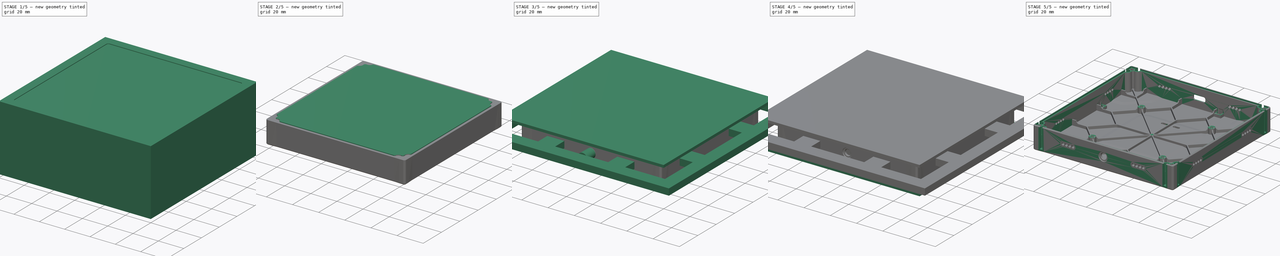
[diagram: build sequence overview — one tinted view per stage of 5, left to right]
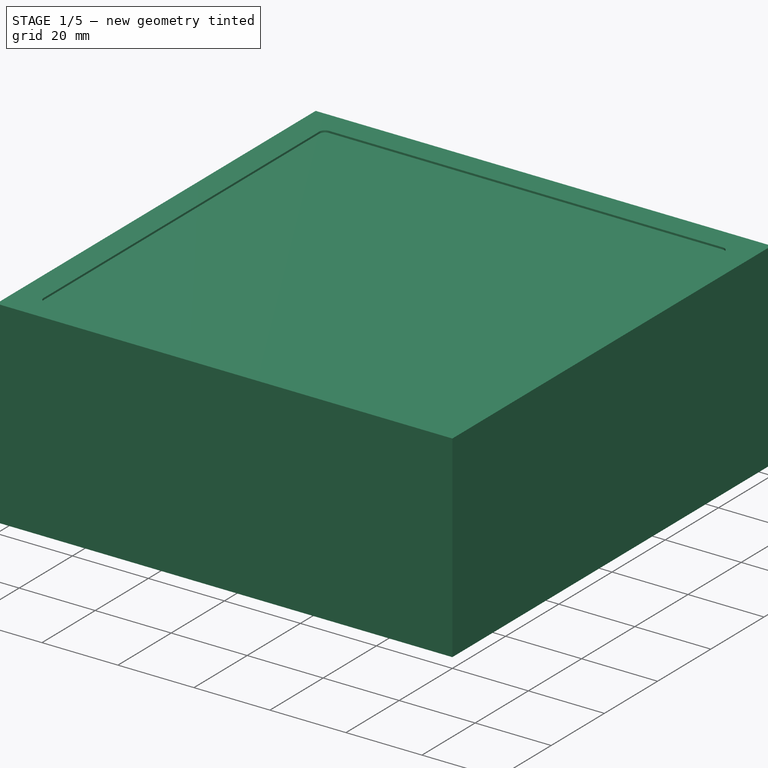
[diagram: stage 1 of 5 — iso view after this stage's code; geometry added in this stage tinted green]
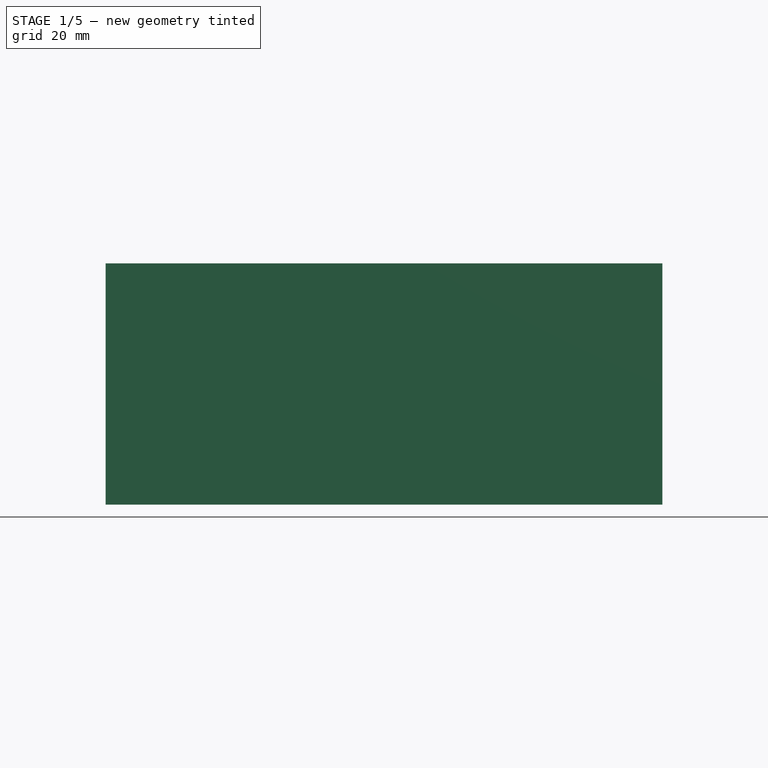
[diagram: stage 1 of 5 — front view after this stage's code; geometry added in this stage tinted green]
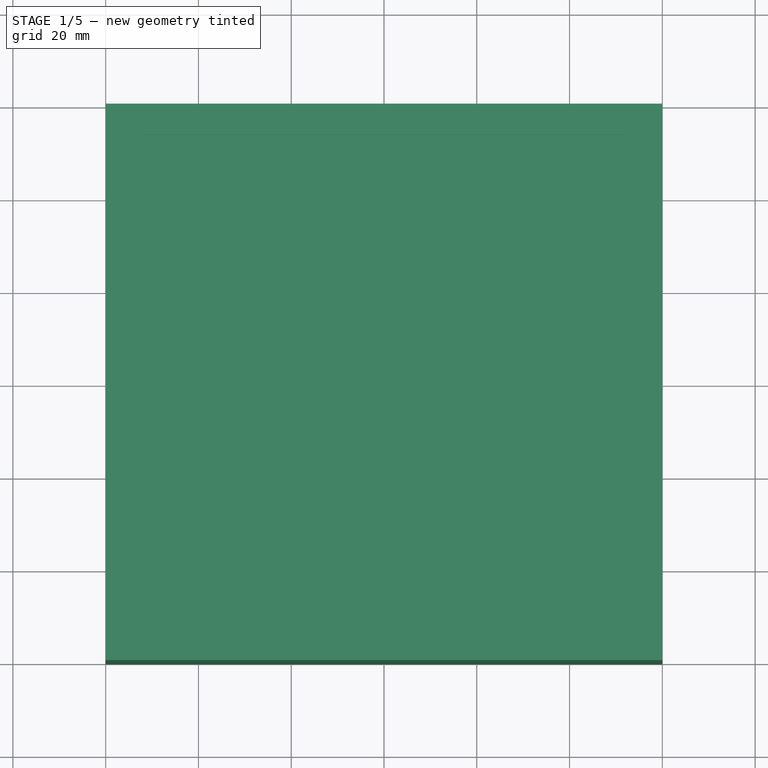
[diagram: stage 1 of 5 — top view after this stage's code; geometry added in this stage tinted green]
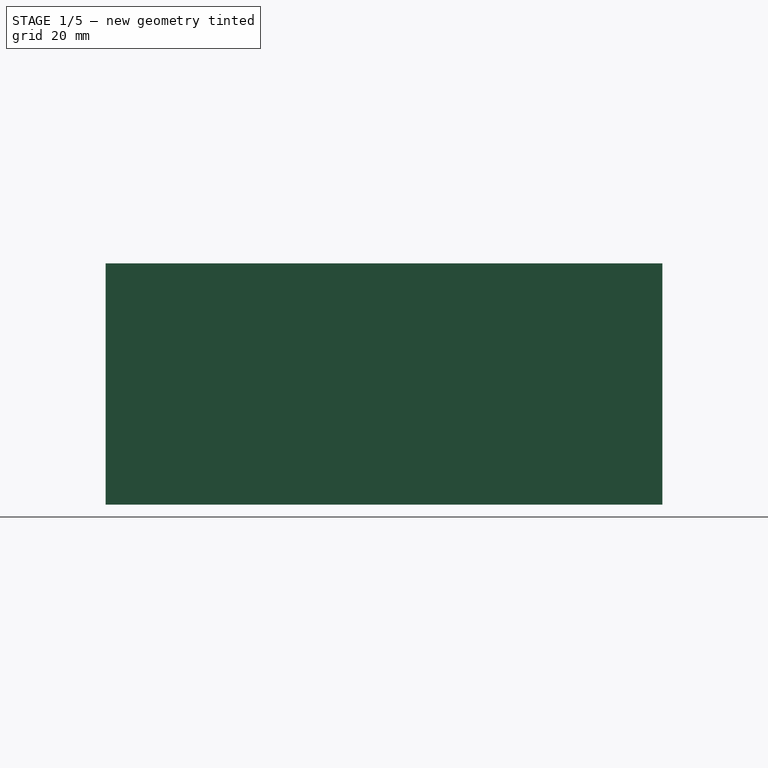
[diagram: stage 1 of 5 — right view after this stage's code; geometry added in this stage tinted green]
FCSTD DOCUMENT  (FreeCAD 1.0R39319 (Git))
Label: PLASTIC-CANVAS
License: All rights reserved
LicenseURL: http://en.wikipedia.org/wiki/All_rights_reserved
objects: Sketcher::SketchObject×44, PartDesign::Pad×25, PartDesign::Line×13, PartDesign::Body×12, PartDesign::Boolean×11, PartDesign::Pocket×10, PartDesign::PolarPattern×7, PartDesign::Plane×7, PartDesign::Chamfer×5, PartDesign::Revolution×3, PartDesign::CoordinateSystem×3, Spreadsheet::Sheet×2, PartDesign::SubtractiveLoft×2, PartDesign::AdditiveLoft×1, PartDesign::Mirrored×1, PartDesign::MultiTransform×1, PartDesign::Fillet×1
note: 304 computed .brp shape members not serialized (recipe doc carries the construction recipe); baked Part::Feature solids carry a one-line shape summary decoded from their .brp

FEATURE [Spreadsheet::Sheet] Spreadsheet  label="Generic"
  cells = A1='Dimension; B1(dimension)==106.6 mm; A2='Corner Radius; B2(cornerRadius)=2; C2='(mm); A3='Screw Diameter; B3(screwDiameter)=2.2; C3='(mm); A4='Screw Diameter Plastic; B4(screwDiameterPlastic)=2.8; C4='(mm); A5='Screw Distance; B5(screwDistance)=101; C5='(mm)
FEATURE [Spreadsheet::Sheet] Spreadsheet001  label="Unibody"
  cells = A1='Height; B1(height)=15; C1='(mm); A5='Rib Length; B5(ribLength)=5; A6='Rib Width; B6(ribWidth)=1.5; A7='Rib Height; B7(ribHeight)=2.8; A8='Rib Dist 1; B8(ribDist1)=19.05; A9='Rib Dist 2; B9(ribDist2)=34.29; C9==1.35 in; A12='PCB Dimensions; B12(pcbDimensions)=100; A13='PCB Thickness; B13(pcbThickness)=1.6; A16='Feet Diameter; B16(feetDiameter)=10; A17='Feet Distance; B17(feetDistance)=85; A18='Feet Depth; B18(feetDepth)=0.5; A19='Feet Thickness; B19(feetThickness)=1
FEATURE [Sketcher::SketchObject] Sketch008
  ArcFitTolerance = 0
  AttachmentOffset = pos=(0,0,1.5) rot=(0,0,1;0rad)
  FullyConstrained = true
  MakeInternals = false
  MapMode = 5
  Placement = pos=(0,0,1.5) rot=(0,0,1;0rad)
  sketch-geometry (9):
    g0: LineSegment StartX=-55 StartY=54.5 StartZ=0 EndX=-55 EndY=-54.5 EndZ=0
    g1: LineSegment StartX=-54.5 StartY=-55 StartZ=0 EndX=54.5 EndY=-55 EndZ=0
    g2: LineSegment StartX=55 StartY=-54.5 StartZ=0 EndX=55 EndY=54.5 EndZ=0
    g3: LineSegment StartX=54.5 StartY=55 StartZ=0 EndX=-54.5 EndY=55 EndZ=0
    g4: ArcOfCircle CenterX=-54.5 CenterY=54.5 CenterZ=0 NormalX=0 NormalY=0 NormalZ=1 AngleXU=0 Radius=0.5 StartAngle=1.5708 EndAngle=3.14159
    g5: ArcOfCircle CenterX=54.5 CenterY=54.5 CenterZ=0 NormalX=0 NormalY=0 NormalZ=1 AngleXU=0 Radius=0.5 StartAngle=-1.8e-15 EndAngle=1.5708
    g6: ArcOfCircle CenterX=54.5 CenterY=-54.5 CenterZ=0 NormalX=0 NormalY=0 NormalZ=1 AngleXU=0 Radius=0.5 StartAngle=4.71239 EndAngle=6.28319
    g7: ArcOfCircle CenterX=-54.5 CenterY=-54.5 CenterZ=0 NormalX=0 NormalY=0 NormalZ=1 AngleXU=0 Radius=0.5 StartAngle=3.14159 EndAngle=4.71239
    g8: Circle [constr] CenterX=0 CenterY=0 CenterZ=0 NormalX=0 NormalY=0 NormalZ=1 AngleXU=0 Radius=77.0746
  constraints (22):
    c: Equal(g0,g1)
    c: Equal(g0,g2)
    c: Equal(g0,g3)
    c: Horizontal(g3)
    c: Tangent(g0,g4) = -1.5708
    c: Tangent(g3,g4) = -1.5708
    c: Tangent(g3,g5) = -1.5708
    c: Tangent(g2,g5) = -1.5708
    c: Tangent(g2,g6) = -1.5708
    c: Tangent(g1,g6) = -1.5708
    c: Tangent(g1,g7) = -1.5708
    c: Tangent(g0,g7) = -1.5708
    c: Coincident(g8,g-1)
    c: PointOnObject(g4,g8)
    c: PointOnObject(g5,g8)
    c: PointOnObject(g6,g8)
    c: PointOnObject(g7,g8)
    c: Vertical(g0)
    c: Horizontal(g1)
    c: Vertical(g2)
    c: DistanceX(g0,g2) = 110
    c: DistanceX(g0,g4) = 0.5
FEATURE [PartDesign::Pad] Pad002  label="Base"
  AllowMultiFace = false
  Direction = (0,0,1)
  Length = 17
  Length2 = 100
  Placement = pos=(0,0,1.5) rot=(0,0,1;0rad)
  Profile = -> Sketch008
  Reversed = true
  Suppressed = false
  Type = 0
  expr: Length = <<Unibody>>.height + 0.5 + 1.5
FEATURE [Sketcher::SketchObject] Sketch001
  ArcFitTolerance = 0
  FullyConstrained = true
  MakeInternals = false
  MapMode = 5
  Placement = pos=(0,0,1.5) rot=(1,0,0;3.14159rad)
  sketch-geometry (7):
    g0: LineSegment StartX=-47.95 StartY=60 StartZ=0 EndX=-46.05 EndY=60 EndZ=0
    g1: LineSegment StartX=-47.95 StartY=60 StartZ=0 EndX=-47.95 EndY=52.9738 EndZ=0
    g2: LineSegment StartX=-46.05 StartY=60 StartZ=0 EndX=-46.05 EndY=52.9738 EndZ=0
    g3: ArcOfCircle CenterX=-48.2 CenterY=52.9738 CenterZ=0 NormalX=0 NormalY=0 NormalZ=1 AngleXU=0 Radius=0.25 StartAngle=5.46797 EndAngle=6.28319
    g4: ArcOfCircle CenterX=-45.8 CenterY=52.9738 CenterZ=0 NormalX=0 NormalY=0 NormalZ=1 AngleXU=0 Radius=0.25 StartAngle=3.14159 EndAngle=3.9568
    g5: LineSegment [constr] StartX=-48.2 StartY=52.9738 StartZ=0 EndX=-45.8 EndY=52.9738 EndZ=0
    g6: ArcOfCircle CenterX=-47 CenterY=51.7 CenterZ=0 NormalX=0 NormalY=0 NormalZ=1 AngleXU=0 Radius=1.5 StartAngle=2.32638 EndAngle=7.0984
  constraints (19):
    c: Coincident(g1,g0)
    c: Coincident(g2,g0)
    c: Equal(g2,g1)
    c: Angle(g1,g0) = 1.5708
    c: Tangent(g1,g3) = 1.5708
    c: Tangent(g2,g4) = -1.5708
    c: Coincident(g5,g3)
    c: Coincident(g5,g4)
    c: Horizontal(g5)
    c: Radius(g3) = 0.25
    c: DistanceX(g1,g2) = 1.9
    c: DistanceX(g6,g-1) = 47
    c: Vertical(g1)
    c: Tangent(g4,g6) = 1.5708
    c: Equal(g4,g3)
    c: DistanceY(g-1,g6) = 51.7
    c: Diameter(g6) = 3
    c: DistanceY(g-1,g0) = 60
    c: Tangent(g3,g6) = 1.5708
FEATURE [Sketcher::SketchObject] Sketch366
  ArcFitTolerance = 0
  FullyConstrained = true
  MakeInternals = false
  MapMode = 5
  Placement = pos=(0,0,0) rot=(1,0,0;3.14159rad)
  sketch-geometry (5):
    g0: LineSegment StartX=-17.78 StartY=17.78 StartZ=0 EndX=-17.78 EndY=-17.78 EndZ=0
    g1: LineSegment StartX=-17.78 StartY=-17.78 StartZ=0 EndX=17.78 EndY=-17.78 EndZ=0
    g2: LineSegment StartX=17.78 StartY=-17.78 StartZ=0 EndX=17.78 EndY=17.78 EndZ=0
    g3: LineSegment StartX=17.78 StartY=17.78 StartZ=0 EndX=-17.78 EndY=17.78 EndZ=0
    g4: Circle [constr] CenterX=0 CenterY=0 CenterZ=0 NormalX=0 NormalY=0 NormalZ=1 AngleXU=0 Radius=25.1447
  constraints (14):
    c: Coincident(g0,g1)
    c: Coincident(g1,g2)
    c: Coincident(g2,g3)
    c: Coincident(g3,g0)
    c: Equal(g0,g1)
    c: Equal(g0,g2)
    c: Equal(g0,g3)
    c: PointOnObject(g0,g4)
    c: PointOnObject(g1,g4)
    c: PointOnObject(g2,g4)
    c: PointOnObject(g3,g4)
    c: Coincident(g4,g-1)
    c: Horizontal(g3)
    c: DistanceX(g3,g3) = 35.56
FEATURE [PartDesign::Pad] Pad334
  AllowMultiFace = false
  Direction = (0,-1e-16,-1)
  Length = 10
  Length2 = 100
  Placement = pos=(0,0,0) rot=(1,0,0;3.14159rad)
  Profile = -> Sketch366
  ReferenceAxis = -> Sketch366 [N_Axis]
  Refine = true
  Suppressed = false
  Type = 0
FEATURE [Sketcher::SketchObject] Sketch352
  ArcFitTolerance = 0
  AttachmentOffset = pos=(0,0,52.5) rot=(0,0,1;0rad)
  FullyConstrained = true
  MakeInternals = false
  MapMode = 5
  Placement = pos=(0,-52.5,-5.432e-12) rot=(1,0,0;1.5708rad)
  expr: Constraints[1] = 6.38
  sketch-geometry (1):
    g0: Circle CenterX=0 CenterY=-6.38 CenterZ=0 NormalX=0 NormalY=0 NormalZ=1 AngleXU=0 Radius=2.2
  constraints (3):
    c: PointOnObject(g0,g-2)
    c: DistanceY(g0,g-1) = 6.38
    c: Radius(g0) = 2.2
FEATURE [Sketcher::SketchObject] Sketch353
  ArcFitTolerance = 0
  AttachmentOffset = pos=(0,0,52.5) rot=(0,0,1;0rad)
  FullyConstrained = false
  MakeInternals = false
  MapMode = 5
  Placement = pos=(0,-52.5,-5.432e-12) rot=(1,0,0;1.5708rad)
  sketch-geometry (1):
    g0: Circle CenterX=0 CenterY=-6.38 CenterZ=0 NormalX=0 NormalY=0 NormalZ=1 AngleXU=0 Radius=3.5
  constraints (1):
    c: Radius(g0) = 3.5
FEATURE [Sketcher::SketchObject] Sketch375
  ArcFitTolerance = 0
  AttachmentOffset = pos=(0,0,16.18) rot=(0,0,1;0rad)
  FullyConstrained = true
  MakeInternals = false
  MapMode = 5
  Placement = pos=(16.18,0,0) rot=(0.57735,0.57735,0.57735;2.0944rad)
  sketch-geometry (8):
    g0: LineSegment StartX=0 StartY=0 StartZ=0 EndX=10 EndY=0 EndZ=0
    g1: LineSegment StartX=10 StartY=0 StartZ=0 EndX=10 EndY=-10.5 EndZ=0
    g2: LineSegment StartX=50 StartY=-11 StartZ=0 EndX=0 EndY=-11 EndZ=0
    g3: LineSegment StartX=0 StartY=-11 StartZ=0 EndX=0 EndY=0 EndZ=0
    g4: LineSegment StartX=50 StartY=-11 StartZ=0 EndX=50 EndY=-12 EndZ=0
    g5: LineSegment StartX=50 StartY=-12 StartZ=0 EndX=51 EndY=-12 EndZ=0
    g6: LineSegment StartX=51 StartY=-12 StartZ=0 EndX=51 EndY=-10.5 EndZ=0
    g7: LineSegment StartX=51 StartY=-10.5 StartZ=0 EndX=10 EndY=-10.5 EndZ=0
  constraints (23):
    c: Coincident(g-1,g0)
    c: PointOnObject(g0,g-1)
    c: Coincident(g0,g1)
    c: Vertical(g1)
    c: PointOnObject(g2,g-2)
    c: Horizontal(g2)
    c: Coincident(g2,g3)
    c: Coincident(g3,g0)
    c: DistanceX(g0,g0) = 10
    c: DistanceY(g3,g3) = 11
    c: DistanceX(g2,g2) = 50
    c: Coincident(g4,g2)
    c: Vertical(g4)
    c: Coincident(g5,g4)
    c: Horizontal(g5)
    c: Coincident(g6,g5)
    c: Vertical(g6)
    c: Coincident(g7,g6)
    c: Horizontal(g7)
    c: Equal(g4,g5)
    c: DistanceX(g5,g5) = 1
    c: DistanceY(g2,g6) = 0.5
    c: Coincident(g7,g1)
FEATURE [PartDesign::Pad] Pad343  label="Support"
  AllowMultiFace = false
  BaseFeature = -> Pad334
  Direction = (1,1e-16,-1e-16)
  Length = 2
  Length2 = 100
  Midplane = true
  Placement = pos=(0,0,0) rot=(1,0,0;3.14159rad)
  Profile = -> Sketch375
  Refine = true
  Reversed = true
  Suppressed = false
  Type = 0
FEATURE [PartDesign::Body] Body108  label="feature_alignment_bevel_B"
  AllowCompound = false
  Group = -> [Sketch454,Sketch455,AdditiveLoft002]
  Origin = -> Origin126
  Tip = -> AdditiveLoft002
FEATURE [Sketcher::SketchObject] Sketch459
  ArcFitTolerance = 0
  AttachmentOffset = pos=(0,0,-50) rot=(0,0,1;0rad)
  FullyConstrained = true
  MakeInternals = false
  MapMode = 5
  Placement = pos=(0,0,-50) rot=(0,0,1;0rad)
  sketch-geometry (5):
    g0: LineSegment StartX=-60 StartY=60 StartZ=0 EndX=-60 EndY=-60 EndZ=0
    g1: LineSegment StartX=-60 StartY=-60 StartZ=0 EndX=60 EndY=-60 EndZ=0
    g2: LineSegment StartX=60 StartY=-60 StartZ=0 EndX=60 EndY=60 EndZ=0
    g3: LineSegment StartX=60 StartY=60 StartZ=0 EndX=-60 EndY=60 EndZ=0
    g4: Circle [constr] CenterX=0 CenterY=0 CenterZ=0 NormalX=0 NormalY=0 NormalZ=1 AngleXU=0 Radius=84.8528
  constraints (14):
    c: Coincident(g0,g1)
    c: Coincident(g1,g2)
    c: Coincident(g2,g3)
    c: Coincident(g3,g0)
    c: Equal(g0,g1)
    c: Equal(g0,g2)
    c: Equal(g0,g3)
    c: PointOnObject(g0,g4)
    c: PointOnObject(g1,g4)
    c: PointOnObject(g2,g4)
    c: PointOnObject(g3,g4)
    c: Coincident(g4,g-1)
    c: Horizontal(g3)
    c: DistanceX(g3,g3) = 120
FEATURE [PartDesign::Pad] Pad382
  AllowMultiFace = false
  Direction = (0,0,1)
  Length = 52
  Length2 = 100
  Placement = pos=(0,0,-50) rot=(0,0,1;0rad)
  Profile = -> Sketch459
  Refine = true
  Suppressed = false
  Type = 0
FEATURE [Sketcher::SketchObject] Sketch480
  ArcFitTolerance = 0
  AttachmentOffset = pos=(0,0,15.5) rot=(0,0,1;0rad)
  FullyConstrained = true
  MakeInternals = false
  MapMode = 5
  Placement = pos=(0,0,-15.5) rot=(0,1,0;3.14159rad)
  sketch-geometry (15):
    g0: LineSegment [constr] StartX=-18.18 StartY=51.7 StartZ=0 EndX=-14.18 EndY=51.7 EndZ=0
    g1: LineSegment [constr] StartX=-14.18 StartY=51.7 StartZ=0 EndX=-14.18 EndY=50 EndZ=0
    g2: LineSegment [constr] StartX=-14.18 StartY=50 StartZ=0 EndX=-18.18 EndY=50 EndZ=0
    g3: LineSegment [constr] StartX=-18.18 StartY=50 StartZ=0 EndX=-18.18 EndY=51.7 EndZ=0
    g4: LineSegment [constr] StartX=-18.18 StartY=50 StartZ=0 EndX=-16.18 EndY=0 EndZ=0
    g5: LineSegment [constr] StartX=-16.18 StartY=0 StartZ=0 EndX=-14.18 EndY=50 EndZ=0
    g6: LineSegment StartX=-18.18 StartY=51.25 StartZ=0 EndX=-17.73 EndY=51.7 EndZ=0
    g7: LineSegment StartX=-17.73 StartY=51.7 StartZ=0 EndX=-14.63 EndY=51.7 EndZ=0
    g8: LineSegment StartX=-14.63 StartY=51.7 StartZ=0 EndX=-14.18 EndY=51.25 EndZ=0
    g9: LineSegment StartX=-18.18 StartY=51.25 StartZ=0 EndX=-18.18 EndY=50.45 EndZ=0
    g10: LineSegment StartX=-18.18 StartY=50.45 StartZ=0 EndX=-17.73 EndY=50 EndZ=0
    g11: LineSegment StartX=-17.73 StartY=50 StartZ=0 EndX=-14.63 EndY=50 EndZ=0
    g12: LineSegment StartX=-14.63 StartY=50 StartZ=0 EndX=-14.18 EndY=50.45 EndZ=0
    g13: LineSegment StartX=-14.18 StartY=50.45 StartZ=0 EndX=-14.18 EndY=51.25 EndZ=0
    g14: LineSegment [constr] StartX=-18.18 StartY=50.45 StartZ=0 EndX=-14.18 EndY=50.45 EndZ=0
  constraints (43):
    c: Coincident(g0,g1)
    c: Coincident(g1,g2)
    c: Coincident(g2,g3)
    c: Coincident(g3,g0)
    c: Horizontal(g0)
    c: Horizontal(g2)
    c: Vertical(g1)
    c: Vertical(g3)
    c: DistanceY(g1,g1) = 1.7
    c: DistanceX(g0,g0) = 4
    c: Coincident(g2,g4)
    c: Coincident(g4,g5)
    c: Coincident(g5,g1)
    c: PointOnObject(g4,g-1)
    c: DistanceX(g4,g-1) = 16.18
    c: Equal(g4,g5)
    c: DistanceY(g4,g0) = 51.7
    c: PointOnObject(g6,g3)
    c: PointOnObject(g6,g0)
    c: Coincident(g6,g7)
    c: PointOnObject(g7,g0)
    c: Coincident(g7,g8)
    c: PointOnObject(g8,g1)
    c: Equal(g8,g6)
    c: Angle(g6,g0) = 2.35619
    c: DistanceX(g7,g7) = 3.1
    c: Coincident(g6,g9)
    c: Coincident(g9,g10)
    c: PointOnObject(g10,g2)
    c: Coincident(g10,g11)
    c: Coincident(g11,g12)
    c: PointOnObject(g12,g1)
    c: Coincident(g12,g13)
    c: Coincident(g13,g8)
    c: PointOnObject(g11,g2)
    c: PointOnObject(g9,g3)
    c: Equal(g13,g9)
    c: Equal(g10,g12)
    c: Coincident(g14,g9)
    c: Coincident(g14,g12)
    c: Horizontal(g14)
    c: Angle(g11,g10) = 2.35619
    c: DistanceX(g11,g11) = 3.1
FEATURE [PartDesign::Pad] Pad388  label="Undercut"
  BaseFeature = -> Pad343
  Direction = (1e-16,0,-1)
  Length = 6.4
  Length2 = 10
  Placement = pos=(0,0,0) rot=(1,0,0;3.14159rad)
  Profile = -> Sketch480
  ReferenceAxis = -> Sketch480 [N_Axis]
  Reversed = true
  Suppressed = false
  TaperAngle = -1
  Type = 0
FEATURE [Sketcher::SketchObject] Sketch481
  ArcFitTolerance = 0
  AttachmentOffset = pos=(0,0,-13.25) rot=(0,0,1;0rad)
  FullyConstrained = true
  MakeInternals = false
  MapMode = 5
  Placement = pos=(0,0,-13.25) rot=(0,0,1;0rad)
  sketch-geometry (6):
    g0: LineSegment StartX=14.58 StartY=48.6 StartZ=0 EndX=17.78 EndY=48.6 EndZ=0
    g1: LineSegment StartX=17.78 StartY=48.6 StartZ=0 EndX=17.78 EndY=50.5 EndZ=0
    g2: LineSegment StartX=17.78 StartY=50.5 StartZ=0 EndX=14.58 EndY=50.5 EndZ=0
    g3: LineSegment StartX=14.58 StartY=50.5 StartZ=0 EndX=14.58 EndY=48.6 EndZ=0
    g4: LineSegment [constr] StartX=14.58 StartY=48.6 StartZ=0 EndX=16.18 EndY=0 EndZ=0
    g5: LineSegment [constr] StartX=16.18 StartY=0 StartZ=0 EndX=17.78 EndY=48.6 EndZ=0
  constraints (17):
    c: Coincident(g0,g1)
    c: Coincident(g1,g2)
    c: Coincident(g2,g3)
    c: Coincident(g3,g0)
    c: Horizontal(g0)
    c: Horizontal(g2)
    c: Vertical(g1)
    c: Vertical(g3)
    c: DistanceX(g0,g0) = 3.2
    c: Coincident(g0,g4)
    c: PointOnObject(g4,g-1)
    c: Coincident(g4,g5)
    c: Coincident(g5,g0)
    c: DistanceX(g-1,g4) = 16.18
    c: Equal(g4,g5)
    c: DistanceY(g3,g3) = 1.9
    c: DistanceY(g-1,g0) = 48.6
FEATURE [PartDesign::Pad] Pad389
  BaseFeature = -> Pad388
  Direction = (0,0,1)
  Length = 3.2
  Length2 = 10
  Placement = pos=(0,0,0) rot=(1,0,0;3.14159rad)
  Profile = -> Sketch481
  ReferenceAxis = -> Sketch481 [N_Axis]
  Suppressed = false
  TaperAngle = 1
  Type = 0
FEATURE [PartDesign::Body] Body  label="feature_magent_hole_injection"
  AllowCompound = false
  Group = -> [Sketch364,Pad330,Sketch001,Pad001,Sketch465,Sketch466,Revolution,Pad395,MultiTransform,Mirrored,PolarPattern]
  Origin = -> Origin
  Tip = -> MultiTransform
FEATURE [Sketcher::SketchObject] Sketch482
  ArcFitTolerance = 0
  AttachmentOffset = pos=(0,0,-13.25) rot=(0,0,1;0rad)
  FullyConstrained = true
  MakeInternals = false
  MapMode = 5
  Placement = pos=(0,0,-13.25) rot=(0,0,1;0rad)
  sketch-geometry (6):
    g0: LineSegment StartX=15.58 StartY=49.4 StartZ=0 EndX=16.78 EndY=49.4 EndZ=0
    g1: LineSegment StartX=16.78 StartY=49.4 StartZ=0 EndX=17.78 EndY=50.4 EndZ=0
    g2: LineSegment StartX=17.78 StartY=50.4 StartZ=0 EndX=14.58 EndY=50.4 EndZ=0
    g3: LineSegment StartX=14.58 StartY=50.4 StartZ=0 EndX=15.58 EndY=49.4 EndZ=0
    g4: LineSegment [constr] StartX=15.58 StartY=49.4 StartZ=0 EndX=16.18 EndY=0 EndZ=0
    g5: LineSegment [constr] StartX=16.18 StartY=0 StartZ=0 EndX=16.78 EndY=49.4 EndZ=0
  constraints (17):
    c: Coincident(g0,g1)
    c: Coincident(g1,g2)
    c: Coincident(g2,g3)
    c: Coincident(g3,g0)
    c: Horizontal(g0)
    c: Horizontal(g2)
    c: DistanceX(g0,g0) = 1.2
    c: Coincident(g0,g4)
    c: PointOnObject(g4,g-1)
    c: Coincident(g4,g5)
    c: Coincident(g5,g0)
    c: DistanceX(g-1,g4) = 16.18
    c: Equal(g4,g5)
    c: DistanceY(g3,g3) = 1
    c: DistanceY(g-1,g0) = 49.4
    c: Equal(g1,g3)
    c: Perpendicular(g1,g3)
FEATURE [PartDesign::Pad] Pad396  label="Clip"
  BaseFeature = -> Pad389
  Direction = (0,0,1)
  Length = 1
  Length2 = 10
  Placement = pos=(0,0,0) rot=(1,0,0;3.14159rad)
  Profile = -> Sketch482
  ReferenceAxis = -> Sketch482 [N_Axis]
  Reversed = true
  Suppressed = false
  TaperAngle = -1
  Type = 0
FEATURE [Sketcher::SketchObject] Sketch483
  ArcFitTolerance = 0
  AttachmentOffset = pos=(0,0,16.18) rot=(0,0,1;0rad)
  FullyConstrained = true
  MakeInternals = false
  MapMode = 5
  Placement = pos=(16.18,0,0) rot=(0.57735,0.57735,0.57735;2.0944rad)
  sketch-geometry (5):
    g0: LineSegment StartX=43.05 StartY=-1 StartZ=0 EndX=52.3 EndY=-10.25 EndZ=0
    g1: LineSegment StartX=52.3 StartY=-10.25 StartZ=0 EndX=53.3 EndY=-10.25 EndZ=0
    g2: LineSegment StartX=53.3 StartY=-10.25 StartZ=0 EndX=53.3 EndY=0 EndZ=0
    g3: LineSegment StartX=53.3 StartY=0 StartZ=0 EndX=43.05 EndY=0 EndZ=0
    g4: LineSegment StartX=43.05 StartY=0 StartZ=0 EndX=43.05 EndY=-1 EndZ=0
  constraints (15):
    c: Coincident(g0,g1)
    c: Horizontal(g1)
    c: Coincident(g1,g2)
    c: Vertical(g2)
    c: Coincident(g2,g3)
    c: Horizontal(g3)
    c: Coincident(g3,g4)
    c: Coincident(g4,g0)
    c: Vertical(g4)
    c: Angle(g-1,g0) = 2.35619
    c: Equal(g1,g4)
    c: PointOnObject(g2,g-1)
    c: DistanceY(g4,g4) = 1
    c: DistanceX(g-1,g0) = 52.3
    c: DistanceY(g0,g-1) = 10.25
FEATURE [PartDesign::Pocket] Pocket031
  BaseFeature = -> Pad396
  Direction = (-1,-1e-16,1e-16)
  Length = 5
  Length2 = 5
  Midplane = true
  Placement = pos=(0,0,0) rot=(1,0,0;3.14159rad)
  Profile = -> Sketch483
  ReferenceAxis = -> Sketch483 [N_Axis]
  Suppressed = false
  Type = 1
FEATURE [PartDesign::Body] Body095  label="feature_subtract_cavity"
  AllowCompound = false
  Group = -> [Sketch414,Pad,Sketch415,Pocket021,Sketch417,Pocket023,Sketch,Pocket024,Sketch463,Pocket028,Sketch475,Pocket030,Sketch488,Pocket034,PolarPattern091,Sketch492,Pad401,Sketch497,Fillet,Chamfer051,Pocket,PolarPattern095]
  Origin = -> Origin112
  Tip = -> PolarPattern095
FEATURE [Sketcher::SketchObject] Sketch499
  ArcFitTolerance = 0
  AttachmentOffset = pos=(0,0,-13.25) rot=(0,0,1;0rad)
  FullyConstrained = true
  MakeInternals = false
  MapMode = 5
  Placement = pos=(0,0,-13.25) rot=(0,0,1;0rad)
  sketch-geometry (34):
    g0: LineSegment [constr] StartX=14.58 StartY=48.6 StartZ=0 EndX=17.78 EndY=48.6 EndZ=0
    g1: LineSegment [constr] StartX=17.78 StartY=48.6 StartZ=0 EndX=17.78 EndY=50.5 EndZ=0
    g2: LineSegment [constr] StartX=17.78 StartY=50.5 StartZ=0 EndX=14.58 EndY=50.5 EndZ=0
    g3: LineSegment [constr] StartX=14.58 StartY=50.5 StartZ=0 EndX=14.58 EndY=48.6 EndZ=0
    g4: LineSegment [constr] StartX=14.58 StartY=48.6 StartZ=0 EndX=16.18 EndY=0 EndZ=0
    g5: LineSegment [constr] StartX=16.18 StartY=0 StartZ=0 EndX=17.78 EndY=48.6 EndZ=0
    g6: LineSegment [constr] StartX=14.8 StartY=49.77 StartZ=0 EndX=17.56 EndY=49.77 EndZ=0
    g7: LineSegment [constr] StartX=17.56 StartY=49.77 StartZ=0 EndX=17.18 EndY=48.82 EndZ=0
    g8: LineSegment [constr] StartX=17.18 StartY=48.82 StartZ=0 EndX=15.18 EndY=48.82 EndZ=0
    g9: LineSegment [constr] StartX=15.18 StartY=48.82 StartZ=0 EndX=14.8 EndY=49.77 EndZ=0
    g10: LineSegment [constr] StartX=14.8 StartY=49.77 StartZ=0 EndX=14.58 EndY=49.77 EndZ=0
    g11: LineSegment [constr] StartX=15.18 StartY=48.82 StartZ=0 EndX=15.18 EndY=48.6 EndZ=0
    g12: LineSegment [constr] StartX=17.18 StartY=48.82 StartZ=0 EndX=17.18 EndY=48.6 EndZ=0
    g13: LineSegment [constr] StartX=17.56 StartY=49.77 StartZ=0 EndX=17.78 EndY=49.77 EndZ=0
    g14: LineSegment StartX=14.915 StartY=48.52 StartZ=0 EndX=15.445 EndY=48.52 EndZ=0
    g15: LineSegment StartX=16.915 StartY=48.52 StartZ=0 EndX=17.445 EndY=48.52 EndZ=0
    g16: LineSegment StartX=17.86 StartY=49.505 StartZ=0 EndX=17.86 EndY=50.035 EndZ=0
    g17: LineSegment StartX=14.5 StartY=50.035 StartZ=0 EndX=14.5 EndY=49.505 EndZ=0
    g18: LineSegment StartX=14.5 StartY=50.035 StartZ=0 EndX=14.8 EndY=49.895 EndZ=0
    g19: LineSegment StartX=14.8 StartY=49.895 StartZ=0 EndX=14.8 EndY=49.645 EndZ=0
    g20: LineSegment StartX=14.8 StartY=49.645 StartZ=0 EndX=14.5 EndY=49.505 EndZ=0
    g21: LineSegment [constr] StartX=14.58 StartY=49.77 StartZ=0 EndX=14.5 EndY=49.77 EndZ=0
    g22: LineSegment [constr] StartX=15.18 StartY=48.6 StartZ=0 EndX=15.18 EndY=48.52 EndZ=0
    g23: LineSegment StartX=17.86 StartY=49.505 StartZ=0 EndX=17.56 EndY=49.645 EndZ=0
    g24: LineSegment StartX=17.56 StartY=49.645 StartZ=0 EndX=17.56 EndY=49.895 EndZ=0
    g25: LineSegment StartX=17.56 StartY=49.895 StartZ=0 EndX=17.86 EndY=50.035 EndZ=0
    g26: LineSegment [constr] StartX=17.78 StartY=49.77 StartZ=0 EndX=17.86 EndY=49.77 EndZ=0
    g27: LineSegment [constr] StartX=17.18 StartY=48.6 StartZ=0 EndX=17.18 EndY=48.52 EndZ=0
    g28: LineSegment StartX=16.915 StartY=48.52 StartZ=0 EndX=17.055 EndY=48.82 EndZ=0
    g29: LineSegment StartX=17.055 StartY=48.82 StartZ=0 EndX=17.305 EndY=48.82 EndZ=0
    g30: LineSegment StartX=17.305 StartY=48.82 StartZ=0 EndX=17.445 EndY=48.52 EndZ=0
    g31: LineSegment StartX=15.445 StartY=48.52 StartZ=0 EndX=15.305 EndY=48.82 EndZ=0
    g32: LineSegment StartX=15.305 StartY=48.82 StartZ=0 EndX=15.055 EndY=48.82 EndZ=0
    g33: LineSegment StartX=15.055 StartY=48.82 StartZ=0 EndX=14.915 EndY=48.52 EndZ=0
  constraints (97):
    c: Coincident(g0,g1)
    c: Coincident(g1,g2)
    c: Coincident(g2,g3)
    c: Coincident(g3,g0)
    c: Horizontal(g0)
    c: Horizontal(g2)
    c: Vertical(g1)
    c: Vertical(g3)
    c: DistanceX(g0,g0) = 3.2
    c: Coincident(g0,g4)
    c: PointOnObject(g4,g-1)
    c: Coincident(g4,g5)
    c: Coincident(g5,g0)
    c: DistanceX(g-1,g4) = 16.18
    c: Equal(g4,g5)
    c: DistanceY(g3,g3) = 1.9
    c: DistanceY(g-1,g0) = 48.6
    c: Horizontal(g6)
    c: Coincident(g6,g7)
    c: Coincident(g7,g8)
    c: Horizontal(g8)
    c: Coincident(g8,g9)
    c: Coincident(g9,g6)
    c: Equal(g7,g9)
    c: Coincident(g10,g6)
    c: PointOnObject(g10,g3)
    c: Horizontal(g10)
    c: Coincident(g11,g8)
    c: PointOnObject(g11,g0)
    c: Vertical(g11)
    c: Coincident(g12,g7)
    c: PointOnObject(g12,g0)
    c: Vertical(g12)
    c: Coincident(g13,g6)
    c: PointOnObject(g13,g1)
    c: Horizontal(g13)
    c: Equal(g13,g10)
    c: DistanceY(g10,g2) = 0.73
    c: DistanceX(g10,g10) = 0.22
    c: Equal(g11,g10)
    c: DistanceX(g0,g11) = 0.6
    c: Horizontal(g14)
    c: Horizontal(g15)
    c: Vertical(g16)
    c: Vertical(g17)
    c: Equal(g16,g15)
    c: Equal(g15,g14)
    c: Equal(g14,g17)
    c: DistanceY(g14,g8) = 0.3
    c: Coincident(g17,g18)
    c: Coincident(g18,g19)
    c: Vertical(g19)
    c: Coincident(g19,g20)
    c: Coincident(g20,g17)
    c: PointOnObject(g6,g19)
    c: Equal(g18,g20)
    c: DistanceY(g19,g19) = 0.25
    c: Coincident(g21,g10)
    c: Symmetric(g17,g17,g21)
    c: Horizontal(g21)
    c: Coincident(g22,g11)
    c: Symmetric(g14,g14,g22)
    c: Equal(g22,g21)
    c: Coincident(g16,g23)
    c: Coincident(g23,g24)
    c: Vertical(g24)
    c: Coincident(g24,g25)
    c: Coincident(g25,g16)
    c: PointOnObject(g6,g24)
    c: Coincident(g26,g13)
    c: Symmetric(g16,g16,g26)
    c: Horizontal(g26)
    c: Equal(g26,g22)
    c: Equal(g25,g23)
    c: Equal(g24,g19)
    c: Coincident(g27,g12)
    c: Symmetric(g15,g15,g27)
    c: Vertical(g27)
    c: Coincident(g15,g28)
    c: Coincident(g28,g29)
    c: Horizontal(g29)
    c: Coincident(g29,g30)
    c: Coincident(g30,g15)
    c: PointOnObject(g7,g29)
    c: Equal(g28,g30)
    c: Equal(g29,g24)
    c: Equal(g27,g22)
    c: Coincident(g14,g31)
    c: Coincident(g31,g32)
    c: Horizontal(g32)
    c: Coincident(g32,g33)
    c: PointOnObject(g8,g32)
    c: Equal(g33,g31)
    c: Equal(g32,g29)
    c: Coincident(g33,g14)
    c: Vertical(g22)
    c: DistanceY(g17,g17) = 0.53
FEATURE [PartDesign::Pocket] Pocket036
  BaseFeature = -> Pocket031
  Direction = (0,0,-1)
  Length = 1.55
  Length2 = 5
  Placement = pos=(0,0,0) rot=(1,0,0;3.14159rad)
  Profile = -> Sketch499
  ReferenceAxis = -> Sketch499 [N_Axis]
  Reversed = true
  Suppressed = false
  Type = 0
  expr: Length = 1.19 + 0.56 - 0.2
FEATURE [PartDesign::PolarPattern] PolarPattern096
  Angle = 360
  Axis = -> Z_Axis093
  BaseFeature = -> Pocket036
  Mode = 0
  Occurrences = 4
  Offset = 120
  Originals = -> [Pad343,Pad388,Pad389,Pad396,Pocket031,Pocket036]
  Placement = pos=(0,0,0) rot=(1,0,0;3.14159rad)
  Refine = true
  Suppressed = false
  TransformMode = 0
FEATURE [PartDesign::SubtractiveLoft] SubtractiveLoft
  BaseFeature = -> Pad382
  Closed = false
  Placement = pos=(0,0,-50) rot=(0,0,1;0rad)
  Profile = -> Sketch460
  Refine = true
  Ruled = false
  Sections = -> [Sketch458]
  Suppressed = false
FEATURE [PartDesign::SubtractiveLoft] SubtractiveLoft001
  BaseFeature = -> SubtractiveLoft
  Closed = false
  Placement = pos=(0,0,-50) rot=(0,0,1;0rad)
  Profile = -> Sketch460
  Refine = true
  Ruled = false
  Sections = -> [Sketch462]
  Suppressed = false
FEATURE [PartDesign::Chamfer] Chamfer052
  Angle = 45
  Base = -> PolarPattern096 [Edge385,Edge269,Edge264,Edge396,Edge315,Edge310,Edge415,Edge426,Edge355,Edge223,Edge218,Edge366,Edge325,Edge177,Edge172,Edge336]
  BaseFeature = -> PolarPattern096
  ChamferType = 1
  FlipDirection = false
  Placement = pos=(0,0,0) rot=(1,0,0;3.14159rad)
  Refine = true
  Size = 0.22
  Size2 = 0.4
  SupportTransform = false
  Suppressed = false
  UseAllEdges = false
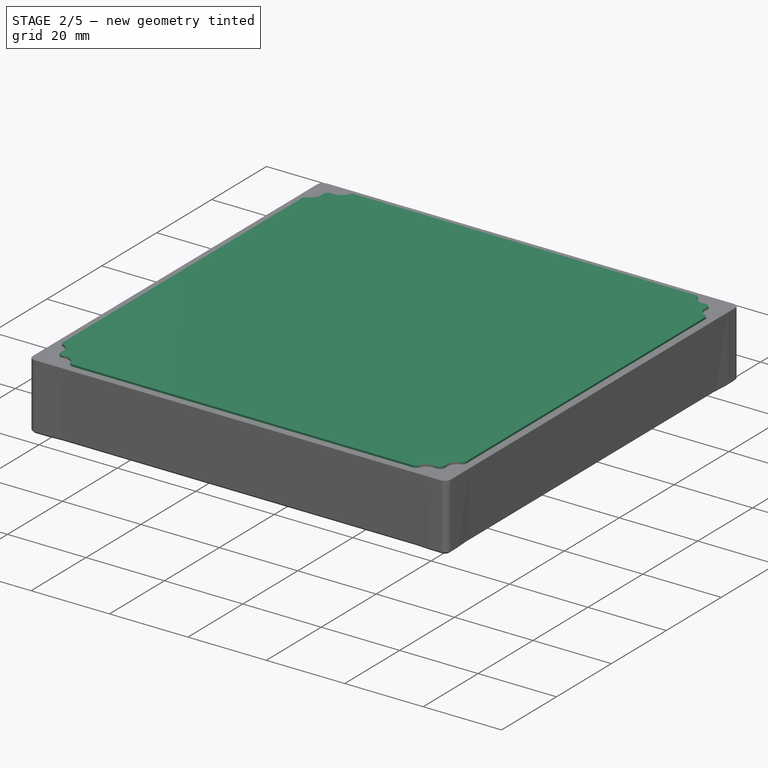
[diagram: stage 2 of 5 — iso view after this stage's code; geometry added in this stage tinted green]
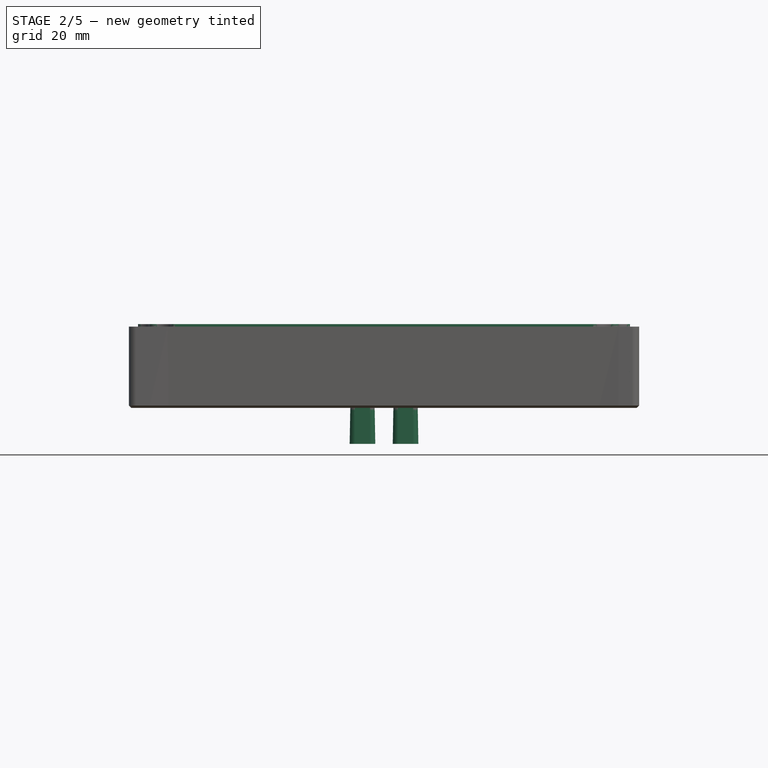
[diagram: stage 2 of 5 — front view after this stage's code; geometry added in this stage tinted green]
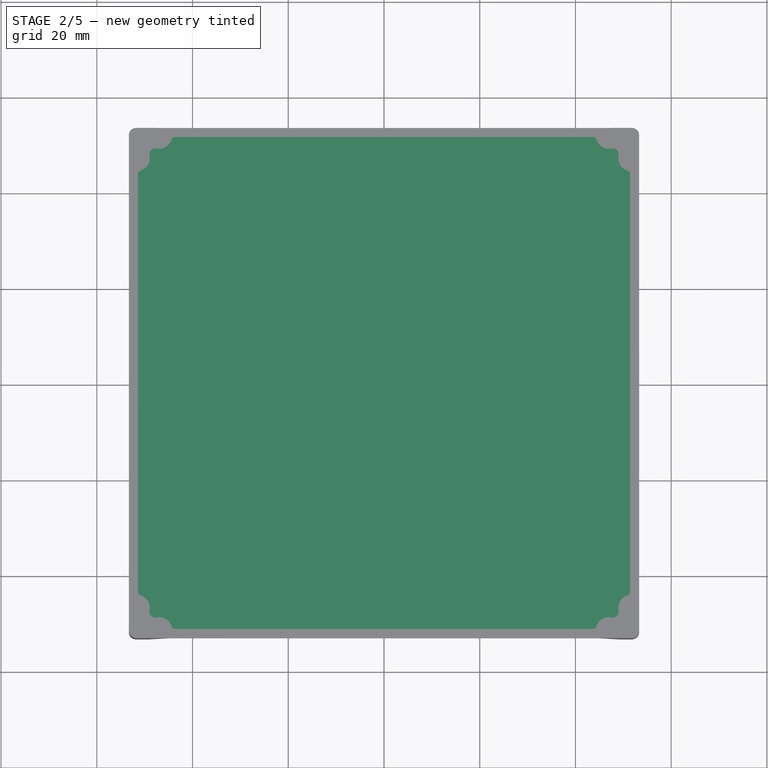
[diagram: stage 2 of 5 — top view after this stage's code; geometry added in this stage tinted green]
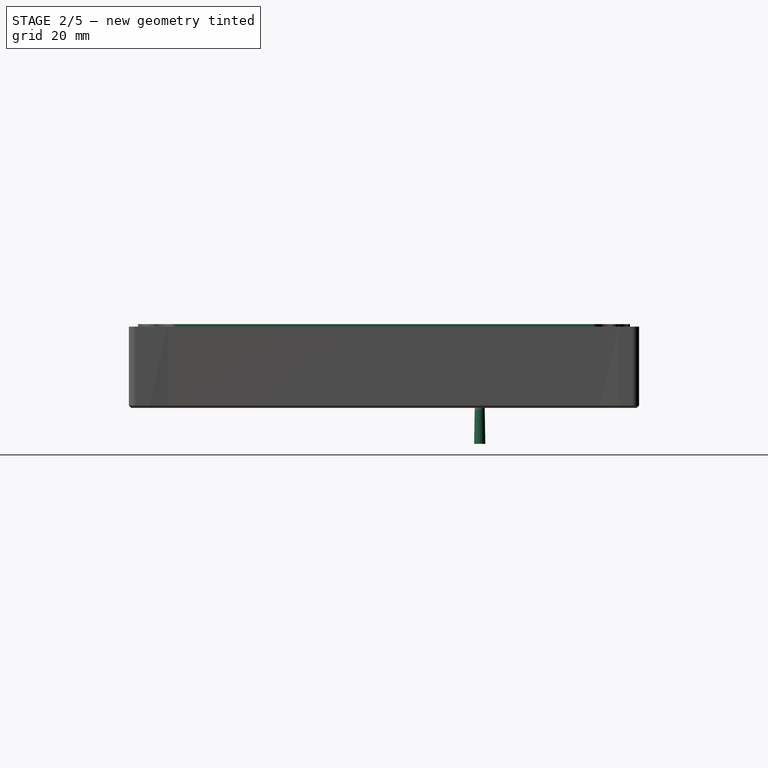
[diagram: stage 2 of 5 — right view after this stage's code; geometry added in this stage tinted green]
FEATURE [Sketcher::SketchObject] Sketch414
  ArcFitTolerance = 0
  AttachmentOffset = pos=(0,0,2) rot=(0,0,1;0rad)
  FullyConstrained = true
  MakeInternals = false
  MapMode = 5
  Placement = pos=(0,0,2) rot=(0,0,1;0rad)
  expr: Constraints[4] = 51.3 + 0.1
  sketch-geometry (50):
    g0: LineSegment [constr] StartX=0 StartY=0 StartZ=0 EndX=0 EndY=51.4 EndZ=0
    g1: LineSegment [constr] StartX=0 StartY=0 StartZ=0 EndX=-51.4 EndY=0 EndZ=0
    g2: LineSegment [constr] StartX=47 StartY=0 StartZ=0 EndX=47 EndY=51.7 EndZ=0
    g3: LineSegment [constr] StartX=0 StartY=51.7 StartZ=0 EndX=47 EndY=51.7 EndZ=0
    g4: LineSegment [constr] StartX=51.7 StartY=0 StartZ=0 EndX=51.7 EndY=47 EndZ=0
    g5: LineSegment [constr] StartX=0 StartY=47 StartZ=0 EndX=51.7 EndY=47 EndZ=0
    g6: Circle [constr] CenterX=47 CenterY=51.7 CenterZ=0 NormalX=0 NormalY=0 NormalZ=1 AngleXU=0 Radius=1.75
    g7: Circle [constr] CenterX=51.7 CenterY=47 CenterZ=0 NormalX=0 NormalY=0 NormalZ=1 AngleXU=0 Radius=1.75
    g8: LineSegment StartX=0 StartY=51.4 StartZ=0 EndX=43.6612 EndY=51.4 EndZ=0
    g9: ArcOfCircle CenterX=43.6612 CenterY=50.65 CenterZ=0 NormalX=0 NormalY=0 NormalZ=1 AngleXU=0 Radius=0.75 StartAngle=0.304693 EndAngle=1.5708
    g10: ArcOfCircle CenterX=47 CenterY=51.7 CenterZ=0 NormalX=0 NormalY=0 NormalZ=1 AngleXU=0 Radius=2.75 StartAngle=3.44629 EndAngle=4.90763
    g11: ArcOfCircle CenterX=47.776 CenterY=47.776 CenterZ=0 NormalX=0 NormalY=0 NormalZ=1 AngleXU=0 Radius=1.25 StartAngle=6.08795 EndAngle=8.04922
    g12: ArcOfCircle CenterX=51.7 CenterY=47 CenterZ=0 NormalX=0 NormalY=0 NormalZ=1 AngleXU=0 Radius=2.75 StartAngle=2.94636 EndAngle=4.4077
    g13: ArcOfCircle CenterX=50.65 CenterY=43.6612 CenterZ=0 NormalX=0 NormalY=0 NormalZ=1 AngleXU=0 Radius=0.75 StartAngle=-3.6e-15 EndAngle=1.2661
    g14: LineSegment StartX=51.4 StartY=43.6612 StartZ=0 EndX=51.4 EndY=0 EndZ=0
    g15: LineSegment [constr] StartX=0 StartY=0 StartZ=0 EndX=51.4 EndY=0 EndZ=0
    g16: LineSegment [constr] StartX=0 StartY=47 StartZ=0 EndX=-51.7 EndY=47 EndZ=0
    g17: LineSegment [constr] StartX=-51.7 StartY=47 StartZ=0 EndX=-51.7 EndY=0 EndZ=0
    g18: LineSegment [constr] StartX=-51.7 StartY=0 StartZ=0 EndX=-51.7 EndY=-47 EndZ=0
    g19: LineSegment [constr] StartX=-51.7 StartY=-47 StartZ=0 EndX=0 EndY=-47 EndZ=0
    g20: LineSegment [constr] StartX=0 StartY=-47 StartZ=0 EndX=51.7 EndY=-47 EndZ=0
    g21: LineSegment [constr] StartX=51.7 StartY=0 StartZ=0 EndX=51.7 EndY=-47 EndZ=0
    g22: LineSegment [constr] StartX=0 StartY=51.7 StartZ=0 EndX=-47 EndY=51.7 EndZ=0
    g23: LineSegment [constr] StartX=-47 StartY=51.7 StartZ=0 EndX=-47 EndY=0 EndZ=0
    g24: LineSegment [constr] StartX=-47 StartY=0 StartZ=0 EndX=-47 EndY=-51.7 EndZ=0
    g25: LineSegment [constr] StartX=-47 StartY=-51.7 StartZ=0 EndX=0 EndY=-51.7 EndZ=0
    g26: LineSegment [constr] StartX=0 StartY=-51.7 StartZ=0 EndX=47 EndY=-51.7 EndZ=0
    g27: LineSegment [constr] StartX=47 StartY=-51.7 StartZ=0 EndX=47 EndY=0 EndZ=0
    g28: LineSegment StartX=0 StartY=51.4 StartZ=0 EndX=-43.6612 EndY=51.4 EndZ=0
    g29: ArcOfCircle CenterX=-43.6612 CenterY=50.65 CenterZ=0 NormalX=0 NormalY=0 NormalZ=1 AngleXU=0 Radius=0.75 StartAngle=1.5708 EndAngle=2.8369
    g30: ArcOfCircle CenterX=-47 CenterY=51.7 CenterZ=0 NormalX=0 NormalY=0 NormalZ=1 AngleXU=0 Radius=2.75 StartAngle=4.51715 EndAngle=5.97849
    g31: ArcOfCircle CenterX=-47.776 CenterY=47.776 CenterZ=0 NormalX=0 NormalY=0 NormalZ=1 AngleXU=0 Radius=1.25 StartAngle=1.37556 EndAngle=3.33683
    g32: ArcOfCircle CenterX=-51.7 CenterY=47 CenterZ=0 NormalX=0 NormalY=0 NormalZ=1 AngleXU=0 Radius=2.75 StartAngle=5.01708 EndAngle=6.47842
    g33: ArcOfCircle CenterX=-50.65 CenterY=43.6612 CenterZ=0 NormalX=0 NormalY=0 NormalZ=1 AngleXU=0 Radius=0.75 StartAngle=1.87549 EndAngle=3.14159
    g34: LineSegment StartX=-51.4 StartY=43.6612 StartZ=0 EndX=-51.4 EndY=0 EndZ=0
    g35: LineSegment StartX=-51.4 StartY=0 StartZ=0 EndX=-51.4 EndY=-43.6612 EndZ=0
    g36: ArcOfCircle CenterX=-50.65 CenterY=-43.6612 CenterZ=0 NormalX=0 NormalY=0 NormalZ=1 AngleXU=0 Radius=0.75 StartAngle=3.14159 EndAngle=4.4077
    g37: ArcOfCircle CenterX=-51.7 CenterY=-47 CenterZ=0 NormalX=0 NormalY=0 NormalZ=1 AngleXU=0 Radius=2.75 StartAngle=6.08795 EndAngle=7.54929
    g38: ArcOfCircle CenterX=-47 CenterY=-51.7 CenterZ=0 NormalX=0 NormalY=0 NormalZ=1 AngleXU=0 Radius=2.75 StartAngle=0.304693 EndAngle=1.76603
    g39: ArcOfCircle CenterX=-43.6612 CenterY=-50.65 CenterZ=0 NormalX=0 NormalY=0 NormalZ=1 AngleXU=0 Radius=0.75 StartAngle=3.44629 EndAngle=4.71239
    g40: LineSegment StartX=-43.6612 StartY=-51.4 StartZ=0 EndX=0 EndY=-51.4 EndZ=0
    g41: LineSegment [constr] StartX=0 StartY=0 StartZ=0 EndX=0 EndY=-51.4 EndZ=0
    g42: ArcOfCircle CenterX=-47.776 CenterY=-47.776 CenterZ=0 NormalX=0 NormalY=0 NormalZ=1 AngleXU=0 Radius=1.25 StartAngle=2.94636 EndAngle=4.90763
    g43: LineSegment StartX=0 StartY=-51.4 StartZ=0 EndX=43.6612 EndY=-51.4 EndZ=0
    g44: ArcOfCircle CenterX=43.6612 CenterY=-50.65 CenterZ=0 NormalX=0 NormalY=0 NormalZ=1 AngleXU=0 Radius=0.75 StartAngle=4.71239 EndAngle=5.97849
    g45: ArcOfCircle CenterX=47 CenterY=-51.7 CenterZ=0 NormalX=0 NormalY=0 NormalZ=1 AngleXU=0 Radius=2.75 StartAngle=1.37556 EndAngle=2.8369
    g46: ArcOfCircle CenterX=47.776 CenterY=-47.776 CenterZ=0 NormalX=0 NormalY=0 NormalZ=1 AngleXU=0 Radius=1.25 StartAngle=4.51715 EndAngle=6.47842
    g47: ArcOfCircle CenterX=51.7 CenterY=-47 CenterZ=0 NormalX=0 NormalY=0 NormalZ=1 AngleXU=0 Radius=2.75 StartAngle=1.87549 EndAngle=3.33683
    g48: ArcOfCircle CenterX=50.65 CenterY=-43.6612 CenterZ=0 NormalX=0 NormalY=0 NormalZ=1 AngleXU=0 Radius=0.75 StartAngle=5.01708 EndAngle=6.28319
    g49: LineSegment StartX=51.4 StartY=-43.6612 StartZ=0 EndX=51.4 EndY=0 EndZ=0
  constraints (132):
    c: Coincident(g0,g-1)
    c: PointOnObject(g0,g-2)
    c: Coincident(g1,g0)
    c: PointOnObject(g1,g-1)
    c: DistanceY(g0,g0) = 51.4
    c: Equal(g0,g1)
    c: PointOnObject(g2,g-1)
    c: Vertical(g2)
    c: PointOnObject(g3,g0)
    c: Coincident(g3,g2)
    c: Horizontal(g3)
    c: PointOnObject(g4,g-1)
    c: Vertical(g4)
    c: PointOnObject(g5,g0)
    c: Coincident(g5,g4)
    c: Horizontal(g5)
    c: Equal(g5,g2)
    c: Equal(g3,g4)
    c: DistanceY(g2,g2) = 51.7
    c: DistanceX(g3,g3) = 47
    c: Coincident(g6,g2)
    c: Coincident(g7,g4)
    c: Equal(g7,g6)
    c: Diameter(g6) = 3.5
    c: Coincident(g0,g8)
    c: Horizontal(g8)
    c: Tangent(g8,g9) = 1.5708
    c: Tangent(g9,g10) = 1.5708
    c: Tangent(g10,g11) = 1.5708
    c: Tangent(g11,g12) = 1.5708
    c: Tangent(g12,g13) = 1.5708
    c: Tangent(g13,g14) = 1.5708
    c: Vertical(g14)
    c: Equal(g14,g8)
    c: Coincident(g10,g2)
    c: Coincident(g12,g4)
    c: Coincident(g15,g0)
    c: Coincident(g15,g14)
    c: PointOnObject(g14,g-1)
    c: Equal(g15,g0)
    c: Equal(g12,g10)
    c: Diameter(g10) = 5.5
    c: Diameter(g11) = 2.5
    c: Diameter(g9) = 1.5
    c: Coincident(g5,g16)
    c: Horizontal(g16)
    c: Coincident(g16,g17)
    c: PointOnObject(g17,g1)
    c: Vertical(g17)
    c: Coincident(g17,g18)
    c: Vertical(g18)
    c: Coincident(g18,g19)
    c: PointOnObject(g19,g-2)
    c: Horizontal(g19)
    c: Coincident(g19,g20)
    c: Horizontal(g20)
    c: Coincident(g21,g4)
    c: Coincident(g21,g20)
    c: Vertical(g21)
    c: Equal(g21,g4)
    c: Equal(g5,g16)
    c: Coincident(g3,g22)
    c: Horizontal(g22)
    c: Coincident(g22,g23)
    c: PointOnObject(g23,g-1)
    c: Vertical(g23)
    c: Coincident(g23,g24)
    c: Vertical(g24)
    c: Coincident(g24,g25)
    c: PointOnObject(g25,g-2)
    c: Horizontal(g25)
    c: Coincident(g25,g26)
    c: Horizontal(g26)
    c: Coincident(g26,g27)
    c: Coincident(g27,g2)
    c: Equal(g27,g2)
    c: Vertical(g27)
    c: Equal(g26,g25)
    c: Coincident(g8,g28)
    c: Horizontal(g28)
    c: Tangent(g28,g29) = -1.5708
    c: Tangent(g29,g30) = 1.5708
    c: Tangent(g30,g31) = 1.5708
    c: Tangent(g31,g32) = 1.5708
    c: Tangent(g32,g33) = 1.5708
    c: Tangent(g33,g34) = -1.5708
    c: Coincident(g34,g1)
    c: Vertical(g34)
    c: Coincident(g32,g16)
    c: Coincident(g22,g30)
    c: Equal(g30,g32)
    c: Equal(g33,g29)
    c: Equal(g29,g9)
    c: Equal(g11,g31)
    c: Equal(g10,g30)
    c: Coincident(g34,g35)
    c: Vertical(g35)
    c: Tangent(g35,g36) = -1.5708
    c: Tangent(g36,g37) = 1.5708
    c: Tangent(g38,g39) = 1.5708
    c: Tangent(g39,g40) = -1.5708
    c: PointOnObject(g40,g-2)
    c: Horizontal(g40)
    c: Equal(g37,g38)
    c: Equal(g38,g32)
    c: Equal(g39,g36)
    c: Equal(g36,g33)
    c: Coincident(g38,g24)
    c: Coincident(g37,g18)
    c: Coincident(g41,g0)
    c: Equal(g41,g1)
    c: Coincident(g41,g40)
    c: Tangent(g42,g38) = 1.5708
    c: Tangent(g42,g37) = 1.5708
    c: Equal(g31,g42)
    c: Coincident(g40,g43)
    c: Horizontal(g43)
    c: Tangent(g43,g44) = -1.5708
    c: Tangent(g44,g45) = 1.5708
    c: Tangent(g45,g46) = 1.5708
    c: Tangent(g46,g47) = 1.5708
    c: Tangent(g47,g48) = 1.5708
    c: Tangent(g48,g49) = -1.5708
    c: Coincident(g49,g14)
    c: Vertical(g49)
    c: Coincident(g20,g47)
    c: Coincident(g45,g26)
    c: Equal(g46,g42)
    c: Equal(g45,g47)
    c: Equal(g47,g38)
    c: Equal(g48,g44)
    c: Equal(g44,g39)
FEATURE [PartDesign::Pad] Pad
  Direction = (0,0,1)
  Length = 15.5
  Length2 = 100
  Placement = pos=(0,0,2) rot=(0,0,1;0rad)
  Profile = -> Sketch414
  ReferenceAxis = -> Sketch414 [N_Axis]
  Reversed = true
  Suppressed = false
  TaperAngle = -1
  Type = 0
FEATURE [Sketcher::SketchObject] Sketch415
  ArcFitTolerance = 0
  AttachmentOffset = pos=(0,0,13.5) rot=(0,0,1;0rad)
  FullyConstrained = true
  MakeInternals = false
  MapMode = 5
  Placement = pos=(0,0,-13.5) rot=(0,1,0;3.14159rad)
  sketch-geometry (30):
    g0: LineSegment [constr] StartX=0 StartY=0 StartZ=0 EndX=-13.335 EndY=0 EndZ=0
    g1: LineSegment [constr] StartX=-13.335 StartY=0 StartZ=0 EndX=-26.67 EndY=0 EndZ=0
    g2: LineSegment [constr] StartX=-26.67 StartY=0 StartZ=0 EndX=-40.005 EndY=0 EndZ=0
    g3: LineSegment [constr] StartX=-40.005 StartY=0 StartZ=0 EndX=-40.455 EndY=-48 EndZ=0
    g4: LineSegment StartX=-40.455 StartY=-48 StartZ=0 EndX=-39.555 EndY=-48 EndZ=0
    g5: LineSegment [constr] StartX=-39.555 StartY=-48 StartZ=0 EndX=-40.005 EndY=0 EndZ=0
    g6: LineSegment [constr] StartX=-13.335 StartY=0 StartZ=0 EndX=-13.785 EndY=-48 EndZ=0
    g7: LineSegment StartX=-13.785 StartY=-48 StartZ=0 EndX=-12.885 EndY=-48 EndZ=0
    g8: LineSegment [constr] StartX=-12.885 StartY=-48 StartZ=0 EndX=-13.335 EndY=0 EndZ=0
    g9: LineSegment [constr] StartX=40.005 StartY=0 StartZ=0 EndX=26.67 EndY=0 EndZ=0
    g10: LineSegment [constr] StartX=26.67 StartY=0 StartZ=0 EndX=13.335 EndY=0 EndZ=0
    g11: LineSegment [constr] StartX=13.335 StartY=0 StartZ=0 EndX=12.885 EndY=-48 EndZ=0
    g12: LineSegment StartX=12.885 StartY=-48 StartZ=0 EndX=13.785 EndY=-48 EndZ=0
    g13: LineSegment [constr] StartX=13.785 StartY=-48 StartZ=0 EndX=13.335 EndY=0 EndZ=0
    g14: LineSegment [constr] StartX=40.005 StartY=0 StartZ=0 EndX=39.555 EndY=-48 EndZ=0
    g15: LineSegment StartX=39.555 StartY=-48 StartZ=0 EndX=40.455 EndY=-48 EndZ=0
    g16: LineSegment [constr] StartX=40.455 StartY=-48 StartZ=0 EndX=40.005 EndY=0 EndZ=0
    g17: LineSegment [constr] StartX=13.335 StartY=0 StartZ=0 EndX=0 EndY=0 EndZ=0
    g18: LineSegment StartX=-39.555 StartY=-48 StartZ=0 EndX=-39.555 EndY=-55 EndZ=0
    g19: LineSegment StartX=-39.555 StartY=-55 StartZ=0 EndX=-40.455 EndY=-55 EndZ=0
    g20: LineSegment StartX=-40.455 StartY=-55 StartZ=0 EndX=-40.455 EndY=-48 EndZ=0
    g21: LineSegment StartX=-12.885 StartY=-48 StartZ=0 EndX=-12.885 EndY=-55 EndZ=0
    g22: LineSegment StartX=-12.885 StartY=-55 StartZ=0 EndX=-13.785 EndY=-55 EndZ=0
    g23: LineSegment StartX=-13.785 StartY=-55 StartZ=0 EndX=-13.785 EndY=-48 EndZ=0
    g24: LineSegment StartX=13.785 StartY=-48 StartZ=0 EndX=13.785 EndY=-55 EndZ=0
    g25: LineSegment StartX=13.785 StartY=-55 StartZ=0 EndX=12.885 EndY=-55 EndZ=0
    g26: LineSegment StartX=12.885 StartY=-55 StartZ=0 EndX=12.885 EndY=-48 EndZ=0
    g27: LineSegment StartX=40.455 StartY=-48 StartZ=0 EndX=40.455 EndY=-55 EndZ=0
    g28: LineSegment StartX=40.455 StartY=-55 StartZ=0 EndX=39.555 EndY=-55 EndZ=0
    g29: LineSegment StartX=39.555 StartY=-55 StartZ=0 EndX=39.555 EndY=-48 EndZ=0
  constraints (82):
    c: Coincident(g-1,g0)
    c: Coincident(g0,g1)
    c: Coincident(g1,g2)
    c: Coincident(g2,g3)
    c: Coincident(g3,g4)
    c: Horizontal(g4)
    c: Coincident(g4,g5)
    c: Coincident(g5,g2)
    c: Coincident(g0,g6)
    c: Coincident(g6,g7)
    c: Horizontal(g7)
    c: Coincident(g7,g8)
    c: Coincident(g8,g6)
    c: PointOnObject(g0,g-1)
    c: PointOnObject(g1,g-1)
    c: PointOnObject(g2,g-1)
    c: Equal(g2,g1)
    c: Equal(g1,g0)
    c: DistanceX(g2,g0) = 26.67
    c: Coincident(g9,g10)
    c: Coincident(g10,g11)
    c: Coincident(g11,g12)
    c: Horizontal(g12)
    c: Coincident(g12,g13)
    c: Coincident(g13,g10)
    c: Coincident(g14,g15)
    c: Horizontal(g15)
    c: Coincident(g15,g16)
    c: Coincident(g16,g14)
    c: Equal(g10,g9)
    c: PointOnObject(g10,g-1)
    c: PointOnObject(g9,g-1)
    c: Coincident(g9,g14)
    c: PointOnObject(g9,g-1)
    c: Coincident(g17,g10)
    c: Coincident(g17,g0)
    c: Equal(g17,g10)
    c: Equal(g17,g0)
    c: Equal(g4,g7)
    c: Equal(g7,g12)
    c: Equal(g12,g15)
    c: DistanceX(g15,g15) = 0.9
    c: Equal(g3,g5)
    c: Equal(g5,g6)
    c: Equal(g6,g8)
    c: Equal(g8,g11)
    c: Equal(g11,g13)
    c: Equal(g13,g14)
    c: Equal(g14,g16)
    c: Coincident(g18,g19)
    c: Coincident(g19,g20)
    c: Horizontal(g19)
    c: Vertical(g18)
    c: Vertical(g20)
    c: Coincident(g21,g22)
    c: Coincident(g22,g23)
    c: Horizontal(g22)
    c: Vertical(g21)
    c: Vertical(g23)
    c: Coincident(g24,g25)
    c: Coincident(g25,g26)
    c: Horizontal(g25)
    c: Vertical(g24)
    c: Vertical(g26)
    c: Coincident(g27,g28)
    c: Coincident(g28,g29)
    c: Horizontal(g28)
    c: Vertical(g27)
    c: Vertical(g29)
    c: Coincident(g18,g4)
    c: Coincident(g21,g7)
    c: Coincident(g24,g12)
    c: Coincident(g27,g15)
    c: Equal(g29,g26)
    c: Equal(g26,g23)
    c: Equal(g23,g20)
    c: Coincident(g20,g4)
    c: Coincident(g23,g7)
    c: Coincident(g26,g12)
    c: Coincident(g29,g15)
    c: DistanceY(g4,g2) = 48
    c: DistanceY(g19,g2) = 55
FEATURE [PartDesign::Pocket] Pocket021  label="Rib"
  BaseFeature = -> Pad
  Direction = (-1e-16,0,1)
  Length = 3.9
  Length2 = 100
  Placement = pos=(0,0,2) rot=(0,0,1;0rad)
  Profile = -> Sketch415
  ReferenceAxis = -> Sketch415 [N_Axis]
  Suppressed = false
  TaperAngle = -1
  Type = 0
FEATURE [Sketcher::SketchObject] Sketch417
  ArcFitTolerance = 0
  FullyConstrained = true
  MakeInternals = false
  MapMode = 5
  Placement = pos=(0,0,-13) rot=(1,0,0;3.14159rad)
  sketch-geometry (14):
    g0: LineSegment StartX=-46 StartY=31 StartZ=0 EndX=-54 EndY=31 EndZ=0
    g1: LineSegment StartX=-54 StartY=31 StartZ=0 EndX=-54 EndY=54 EndZ=0
    g2: LineSegment StartX=-54 StartY=54 StartZ=0 EndX=-31 EndY=54 EndZ=0
    g3: LineSegment StartX=-31 StartY=54 StartZ=0 EndX=-31 EndY=46 EndZ=0
    g4: LineSegment [constr] StartX=-54 StartY=31 StartZ=0 EndX=-54 EndY=0 EndZ=0
    g5: LineSegment [constr] StartX=-31 StartY=54 StartZ=0 EndX=0 EndY=54 EndZ=0
    g6: LineSegment [constr] StartX=-41 StartY=36 StartZ=0 EndX=-41 EndY=38 EndZ=0
    g7: LineSegment [constr] StartX=-38 StartY=41 StartZ=0 EndX=-36 EndY=41 EndZ=0
    g8: ArcOfCircle [constr] CenterX=-46 CenterY=36 CenterZ=0 NormalX=0 NormalY=0 NormalZ=1 AngleXU=0 Radius=5 StartAngle=4.71239 EndAngle=6.28319
    g9: ArcOfCircle [constr] CenterX=-38 CenterY=38 CenterZ=0 NormalX=0 NormalY=0 NormalZ=1 AngleXU=0 Radius=3 StartAngle=1.5708 EndAngle=3.14159
    g10: ArcOfCircle [constr] CenterX=-36 CenterY=46 CenterZ=0 NormalX=0 NormalY=0 NormalZ=1 AngleXU=0 Radius=5 StartAngle=4.71239 EndAngle=6.28319
    g11: ArcOfCircle CenterX=-46 CenterY=36 CenterZ=0 NormalX=0 NormalY=0 NormalZ=1 AngleXU=0 Radius=5 StartAngle=4.71239 EndAngle=5.49779
    g12: LineSegment StartX=-42.4645 StartY=32.4645 StartZ=0 EndX=-32.4645 EndY=42.4645 EndZ=0
    g13: ArcOfCircle CenterX=-36 CenterY=46 CenterZ=0 NormalX=0 NormalY=0 NormalZ=1 AngleXU=0 Radius=5 StartAngle=5.49779 EndAngle=6.28319
  constraints (36):
    c: Coincident(g0,g1)
    c: Coincident(g1,g2)
    c: Coincident(g2,g3)
    c: Horizontal(g0)
    c: Horizontal(g2)
    c: Vertical(g1)
    c: Vertical(g3)
    c: Equal(g0,g3)
    c: DistanceY(g-1,g2) = 54
    c: Coincident(g4,g0)
    c: PointOnObject(g4,g-1)
    c: Vertical(g4)
    c: Coincident(g5,g2)
    c: PointOnObject(g5,g-2)
    c: Horizontal(g5)
    c: Equal(g5,g4)
    c: Equal(g2,g1)
    c: Vertical(g6)
    c: Horizontal(g7)
    c: Tangent(g0,g8) = 1.5708
    c: Tangent(g6,g8) = -1.5708
    c: Tangent(g6,g9) = 1.5708
    c: Tangent(g7,g9) = 1.5708
    c: Tangent(g3,g10) = 1.5708
    c: Tangent(g7,g10) = -1.5708
    c: Equal(g10,g8)
    c: Radius(g8) = 5
    c: DistanceX(g9,g-1) = 38
    c: Radius(g9) = 3
    c: DistanceX(g10,g-1) = 36
    c: Coincident(g11,g8)
    c: Coincident(g11,g0)
    c: Tangent(g11,g12) = -1.5708
    c: Tangent(g12,g13) = -1.5708
    c: Coincident(g13,g3)
    c: Coincident(g13,g10)
FEATURE [PartDesign::Pocket] Pocket023  label="Foot001"
  BaseFeature = -> Pocket021
  Direction = (0,1e-16,1)
  Length = 5
  Length2 = 100
  Placement = pos=(0,0,2) rot=(0,0,1;0rad)
  Profile = -> Sketch417
  ReferenceAxis = -> Sketch417 [N_Axis]
  Refine = true
  Reversed = true
  Suppressed = false
  TaperAngle = 80
  Type = 0
FEATURE [Sketcher::SketchObject] Sketch  label="Sticker002"
  ArcFitTolerance = 0
  AttachmentOffset = pos=(0,0,13) rot=(0,0,1;0rad)
  FullyConstrained = true
  MakeInternals = false
  MapMode = 5
  Placement = pos=(0,0,-13) rot=(0,1,0;3.14159rad)
  sketch-geometry (13):
    g0: ArcOfCircle CenterX=-18.5 CenterY=18.5 CenterZ=0 NormalX=0 NormalY=0 NormalZ=1 AngleXU=0 Radius=5 StartAngle=1.5708 EndAngle=3.14159
    g1: LineSegment StartX=-18.5 StartY=23.5 StartZ=0 EndX=18.5 EndY=23.5 EndZ=0
    g2: ArcOfCircle CenterX=18.5 CenterY=18.5 CenterZ=0 NormalX=0 NormalY=0 NormalZ=1 AngleXU=0 Radius=5 StartAngle=4.28e-14 EndAngle=1.5708
    g3: LineSegment StartX=23.5 StartY=18.5 StartZ=0 EndX=23.5 EndY=-18.5 EndZ=0
    g4: ArcOfCircle CenterX=18.5 CenterY=-18.5 CenterZ=0 NormalX=0 NormalY=0 NormalZ=1 AngleXU=0 Radius=5 StartAngle=4.71239 EndAngle=6.28319
    g5: LineSegment StartX=18.5 StartY=-23.5 StartZ=0 EndX=-18.5 EndY=-23.5 EndZ=0
    g6: ArcOfCircle CenterX=-18.5 CenterY=-18.5 CenterZ=0 NormalX=0 NormalY=0 NormalZ=1 AngleXU=0 Radius=5 StartAngle=3.14159 EndAngle=4.71239
    g7: LineSegment StartX=-23.5 StartY=-18.5 StartZ=0 EndX=-23.5 EndY=18.5 EndZ=0
    g8: GeomPoint [constr] X=-23.5 Y=23.5 Z=0
    g9: GeomPoint [constr] X=23.5 Y=-23.5 Z=0
    g10: LineSegment [constr] StartX=-18.5 StartY=18.5 StartZ=0 EndX=0 EndY=0 EndZ=0
    g11: LineSegment [constr] StartX=0 StartY=0 StartZ=0 EndX=18.5 EndY=18.5 EndZ=0
    g12: LineSegment [constr] StartX=0 StartY=0 StartZ=0 EndX=-18.5 EndY=-18.5 EndZ=0
  constraints (30):
    c: Tangent(g0,g1) = 1.5708
    c: Tangent(g1,g2) = 1.5708
    c: Tangent(g2,g3) = 1.5708
    c: Tangent(g3,g4) = 1.5708
    c: Tangent(g4,g5) = 1.5708
    c: Tangent(g5,g6) = 1.5708
    c: Tangent(g6,g7) = 1.5708
    c: Tangent(g7,g0) = 1.5708
    c: Horizontal(g1)
    c: Horizontal(g5)
    c: Vertical(g3)
    c: Vertical(g7)
    c: Equal(g0,g2)
    c: Equal(g2,g4)
    c: Equal(g4,g6)
    c: PointOnObject(g8,g1)
    c: PointOnObject(g8,g7)
    c: PointOnObject(g9,g3)
    c: PointOnObject(g9,g5)
    c: Coincident(g10,g0)
    c: Coincident(g10,g-1)
    c: Coincident(g10,g11)
    c: Coincident(g11,g2)
    c: Coincident(g10,g12)
    c: Coincident(g12,g6)
    c: Equal(g12,g10)
    c: Equal(g10,g11)
    c: Radius(g0) = 5
    c: DistanceX(g0,g2) = 47
    c: Equal(g7,g1)
FEATURE [PartDesign::Pocket] Pocket024  label="Sticker003"
  BaseFeature = -> Pocket023
  Direction = (-1e-16,0,1)
  Length = 1
  Length2 = 100
  Placement = pos=(0,0,2) rot=(0,0,1;0rad)
  Profile = -> Sketch
  ReferenceAxis = -> Sketch [N_Axis]
  Refine = true
  Reversed = true
  Suppressed = false
  TaperAngle = 80
  Type = 0
FEATURE [Sketcher::SketchObject] Sketch460
  ArcFitTolerance = 0
  AttachmentOffset = pos=(0,0,-15) rot=(0,0,1;0rad)
  AttachmentSupport = -> [XY_Plane133]
  FullyConstrained = true
  MakeInternals = false
  MapMode = 5
  Placement = pos=(0,0,-15) rot=(0,0,1;0rad)
  expr: Constraints[20] = 106.6
  sketch-geometry (31):
    g0: ArcOfCircle CenterX=-51.8 CenterY=51.8 CenterZ=0 NormalX=0 NormalY=0 NormalZ=1 AngleXU=0 Radius=1.5 StartAngle=1.5708 EndAngle=3.14159
    g1: ArcOfCircle CenterX=51.8 CenterY=51.8 CenterZ=0 NormalX=0 NormalY=0 NormalZ=1 AngleXU=0 Radius=1.5 StartAngle=-1.8e-15 EndAngle=1.5708
    g2: ArcOfCircle CenterX=51.8 CenterY=-51.8 CenterZ=0 NormalX=0 NormalY=0 NormalZ=1 AngleXU=0 Radius=1.5 StartAngle=4.71239 EndAngle=6.28319
    g3: ArcOfCircle CenterX=-51.8 CenterY=-51.8 CenterZ=0 NormalX=0 NormalY=0 NormalZ=1 AngleXU=0 Radius=1.5 StartAngle=3.14159 EndAngle=4.71239
    g4: LineSegment [constr] StartX=-51.8 StartY=51.8 StartZ=0 EndX=0 EndY=0 EndZ=0
    g5: LineSegment [constr] StartX=0 StartY=0 StartZ=0 EndX=-51.8 EndY=-51.8 EndZ=0
    g6: LineSegment [constr] StartX=0 StartY=0 StartZ=0 EndX=51.8 EndY=51.8 EndZ=0
    g7: LineSegment StartX=-51.8 StartY=53.3 StartZ=0 EndX=-49 EndY=53.3 EndZ=0
    g8: LineSegment StartX=49 StartY=53.3 StartZ=0 EndX=51.8 EndY=53.3 EndZ=0
    g9: LineSegment StartX=-49 StartY=53.3 StartZ=0 EndX=-45 EndY=53.05 EndZ=0
    g10: LineSegment StartX=-45 StartY=53.05 StartZ=0 EndX=45 EndY=53.05 EndZ=0
    g11: LineSegment StartX=45 StartY=53.05 StartZ=0 EndX=49 EndY=53.3 EndZ=0
    g12: LineSegment StartX=-53.3 StartY=49 StartZ=0 EndX=-53.3 EndY=51.8 EndZ=0
    g13: LineSegment StartX=-53.05 StartY=45 StartZ=0 EndX=-53.3 EndY=49 EndZ=0
    g14: LineSegment StartX=-53.05 StartY=-45 StartZ=0 EndX=-53.05 EndY=45 EndZ=0
    g15: LineSegment StartX=-53.3 StartY=-51.8 StartZ=0 EndX=-53.3 EndY=-49 EndZ=0
    g16: LineSegment StartX=-53.3 StartY=-49 StartZ=0 EndX=-53.05 EndY=-45 EndZ=0
    g17: LineSegment StartX=-49 StartY=-53.3 StartZ=0 EndX=-51.8 EndY=-53.3 EndZ=0
    g18: LineSegment StartX=-45 StartY=-53.05 StartZ=0 EndX=-49 EndY=-53.3 EndZ=0
    g19: LineSegment StartX=45 StartY=-53.05 StartZ=0 EndX=-45 EndY=-53.05 EndZ=0
    g20: LineSegment StartX=51.8 StartY=-53.3 StartZ=0 EndX=49 EndY=-53.3 EndZ=0
    g21: LineSegment StartX=49 StartY=-53.3 StartZ=0 EndX=45 EndY=-53.05 EndZ=0
    g22: LineSegment StartX=53.3 StartY=-49 StartZ=0 EndX=53.3 EndY=-51.8 EndZ=0
    g23: LineSegment StartX=53.05 StartY=-45 StartZ=0 EndX=53.3 EndY=-49 EndZ=0
    g24: LineSegment StartX=53.05 StartY=45 StartZ=0 EndX=53.05 EndY=-45 EndZ=0
    g25: LineSegment StartX=53.3 StartY=51.8 StartZ=0 EndX=53.3 EndY=49 EndZ=0
    g26: LineSegment StartX=53.3 StartY=49 StartZ=0 EndX=53.05 EndY=45 EndZ=0
    g27: LineSegment [constr] StartX=-49 StartY=53.3 StartZ=0 EndX=49 EndY=53.3 EndZ=0
    g28: LineSegment [constr] StartX=-53.3 StartY=49 StartZ=0 EndX=-53.3 EndY=-49 EndZ=0
    g29: LineSegment [constr] StartX=-49 StartY=-53.3 StartZ=0 EndX=49 EndY=-53.3 EndZ=0
    g30: LineSegment [constr] StartX=53.3 StartY=-49 StartZ=0 EndX=53.3 EndY=49 EndZ=0
  constraints (82):
    c: Tangent(g12,g0) = 1.5708
    c: Tangent(g7,g0) = 1.5708
    c: Tangent(g8,g1) = 1.5708
    c: Tangent(g25,g1) = 1.5708
    c: Tangent(g22,g2) = 1.5708
    c: Tangent(g20,g2) = 1.5708
    c: Tangent(g17,g3) = 1.5708
    c: Tangent(g15,g3) = 1.5708
    c: Radius(g3) = 1.5
    c: Equal(g3,g0)
    c: Equal(g3,g1)
    c: Equal(g3,g2)
    c: Coincident(g4,g0)
    c: Coincident(g4,g-1)
    c: Coincident(g5,g-1)
    c: Coincident(g5,g3)
    c: Coincident(g6,g-1)
    c: Coincident(g6,g1)
    c: Equal(g6,g4)
    c: Equal(g4,g5)
    c: DistanceX(g12,g25) = 106.6
    c: Coincident(g7,g9)
    c: Horizontal(g7)
    c: Coincident(g11,g8)
    c: Horizontal(g8)
    c: Coincident(g9,g10)
    c: Coincident(g10,g11)
    c: Horizontal(g10)
    c: Equal(g9,g11)
    c: Equal(g8,g7)
    c: Coincident(g13,g12)
    c: Vertical(g12)
    c: Coincident(g14,g13)
    c: Coincident(g16,g14)
    c: Vertical(g14)
    c: Coincident(g15,g16)
    c: Vertical(g15)
    c: Coincident(g18,g17)
    c: Horizontal(g17)
    c: Coincident(g19,g18)
    c: Coincident(g21,g19)
    c: Horizontal(g19)
    c: Coincident(g20,g21)
    c: Horizontal(g20)
    c: Coincident(g23,g22)
    c: Vertical(g22)
    c: Coincident(g24,g23)
    c: Coincident(g26,g24)
    c: Vertical(g24)
    c: Coincident(g25,g26)
    c: Vertical(g25)
    c: Equal(g12,g15)
    c: Equal(g15,g17)
    c: Equal(g17,g20)
    c: Equal(g20,g22)
    c: Equal(g22,g25)
    c: Equal(g25,g8)
    c: Equal(g23,g21)
    c: Equal(g21,g26)
    c: Equal(g26,g18)
    c: Equal(g18,g16)
    c: Equal(g16,g13)
    c: Equal(g13,g9)
    c: Coincident(g27,g7)
    c: Coincident(g27,g8)
    c: Horizontal(g27)
    c: Coincident(g28,g12)
    c: Coincident(g28,g15)
    c: Vertical(g28)
    c: Coincident(g29,g17)
    c: Coincident(g29,g20)
    c: Horizontal(g29)
    c: Coincident(g30,g22)
    c: Coincident(g30,g25)
    c: Vertical(g30)
    c: Equal(g27,g28)
    c: Equal(g10,g14)
    c: Equal(g14,g19)
    c: Equal(g19,g24)
    c: DistanceY(g9,g7) = 0.25
    c: DistanceX(g10,g10) = 90
    c: DistanceX(g27,g27) = 98
FEATURE [Sketcher::SketchObject] Sketch462
  ArcFitTolerance = 0
  AttachmentOffset = pos=(0,0,-15.5) rot=(0,0,1;0rad)
  AttachmentSupport = -> [XY_Plane133]
  FullyConstrained = true
  MakeInternals = false
  MapMode = 5
  Placement = pos=(0,0,-15.5) rot=(0,0,1;0rad)
  expr: Constraints[20] = 105.6
  sketch-geometry (31):
    g0: ArcOfCircle CenterX=-51.8 CenterY=51.8 CenterZ=0 NormalX=0 NormalY=0 NormalZ=1 AngleXU=0 Radius=1 StartAngle=1.5708 EndAngle=3.14159
    g1: ArcOfCircle CenterX=51.8 CenterY=51.8 CenterZ=0 NormalX=0 NormalY=0 NormalZ=1 AngleXU=0 Radius=1 StartAngle=1.5e-15 EndAngle=1.5708
    g2: ArcOfCircle CenterX=51.8 CenterY=-51.8 CenterZ=0 NormalX=0 NormalY=0 NormalZ=1 AngleXU=0 Radius=1 StartAngle=4.71239 EndAngle=6.28319
    g3: ArcOfCircle CenterX=-51.8 CenterY=-51.8 CenterZ=0 NormalX=0 NormalY=0 NormalZ=1 AngleXU=0 Radius=1 StartAngle=3.14159 EndAngle=4.71239
    g4: LineSegment [constr] StartX=-51.8 StartY=51.8 StartZ=0 EndX=0 EndY=0 EndZ=0
    g5: LineSegment [constr] StartX=0 StartY=0 StartZ=0 EndX=-51.8 EndY=-51.8 EndZ=0
    g6: LineSegment [constr] StartX=0 StartY=0 StartZ=0 EndX=51.8 EndY=51.8 EndZ=0
    g7: LineSegment StartX=-51.8 StartY=52.8 StartZ=0 EndX=-49 EndY=52.8 EndZ=0
    g8: LineSegment StartX=49 StartY=52.8 StartZ=0 EndX=51.8 EndY=52.8 EndZ=0
    g9: LineSegment StartX=-49 StartY=52.8 StartZ=0 EndX=-45 EndY=52.55 EndZ=0
    g10: LineSegment StartX=-45 StartY=52.55 StartZ=0 EndX=45 EndY=52.55 EndZ=0
    g11: LineSegment StartX=45 StartY=52.55 StartZ=0 EndX=49 EndY=52.8 EndZ=0
    g12: LineSegment StartX=-52.8 StartY=49 StartZ=0 EndX=-52.8 EndY=51.8 EndZ=0
    g13: LineSegment StartX=-52.55 StartY=45 StartZ=0 EndX=-52.8 EndY=49 EndZ=0
    g14: LineSegment StartX=-52.55 StartY=-45 StartZ=0 EndX=-52.55 EndY=45 EndZ=0
    g15: LineSegment StartX=-52.8 StartY=-51.8 StartZ=0 EndX=-52.8 EndY=-49 EndZ=0
    g16: LineSegment StartX=-52.8 StartY=-49 StartZ=0 EndX=-52.55 EndY=-45 EndZ=0
    g17: LineSegment StartX=-49 StartY=-52.8 StartZ=0 EndX=-51.8 EndY=-52.8 EndZ=0
    g18: LineSegment StartX=45 StartY=-52.55 StartZ=0 EndX=-45 EndY=-52.55 EndZ=0
    g19: LineSegment StartX=51.8 StartY=-52.8 StartZ=0 EndX=49 EndY=-52.8 EndZ=0
    g20: LineSegment StartX=49 StartY=-52.8 StartZ=0 EndX=45 EndY=-52.55 EndZ=0
    g21: LineSegment StartX=52.8 StartY=-49 StartZ=0 EndX=52.8 EndY=-51.8 EndZ=0
    g22: LineSegment StartX=52.55 StartY=-45 StartZ=0 EndX=52.8 EndY=-49 EndZ=0
    g23: LineSegment StartX=52.55 StartY=45 StartZ=0 EndX=52.55 EndY=-45 EndZ=0
    g24: LineSegment StartX=52.8 StartY=51.8 StartZ=0 EndX=52.8 EndY=49 EndZ=0
    g25: LineSegment [constr] StartX=-49 StartY=52.8 StartZ=0 EndX=49 EndY=52.8 EndZ=0
    g26: LineSegment [constr] StartX=-52.8 StartY=49 StartZ=0 EndX=-52.8 EndY=-49 EndZ=0
    g27: LineSegment [constr] StartX=-49 StartY=-52.8 StartZ=0 EndX=49 EndY=-52.8 EndZ=0
    g28: LineSegment [constr] StartX=52.8 StartY=-49 StartZ=0 EndX=52.8 EndY=49 EndZ=0
    g29: LineSegment StartX=52.8 StartY=49 StartZ=0 EndX=52.55 EndY=45 EndZ=0
    g30: LineSegment StartX=-49 StartY=-52.8 StartZ=0 EndX=-45 EndY=-52.55 EndZ=0
  constraints (82):
    c: Tangent(g12,g0) = 1.5708
    c: Tangent(g7,g0) = 1.5708
    c: Tangent(g8,g1) = 1.5708
    c: Tangent(g24,g1) = 1.5708
    c: Tangent(g21,g2) = 1.5708
    c: Tangent(g19,g2) = 1.5708
    c: Tangent(g17,g3) = 1.5708
    c: Tangent(g15,g3) = 1.5708
    c: Radius(g3) = 1
    c: Equal(g3,g0)
    c: Equal(g3,g1)
    c: Equal(g3,g2)
    c: Coincident(g4,g0)
    c: Coincident(g4,g-1)
    c: Coincident(g5,g-1)
    c: Coincident(g5,g3)
    c: Coincident(g6,g-1)
    c: Coincident(g6,g1)
    c: Equal(g6,g4)
    c: Equal(g4,g5)
    c: DistanceX(g12,g24) = 105.6
    c: Coincident(g7,g9)
    c: Horizontal(g7)
    c: Coincident(g11,g8)
    c: Horizontal(g8)
    c: Coincident(g9,g10)
    c: Coincident(g10,g11)
    c: Horizontal(g10)
    c: Equal(g9,g11)
    c: Equal(g8,g7)
    c: Coincident(g13,g12)
    c: Vertical(g12)
    c: Coincident(g14,g13)
    c: Coincident(g16,g14)
    c: Vertical(g14)
    c: Coincident(g15,g16)
    c: Vertical(g15)
    c: Horizontal(g17)
    c: Coincident(g20,g18)
    c: Horizontal(g18)
    c: Coincident(g19,g20)
    c: Horizontal(g19)
    c: Coincident(g22,g21)
    c: Vertical(g21)
    c: Coincident(g23,g22)
    c: Vertical(g23)
    c: Vertical(g24)
    c: Equal(g12,g15)
    c: Equal(g15,g17)
    c: Equal(g17,g19)
    c: Equal(g19,g21)
    c: Equal(g21,g24)
    c: Equal(g24,g8)
    c: Equal(g22,g20)
    c: Equal(g16,g13)
    c: Equal(g13,g9)
    c: Coincident(g25,g7)
    c: Coincident(g25,g8)
    c: Horizontal(g25)
    c: Coincident(g26,g12)
    c: Coincident(g26,g15)
    c: Vertical(g26)
    c: Coincident(g27,g17)
    c: Coincident(g27,g19)
    c: Horizontal(g27)
    c: Coincident(g28,g21)
    c: Coincident(g28,g24)
    c: Vertical(g28)
    c: Equal(g25,g26)
    c: Equal(g10,g14)
    c: Equal(g14,g18)
    c: Equal(g18,g23)
    c: DistanceX(g25,g25) = 98
    c: Coincident(g29,g24)
    c: Coincident(g29,g23)
    c: Equal(g29,g22)
    c: Equal(g29,g11)
    c: DistanceX(g10,g10) = 90
    c: Coincident(g30,g17)
    c: Coincident(g30,g18)
    c: Equal(g30,g16)
    c: DistanceX(g13,g23) = 105.1
FEATURE [Sketcher::SketchObject] Sketch463  label="Boss"
  ArcFitTolerance = 0
  AttachmentOffset = pos=(0,0,16) rot=(0,0,1;0rad)
  FullyConstrained = true
  MakeInternals = false
  MapMode = 5
  Placement = pos=(0,0,-16) rot=(0,1,0;3.14159rad)
  sketch-geometry (9):
    g0: LineSegment [constr] StartX=-26.67 StartY=26.67 StartZ=0 EndX=-26.67 EndY=-26.67 EndZ=0
    g1: LineSegment [constr] StartX=-26.67 StartY=-26.67 StartZ=0 EndX=26.67 EndY=-26.67 EndZ=0
    g2: LineSegment [constr] StartX=26.67 StartY=-26.67 StartZ=0 EndX=26.67 EndY=26.67 EndZ=0
    g3: LineSegment [constr] StartX=26.67 StartY=26.67 StartZ=0 EndX=-26.67 EndY=26.67 EndZ=0
    g4: GeomPoint [constr] X=-9e-16 Y=-1.8e-15 Z=0
    g5: Circle CenterX=-26.67 CenterY=26.67 CenterZ=0 NormalX=0 NormalY=0 NormalZ=1 AngleXU=0 Radius=2.5
    g6: Circle CenterX=26.67 CenterY=26.67 CenterZ=0 NormalX=0 NormalY=0 NormalZ=1 AngleXU=0 Radius=2.5
    g7: Circle CenterX=26.67 CenterY=-26.67 CenterZ=0 NormalX=0 NormalY=0 NormalZ=1 AngleXU=0 Radius=2.5
    g8: Circle CenterX=-26.67 CenterY=-26.67 CenterZ=0 NormalX=0 NormalY=0 NormalZ=1 AngleXU=0 Radius=2.5
  constraints (20):
    c: Coincident(g0,g1)
    c: Coincident(g1,g2)
    c: Coincident(g2,g3)
    c: Coincident(g3,g0)
    c: Horizontal(g1)
    c: Horizontal(g3)
    c: Vertical(g0)
    c: Vertical(g2)
    c: Symmetric(g1,g0,g4)
    c: Coincident(g4,g-1)
    c: Equal(g0,g3)
    c: DistanceX(g3,g3) = 53.34
    c: Coincident(g5,g0)
    c: Coincident(g6,g2)
    c: Coincident(g7,g1)
    c: Coincident(g8,g0)
    c: Equal(g5,g6)
    c: Equal(g6,g7)
    c: Equal(g7,g8)
    c: Diameter(g5) = 5
FEATURE [PartDesign::Pocket] Pocket028  label="Boss001"
  BaseFeature = -> Pocket024
  Direction = (-1e-16,0,1)
  Length = 6.4
  Length2 = 5
  Placement = pos=(0,0,2) rot=(0,0,1;0rad)
  Profile = -> Sketch463
  ReferenceAxis = -> Sketch463 [N_Axis]
  Suppressed = false
  TaperAngle = -1
  Type = 0
FEATURE [PartDesign::Body] Body070  label="feature_sticker"
  AllowCompound = false
  Group = -> [Sketch311,Pad274,Sketch312,Sketch313,Pad275,Pad276,PolarPattern082]
  Origin = -> Origin085
  Tip = -> PolarPattern082
FEATURE [Sketcher::SketchObject] Sketch458
  ArcFitTolerance = 0
  AttachmentOffset = pos=(0,0,2) rot=(0,0,1;0rad)
  AttachmentSupport = -> [XY_Plane133]
  FullyConstrained = true
  MakeInternals = false
  MapMode = 5
  Placement = pos=(0,0,2) rot=(0,0,1;0rad)
  expr: Constraints[25] = 106.6
  sketch-geometry (11):
    g0: LineSegment StartX=-51.8 StartY=53.3 StartZ=0 EndX=51.8 EndY=53.3 EndZ=0
    g1: LineSegment StartX=53.3 StartY=51.8 StartZ=0 EndX=53.3 EndY=-51.8 EndZ=0
    g2: LineSegment StartX=51.8 StartY=-53.3 StartZ=0 EndX=-51.8 EndY=-53.3 EndZ=0
    g3: LineSegment StartX=-53.3 StartY=-51.8 StartZ=0 EndX=-53.3 EndY=51.8 EndZ=0
    g4: ArcOfCircle CenterX=-51.8 CenterY=51.8 CenterZ=0 NormalX=0 NormalY=0 NormalZ=1 AngleXU=0 Radius=1.5 StartAngle=1.5708 EndAngle=3.14159
    g5: ArcOfCircle CenterX=51.8 CenterY=51.8 CenterZ=0 NormalX=0 NormalY=0 NormalZ=1 AngleXU=0 Radius=1.5 StartAngle=3e-16 EndAngle=1.5708
    g6: ArcOfCircle CenterX=51.8 CenterY=-51.8 CenterZ=0 NormalX=0 NormalY=0 NormalZ=1 AngleXU=0 Radius=1.5 StartAngle=4.71239 EndAngle=6.28319
    g7: ArcOfCircle CenterX=-51.8 CenterY=-51.8 CenterZ=0 NormalX=0 NormalY=0 NormalZ=1 AngleXU=0 Radius=1.5 StartAngle=3.14159 EndAngle=4.71239
    g8: LineSegment [constr] StartX=-51.8 StartY=51.8 StartZ=0 EndX=0 EndY=0 EndZ=0
    g9: LineSegment [constr] StartX=0 StartY=0 StartZ=0 EndX=-51.8 EndY=-51.8 EndZ=0
    g10: LineSegment [constr] StartX=0 StartY=0 StartZ=0 EndX=51.8 EndY=51.8 EndZ=0
  constraints (26):
    c: Horizontal(g0)
    c: Horizontal(g2)
    c: Vertical(g1)
    c: Vertical(g3)
    c: Tangent(g3,g4) = 1.5708
    c: Tangent(g0,g4) = 1.5708
    c: Tangent(g0,g5) = 1.5708
    c: Tangent(g1,g5) = 1.5708
    c: Tangent(g1,g6) = 1.5708
    c: Tangent(g2,g6) = 1.5708
    c: Tangent(g2,g7) = 1.5708
    c: Tangent(g3,g7) = 1.5708
    c: Radius(g7) = 1.5
    c: Equal(g7,g4)
    c: Equal(g7,g5)
    c: Equal(g7,g6)
    c: Coincident(g8,g4)
    c: Coincident(g8,g-1)
    c: Coincident(g9,g-1)
    c: Coincident(g9,g7)
    c: Coincident(g10,g-1)
    c: Coincident(g10,g5)
    c: Equal(g10,g8)
    c: Equal(g8,g9)
    c: Equal(g0,g3)
    c: DistanceX(g3,g1) = 106.6
FEATURE [Sketcher::SketchObject] Sketch475
  ArcFitTolerance = 0
  AttachmentOffset = pos=(0,0,13.5) rot=(0,0,1;0rad)
  FullyConstrained = true
  MakeInternals = false
  MapMode = 5
  Placement = pos=(0,0,-13.5) rot=(0,1,0;3.14159rad)
  expr: Constraints[27] = 26.67 * 3 / 2
  expr: Constraints[52] = 26.67 / 2
  sketch-geometry (78):
    g0: LineSegment [constr] StartX=0 StartY=0 StartZ=0 EndX=-0.565685 EndY=0 EndZ=0
    g1: LineSegment [constr] StartX=-0.565685 StartY=0 StartZ=0 EndX=-55.5657 EndY=-55 EndZ=0
    g2: LineSegment StartX=-55.5657 StartY=-55 StartZ=0 EndX=-55 EndY=-55.5657 EndZ=0
    g3: LineSegment [constr] StartX=0 StartY=0 StartZ=0 EndX=0 EndY=-0.565685 EndZ=0
    g4: LineSegment [constr] StartX=-40.2992 StartY=-40.8649 StartZ=0 EndX=0 EndY=-0.565685 EndZ=0
    g5: LineSegment StartX=-39.605 StartY=-40.9991 StartZ=0 EndX=-39.605 EndY=-55.5657 EndZ=0
    g6: LineSegment StartX=-40.405 StartY=-41.5742 StartZ=0 EndX=-40.405 EndY=-55.5657 EndZ=0
    g7: LineSegment StartX=-39.605 StartY=-55.5657 StartZ=0 EndX=-40.405 EndY=-55.5657 EndZ=0
    g8: LineSegment [constr] StartX=-55 StartY=-55.5657 StartZ=0 EndX=-40.405 EndY=-55.5657 EndZ=0
    g9: LineSegment [constr] StartX=-40.405 StartY=-55.5657 StartZ=0 EndX=-40.005 EndY=0 EndZ=0
    g10: LineSegment [constr] StartX=-40.005 StartY=0 StartZ=0 EndX=-39.605 EndY=-55.5657 EndZ=0
    g11: LineSegment StartX=-39.0192 StartY=-39.5849 StartZ=0 EndX=0.365685 EndY=-0.2 EndZ=0
    g12: LineSegment StartX=0.365685 StartY=-0.2 StartZ=0 EndX=-0.2 EndY=0.365685 EndZ=0
    g13: LineSegment StartX=12.935 StartY=-55.5657 StartZ=0 EndX=12.935 EndY=-40.9991 EndZ=0
    g14: ArcOfCircle [constr] CenterX=15.735 CenterY=-40.9991 CenterZ=0 NormalX=0 NormalY=0 NormalZ=1 AngleXU=0 Radius=2.8 StartAngle=2.35619 EndAngle=3.14159
    g15: LineSegment StartX=13.7551 StartY=-39.0192 StartZ=0 EndX=26.67 EndY=-26.1043 EndZ=0
    g16: LineSegment StartX=26.67 StartY=-26.1043 StartZ=0 EndX=27.2357 EndY=-26.67 EndZ=0
    g17: LineSegment StartX=27.2357 StartY=-26.67 StartZ=0 EndX=14.3208 EndY=-39.5849 EndZ=0
    g18: ArcOfCircle CenterX=15.735 CenterY=-40.9991 CenterZ=0 NormalX=0 NormalY=0 NormalZ=1 AngleXU=0 Radius=2 StartAngle=2.35619 EndAngle=3.14159
    g19: LineSegment StartX=13.735 StartY=-55.5657 StartZ=0 EndX=12.935 EndY=-55.5657 EndZ=0
    g20: LineSegment [constr] StartX=-39.605 StartY=-55.5657 StartZ=0 EndX=12.935 EndY=-55.5657 EndZ=0
    g21: LineSegment [constr] StartX=12.935 StartY=-55.5657 StartZ=0 EndX=13.335 EndY=0 EndZ=0
    g22: LineSegment [constr] StartX=13.735 StartY=-55.5657 StartZ=0 EndX=13.335 EndY=0 EndZ=0
    g23: LineSegment [constr] StartX=26.67 StartY=0 StartZ=0 EndX=26.67 EndY=-26.67 EndZ=0
    g24: LineSegment [constr] StartX=0 StartY=0 StartZ=0 EndX=26.67 EndY=0 EndZ=0
    g25: LineSegment [constr] StartX=26.67 StartY=-26.67 StartZ=0 EndX=26.67 EndY=-26.1043 EndZ=0
    g26: LineSegment [constr] StartX=26.67 StartY=-26.67 StartZ=0 EndX=27.2357 EndY=-26.67 EndZ=0
    g27: LineSegment [constr] StartX=-0.2 StartY=0.365685 StartZ=0 EndX=-48.2833 EndY=-47.7176 EndZ=0
    g28: LineSegment StartX=-49.6975 StartY=-49.1318 StartZ=0 EndX=-55.5657 EndY=-55 EndZ=0
    g29: LineSegment StartX=-55 StartY=-55.5657 StartZ=0 EndX=-49.1318 EndY=-49.6975 EndZ=0
    g30: LineSegment [constr] StartX=-47.7176 StartY=-48.2833 StartZ=0 EndX=-40.2992 EndY=-40.8649 EndZ=0
    g31: LineSegment [constr] StartX=-46.3034 StartY=-49.6975 StartZ=0 EndX=-47.7176 EndY=-48.2833 EndZ=0
    g32: LineSegment StartX=-49.1318 StartY=-49.6975 StartZ=0 EndX=-47.7176 EndY=-51.1117 EndZ=0
    g33: LineSegment StartX=-47.7176 StartY=-51.1117 StartZ=0 EndX=-46.3034 EndY=-49.6975 EndZ=0
    g34: LineSegment StartX=-51.1117 StartY=-47.7176 StartZ=0 EndX=-49.6975 EndY=-49.1318 EndZ=0
    g35: LineSegment [constr] StartX=-48.2833 StartY=-47.7176 StartZ=0 EndX=-49.6975 EndY=-46.3034 EndZ=0
    g36: LineSegment StartX=-49.6975 StartY=-46.3034 StartZ=0 EndX=-51.1117 EndY=-47.7176 EndZ=0
    g37: LineSegment [constr] StartX=-49.1318 StartY=-49.6975 StartZ=0 EndX=-47.7176 EndY=-48.2833 EndZ=0
    g38: LineSegment [constr] StartX=13.335 StartY=0 StartZ=0 EndX=13.335 EndY=-39.2322 EndZ=0
    g39: ArcOfCircle CenterX=13.335 CenterY=-38.7322 CenterZ=0 NormalX=0 NormalY=0 NormalZ=1 AngleXU=0 Radius=0.5 StartAngle=4.71239 EndAngle=5.49779
    g40: LineSegment StartX=13.7551 StartY=-39.0192 StartZ=0 EndX=13.6886 EndY=-39.0858 EndZ=0
    g41: LineSegment StartX=13.335 StartY=-39.2322 StartZ=0 EndX=12.935 EndY=-39.2322 EndZ=0
    g42: LineSegment StartX=12.935 StartY=-39.2322 StartZ=0 EndX=12.935 EndY=-40.9991 EndZ=0
    g43: LineSegment StartX=-49.6975 StartY=-46.3034 StartZ=0 EndX=-48.6368 EndY=-47.364 EndZ=0
    g44: ArcOfCircle CenterX=-48.2833 CenterY=-47.0105 CenterZ=0 NormalX=0 NormalY=0 NormalZ=1 AngleXU=0 Radius=0.5 StartAngle=3.92699 EndAngle=5.49779
    g45: LineSegment [constr] StartX=-47.9297 StartY=-47.364 StartZ=0 EndX=-0.2 EndY=0.365685 EndZ=0
    g46: LineSegment StartX=-46.3034 StartY=-49.6975 StartZ=0 EndX=-47.364 EndY=-48.6368 EndZ=0
    g47: ArcOfCircle CenterX=-47.0105 CenterY=-48.2833 CenterZ=0 NormalX=0 NormalY=0 NormalZ=1 AngleXU=0 Radius=0.5 StartAngle=2.35619 EndAngle=3.92699
    g48: LineSegment StartX=-47.364 StartY=-47.9297 StartZ=0 EndX=-40.8318 EndY=-41.3975 EndZ=0
    g49: ArcOfCircle CenterX=-40.655 CenterY=-41.5742 CenterZ=0 NormalX=0 NormalY=0 NormalZ=1 AngleXU=0 Radius=0.25 StartAngle=-7.1e-15 EndAngle=2.35619
    g50: ArcOfCircle CenterX=-37.605 CenterY=-40.9991 CenterZ=0 NormalX=0 NormalY=0 NormalZ=1 AngleXU=0 Radius=2 StartAngle=2.35619 EndAngle=3.14159
    g51: LineSegment StartX=13.735 StartY=-40.9991 StartZ=0 EndX=13.735 EndY=-55.5657 EndZ=0
    g52: LineSegment StartX=12.935 StartY=55.5657 StartZ=0 EndX=12.935 EndY=40.9991 EndZ=0
    g53: ArcOfCircle [constr] CenterX=15.735 CenterY=40.9991 CenterZ=0 NormalX=0 NormalY=0 NormalZ=1 AngleXU=0 Radius=2.8 StartAngle=3.14159 EndAngle=3.92699
    g54: LineSegment StartX=13.7551 StartY=39.0192 StartZ=0 EndX=26.67 EndY=26.1043 EndZ=0
    g55: LineSegment StartX=26.67 StartY=26.1043 StartZ=0 EndX=27.2357 EndY=26.67 EndZ=0
    g56: LineSegment StartX=27.2357 StartY=26.67 StartZ=0 EndX=14.3208 EndY=39.5849 EndZ=0
    g57: ArcOfCircle CenterX=15.735 CenterY=40.9991 CenterZ=0 NormalX=0 NormalY=0 NormalZ=1 AngleXU=0 Radius=2 StartAngle=3.14159 EndAngle=3.92699
    g58: LineSegment StartX=13.735 StartY=55.5657 StartZ=0 EndX=12.935 EndY=55.5657 EndZ=0
    g59: LineSegment [constr] StartX=12.935 StartY=55.5657 StartZ=0 EndX=13.335 EndY=0 EndZ=0
    g60: LineSegment [constr] StartX=13.735 StartY=55.5657 StartZ=0 EndX=13.335 EndY=0 EndZ=0
    g61: LineSegment [constr] StartX=26.67 StartY=0 StartZ=0 EndX=26.67 EndY=26.67 EndZ=0
    g62: LineSegment [constr] StartX=26.67 StartY=26.67 StartZ=0 EndX=26.67 EndY=26.1043 EndZ=0
    g63: LineSegment [constr] StartX=26.67 StartY=26.67 StartZ=0 EndX=27.2357 EndY=26.67 EndZ=0
    g64: LineSegment [constr] StartX=13.335 StartY=0 StartZ=0 EndX=13.335 EndY=39.2322 EndZ=0
    g65: ArcOfCircle CenterX=13.335 CenterY=38.7322 CenterZ=0 NormalX=0 NormalY=0 NormalZ=1 AngleXU=0 Radius=0.5 StartAngle=0.785398 EndAngle=1.5708
    g66: LineSegment StartX=13.7551 StartY=39.0192 StartZ=0 EndX=13.6886 EndY=39.0858 EndZ=0
    g67: LineSegment StartX=13.335 StartY=39.2322 StartZ=0 EndX=12.935 EndY=39.2322 EndZ=0
    g68: LineSegment StartX=12.935 StartY=39.2322 StartZ=0 EndX=12.935 EndY=40.9991 EndZ=0
    g69: LineSegment StartX=13.735 StartY=40.9991 StartZ=0 EndX=13.735 EndY=55.5657 EndZ=0
    g70: LineSegment [constr] StartX=-55.5657 StartY=-55 StartZ=0 EndX=-55.5657 EndY=-40.405 EndZ=0
    g71: LineSegment StartX=-40.9991 StartY=-39.605 StartZ=0 EndX=-55.5657 EndY=-39.605 EndZ=0
    g72: LineSegment StartX=-55.5657 StartY=-39.605 StartZ=0 EndX=-55.5657 EndY=-40.405 EndZ=0
    g73: LineSegment StartX=-55.5657 StartY=-40.405 StartZ=0 EndX=-41.5742 EndY=-40.405 EndZ=0
    g74: LineSegment StartX=-47.9297 StartY=-47.364 StartZ=0 EndX=-41.3975 EndY=-40.8318 EndZ=0
    g75: ArcOfCircle CenterX=-41.5742 CenterY=-40.655 CenterZ=0 NormalX=0 NormalY=0 NormalZ=1 AngleXU=0 Radius=0.25 StartAngle=5.49779 EndAngle=7.85398
    g76: LineSegment StartX=-0.2 StartY=0.365685 StartZ=0 EndX=-39.5849 EndY=-39.0192 EndZ=0
    g77: ArcOfCircle CenterX=-40.9991 CenterY=-37.605 CenterZ=0 NormalX=0 NormalY=0 NormalZ=1 AngleXU=0 Radius=2 StartAngle=4.71239 EndAngle=5.49779
  constraints (201):
    c: Coincident(g-1,g0)
    c: PointOnObject(g0,g-1)
    c: Coincident(g0,g1)
    c: Coincident(g1,g2)
    c: Coincident(g2,g29)
    c: PointOnObject(g4,g-2)
    c: Angle(g1,g-1) = 2.35619
    c: Perpendicular(g1,g2)
    c: Coincident(g3,g0)
    c: Coincident(g3,g4)
    c: Equal(g3,g0)
    c: DistanceY(g1,g1) = 55
    c: Distance(g4,g0) = 0.8
    c: Parallel(g1,g4)
    c: Vertical(g5)
    c: Vertical(g6)
    c: Coincident(g7,g5)
    c: Coincident(g7,g6)
    c: Horizontal(g7)
    c: Coincident(g8,g2)
    c: Coincident(g8,g6)
    c: Horizontal(g8)
    c: Equal(g2,g7)
    c: Coincident(g6,g9)
    c: Coincident(g9,g10)
    c: Coincident(g10,g5)
    c: PointOnObject(g9,g-1)
    c: DistanceX(g9,g0) = 40.005
    c: Equal(g10,g9)
    c: Coincident(g11,g12)
    c: Coincident(g12,g27)
    c: Coincident(g28,g2)
    c: PointOnObject(g12,g1)
    c: PointOnObject(g11,g4)
    c: DistanceY(g11,g0) = 0.2
    c: Vertical(g13)
    c: Tangent(g13,g14) = 1.5708
    c: Tangent(g14,g15) = 1.5708
    c: Coincident(g15,g16)
    c: Coincident(g16,g17)
    c: Tangent(g17,g18) = -1.5708
    c: Coincident(g51,g19)
    c: Coincident(g19,g13)
    c: Horizontal(g19)
    c: Equal(g19,g7)
    c: Coincident(g20,g5)
    c: Coincident(g20,g13)
    c: Horizontal(g20)
    c: Coincident(g21,g13)
    c: PointOnObject(g21,g-1)
    c: Coincident(g22,g51)
    c: Coincident(g22,g21)
    c: DistanceX(g0,g21) = 13.335
    c: Equal(g21,g22)
    c: Coincident(g18,g14)
    c: Parallel(g17,g15)
    c: Parallel(g15,g11)
    c: Perpendicular(g16,g15)
    c: PointOnObject(g23,g-1)
    c: Vertical(g23)
    c: Coincident(g24,g0)
    c: Coincident(g24,g23)
    c: Equal(g23,g24)
    c: DistanceY(g23,g23) = 26.67
    c: Coincident(g25,g23)
    c: Coincident(g25,g15)
    c: Coincident(g26,g23)
    c: Coincident(g26,g16)
    c: Equal(g26,g25)
    c: PointOnObject(g15,g23)
    c: Radius(g18) = 2
    c: Coincident(g27,g35)
    c: Perpendicular(g12,g27)
    c: Coincident(g34,g28)
    c: Perpendicular(g12,g28)
    c: Coincident(g29,g32)
    c: Parallel(g1,g29)
    c: Coincident(g31,g30)
    c: Parallel(g1,g30)
    c: Coincident(g33,g31)
    c: Coincident(g32,g33)
    c: Coincident(g36,g34)
    c: Coincident(g35,g36)
    c: Perpendicular(g27,g35)
    c: Perpendicular(g30,g31)
    c: Perpendicular(g29,g32)
    c: Perpendicular(g34,g1)
    c: PointOnObject(g27,g1)
    c: Coincident(g37,g29)
    c: Coincident(g37,g30)
    c: Perpendicular(g32,g37)
    c: Equal(g32,g34)
    c: Equal(g35,g32)
    c: Equal(g31,g32)
    c: Equal(g33,g36)
    c: Equal(g29,g28)
    c: Distance(g27) = 68
    c: Distance(g36) = 2
    c: Distance(g34) = 2
    c: Coincident(g38,g21)
    c: Vertical(g38)
    c: PointOnObject(g39,g38)
    c: Coincident(g39,g38)
    c: Coincident(g40,g15)
    c: Tangent(g40,g39) = 1.5708
    c: Parallel(g40,g15)
    c: Radius(g39) = 0.5
    c: Horizontal(g41)
    c: Coincident(g41,g39)
    c: Coincident(g41,g42)
    c: Coincident(g42,g13)
    c: Vertical(g42)
    c: Coincident(g36,g43)
    c: PointOnObject(g43,g35)
    c: Tangent(g43,g44) = -1.5708
    c: PointOnObject(g44,g1)
    c: Tangent(g44,g45) = -1.5708
    c: Coincident(g33,g46)
    c: PointOnObject(g46,g31)
    c: Tangent(g46,g47) = 1.5708
    c: PointOnObject(g47,g30)
    c: Tangent(g47,g48) = 1.5708
    c: Coincident(g45,g12)
    c: Equal(g47,g44)
    c: Radius(g44) = 0.5
    c: Tangent(g48,g49) = 1.5708
    c: Tangent(g6,g49) = 1.5708
    c: PointOnObject(g48,g30)
    c: Radius(g49) = 0.25
    c: Coincident(g30,g4)
    c: Tangent(g5,g50) = -1.5708
    c: Tangent(g11,g50) = 1.5708
    c: PointOnObject(g11,g4)
    c: Radius(g50) = 2
    c: PointOnObject(g4,g9)
    c: Vertical(g51)
    c: Vertical(g52)
    c: Tangent(g52,g53) = -1.5708
    c: Tangent(g53,g54) = -1.5708
    c: Coincident(g54,g55)
    c: Coincident(g55,g56)
    c: Tangent(g56,g57) = 1.5708
    c: Coincident(g58,g52)
    c: Horizontal(g58)
    c: Coincident(g59,g52)
    c: Coincident(g60,g59)
    c: Equal(g59,g60)
    c: Coincident(g57,g53)
    c: Parallel(g56,g54)
    c: Perpendicular(g55,g54)
    c: Vertical(g61)
    c: Coincident(g62,g61)
    c: Coincident(g62,g54)
    c: Coincident(g63,g61)
    c: Coincident(g63,g55)
    c: Equal(g63,g62)
    c: PointOnObject(g54,g61)
    c: Radius(g57) = 2
    c: Coincident(g64,g59)
    c: Vertical(g64)
    c: PointOnObject(g65,g64)
    c: Coincident(g65,g64)
    c: Coincident(g66,g54)
    c: Tangent(g66,g65) = -1.5708
    c: Parallel(g66,g54)
    c: Radius(g65) = 0.5
    c: Horizontal(g67)
    c: Coincident(g67,g65)
    c: Coincident(g67,g68)
    c: Coincident(g68,g52)
    c: Vertical(g68)
    c: Vertical(g69)
    c: Tangent(g57,g69) = 1.5708
    c: Coincident(g61,g23)
    c: Coincident(g59,g21)
    c: Equal(g61,g23)
    c: Equal(g64,g38)
    c: Equal(g55,g16)
    c: Coincident(g69,g58)
    c: Coincident(g60,g58)
    c: Equal(g13,g52)
    c: Coincident(g70,g2)
    c: Vertical(g70)
    c: Horizontal(g71)
    c: Coincident(g71,g72)
    c: Coincident(g72,g70)
    c: Coincident(g72,g73)
    c: Horizontal(g73)
    c: Vertical(g72)
    c: Equal(g7,g72)
    c: Tangent(g44,g74) = -1.5708
    c: Tangent(g73,g75) = 1.5708
    c: Tangent(g74,g75) = -1.5708
    c: Equal(g75,g49)
    c: Equal(g6,g73)
    c: Coincident(g12,g76)
    c: Tangent(g71,g77) = 1.5708
    c: Tangent(g76,g77) = 1.5708
    c: Equal(g77,g50)
    c: PointOnObject(g76,g1)
    c: Tangent(g51,g18) = -1.5708
FEATURE [PartDesign::Pocket] Pocket030  label="FlowChannel"
  BaseFeature = -> Pocket028
  Direction = (-1e-16,0,1)
  Length = 2
  Length2 = 5
  Placement = pos=(0,0,2) rot=(0,0,1;0rad)
  Profile = -> Sketch475
  ReferenceAxis = -> Sketch475 [N_Axis]
  Suppressed = false
  TaperAngle = -1
  Type = 0
FEATURE [Sketcher::SketchObject] Sketch488
  ArcFitTolerance = 0
  AttachmentOffset = pos=(0,0,13.5) rot=(0,0,1;0rad)
  FullyConstrained = true
  MakeInternals = false
  MapMode = 5
  Placement = pos=(0,0,-13.5) rot=(0,1,0;3.14159rad)
  expr: Constraints[31] = 26.67 / 4 * 2 mm
  sketch-geometry (59):
    g0: LineSegment StartX=-13.735 StartY=-55 StartZ=0 EndX=-13.735 EndY=-40.9991 EndZ=0
    g1: ArcOfCircle [constr] CenterX=-10.935 CenterY=-40.9991 CenterZ=0 NormalX=0 NormalY=0 NormalZ=1 AngleXU=0 Radius=2.8 StartAngle=2.35619 EndAngle=3.14159
    g2: LineSegment [constr] StartX=-12.9149 StartY=-39.0192 StartZ=0 EndX=0 EndY=-26.1043 EndZ=0
    g3: LineSegment [constr] StartX=0 StartY=-26.1043 StartZ=0 EndX=0.565685 EndY=-26.67 EndZ=0
    g4: LineSegment [constr] StartX=0.565685 StartY=-26.67 StartZ=0 EndX=-12.3492 EndY=-39.5849 EndZ=0
    g5: ArcOfCircle CenterX=-10.935 CenterY=-40.9991 CenterZ=0 NormalX=0 NormalY=0 NormalZ=1 AngleXU=0 Radius=2 StartAngle=2.35619 EndAngle=3.14159
    g6: LineSegment StartX=-12.935 StartY=-40.9991 StartZ=0 EndX=-12.935 EndY=-55 EndZ=0
    g7: LineSegment StartX=-12.935 StartY=-55 StartZ=0 EndX=-13.735 EndY=-55 EndZ=0
    g8: LineSegment [constr] StartX=0 StartY=-55 StartZ=0 EndX=-13.735 EndY=-55 EndZ=0
    g9: LineSegment [constr] StartX=-13.735 StartY=-55 StartZ=0 EndX=-13.335 EndY=0 EndZ=0
    g10: LineSegment [constr] StartX=-12.935 StartY=-55 StartZ=0 EndX=-13.335 EndY=0 EndZ=0
    g11: LineSegment [constr] StartX=0 StartY=0 StartZ=0 EndX=0 EndY=-26.67 EndZ=0
    g12: LineSegment [constr] StartX=0 StartY=-26.67 StartZ=0 EndX=0 EndY=-26.1043 EndZ=0
    g13: LineSegment [constr] StartX=0 StartY=-26.67 StartZ=0 EndX=0.565685 EndY=-26.67 EndZ=0
    g14: LineSegment StartX=0.400791 StartY=0 StartZ=0 EndX=0.400791 EndY=-25.6767 EndZ=0
    g15: LineSegment StartX=-0.400791 StartY=-25.6767 StartZ=0 EndX=-0.400791 EndY=0 EndZ=0
    g16: ArcOfCircle CenterX=-2.40079 CenterY=-25.6767 CenterZ=0 NormalX=0 NormalY=0 NormalZ=1 AngleXU=0 Radius=2 StartAngle=5.49779 EndAngle=6.28319
    g17: LineSegment StartX=-12.9149 StartY=-39.0192 StartZ=0 EndX=-0.986577 EndY=-27.0909 EndZ=0
    g18: LineSegment StartX=0.400791 StartY=-25.6767 StartZ=0 EndX=0.400791 EndY=-27.4428 EndZ=0
    g19: LineSegment StartX=0 StartY=-27.4428 StartZ=0 EndX=0.400791 EndY=-27.4428 EndZ=0
    g20: ArcOfCircle CenterX=0 CenterY=-27.9428 CenterZ=0 NormalX=0 NormalY=0 NormalZ=1 AngleXU=0 Radius=0.5 StartAngle=1.5708 EndAngle=2.35619
    g21: LineSegment StartX=-0.353553 StartY=-27.5892 StartZ=0 EndX=-12.3492 EndY=-39.5849 EndZ=0
    g22: LineSegment StartX=-13.735 StartY=-40.9991 StartZ=0 EndX=-13.735 EndY=-39.2322 EndZ=0
    g23: LineSegment StartX=-12.9149 StartY=-39.0192 StartZ=0 EndX=-12.9814 EndY=-39.0858 EndZ=0
    g24: LineSegment [constr] StartX=-13.335 StartY=0 StartZ=0 EndX=-13.335 EndY=-39.2322 EndZ=0
    g25: ArcOfCircle CenterX=-13.335 CenterY=-38.7322 CenterZ=0 NormalX=0 NormalY=0 NormalZ=1 AngleXU=0 Radius=0.5 StartAngle=4.71239 EndAngle=5.49779
    g26: LineSegment StartX=-13.335 StartY=-39.2322 StartZ=0 EndX=-13.735 EndY=-39.2322 EndZ=0
    g27: LineSegment [constr] StartX=-0.400791 StartY=-25.6767 StartZ=0 EndX=0 EndY=0 EndZ=0
    g28: LineSegment [constr] StartX=0 StartY=0 StartZ=0 EndX=0.400791 EndY=-25.6767 EndZ=0
    g29: LineSegment StartX=-13.735 StartY=55 StartZ=0 EndX=-13.735 EndY=40.9991 EndZ=0
    g30: ArcOfCircle [constr] CenterX=-10.935 CenterY=40.9991 CenterZ=0 NormalX=0 NormalY=0 NormalZ=1 AngleXU=0 Radius=2.8 StartAngle=3.14159 EndAngle=3.92699
    g31: LineSegment [constr] StartX=-12.9149 StartY=39.0192 StartZ=0 EndX=-1.8e-15 EndY=26.1043 EndZ=0
    g32: LineSegment [constr] StartX=0 StartY=26.1043 StartZ=0 EndX=0.565685 EndY=26.67 EndZ=0
    g33: LineSegment [constr] StartX=0.565685 StartY=26.67 StartZ=0 EndX=-12.3492 EndY=39.5849 EndZ=0
    g34: ArcOfCircle CenterX=-10.935 CenterY=40.9991 CenterZ=0 NormalX=0 NormalY=0 NormalZ=1 AngleXU=0 Radius=2 StartAngle=3.14159 EndAngle=3.92699
    g35: LineSegment StartX=-12.935 StartY=40.9991 StartZ=0 EndX=-12.935 EndY=55 EndZ=0
    g36: LineSegment StartX=-12.935 StartY=55 StartZ=0 EndX=-13.735 EndY=55 EndZ=0
    g37: LineSegment [constr] StartX=0 StartY=55 StartZ=0 EndX=-13.735 EndY=55 EndZ=0
    g38: LineSegment [constr] StartX=-13.735 StartY=55 StartZ=0 EndX=-13.335 EndY=0 EndZ=0
    g39: LineSegment [constr] StartX=-12.935 StartY=55 StartZ=0 EndX=-13.335 EndY=0 EndZ=0
    g40: LineSegment [constr] StartX=0 StartY=0 StartZ=0 EndX=0 EndY=26.67 EndZ=0
    g41: LineSegment [constr] StartX=0 StartY=26.67 StartZ=0 EndX=0 EndY=26.1043 EndZ=0
    g42: LineSegment [constr] StartX=0 StartY=26.67 StartZ=0 EndX=0.565685 EndY=26.67 EndZ=0
    g43: LineSegment StartX=0.400791 StartY=0 StartZ=0 EndX=0.400791 EndY=25.6767 EndZ=0
    g44: LineSegment StartX=-0.400791 StartY=25.6767 StartZ=0 EndX=-0.400791 EndY=0 EndZ=0
    g45: ArcOfCircle CenterX=-2.40079 CenterY=25.6767 CenterZ=0 NormalX=0 NormalY=0 NormalZ=1 AngleXU=0 Radius=2 StartAngle=-9e-16 EndAngle=0.785398
    g46: ArcOfCircle [constr] CenterX=-2.40079 CenterY=25.6767 CenterZ=0 NormalX=0 NormalY=0 NormalZ=1 AngleXU=0 Radius=2.80158 StartAngle=4e-16 EndAngle=0.751799
    g47: LineSegment StartX=-12.9149 StartY=39.0192 StartZ=0 EndX=-0.986577 EndY=27.0909 EndZ=0
    g48: LineSegment [constr] StartX=-12.3492 StartY=39.5849 StartZ=0 EndX=-0.354344 EndY=27.59 EndZ=0
    g49: LineSegment StartX=0.400791 StartY=25.6767 StartZ=0 EndX=0.400791 EndY=27.4436 EndZ=0
    g50: LineSegment StartX=-0.000790596 StartY=27.4436 StartZ=0 EndX=0.400791 EndY=27.4436 EndZ=0
    g51: ArcOfCircle CenterX=-0.000790596 CenterY=27.9436 CenterZ=0 NormalX=0 NormalY=0 NormalZ=1 AngleXU=0 Radius=0.5 StartAngle=3.92699 EndAngle=4.71239
    g52: LineSegment StartX=-0.354344 StartY=27.59 StartZ=0 EndX=-12.3492 EndY=39.5849 EndZ=0
    g53: LineSegment StartX=-13.735 StartY=40.9991 StartZ=0 EndX=-13.735 EndY=39.2322 EndZ=0
    g54: LineSegment StartX=-12.9149 StartY=39.0192 StartZ=0 EndX=-12.9814 EndY=39.0858 EndZ=0
    g55: LineSegment [constr] StartX=-13.335 StartY=0 StartZ=0 EndX=-13.335 EndY=39.2322 EndZ=0
    g56: ArcOfCircle CenterX=-13.335 CenterY=38.7322 CenterZ=0 NormalX=0 NormalY=0 NormalZ=1 AngleXU=0 Radius=0.5 StartAngle=0.785398 EndAngle=1.5708
    g57: LineSegment StartX=-13.335 StartY=39.2322 StartZ=0 EndX=-13.735 EndY=39.2322 EndZ=0
    g58: LineSegment [constr] StartX=-0.400791 StartY=-25.6767 StartZ=0 EndX=0.400791 EndY=-25.6767 EndZ=0
  constraints (150):
    c: Vertical(g0)
    c: Tangent(g0,g1) = 1.5708
    c: Tangent(g1,g2) = 1.5708
    c: Coincident(g2,g3)
    c: Coincident(g3,g4)
    c: Tangent(g4,g5) = -1.5708
    c: Tangent(g5,g6) = -1.5708
    c: Coincident(g6,g7)
    c: Coincident(g7,g0)
    c: Vertical(g6)
    c: Horizontal(g7)
    c: Coincident(g8,g0)
    c: Horizontal(g8)
    c: Coincident(g9,g0)
    c: PointOnObject(g9,g-1)
    c: Coincident(g10,g6)
    c: Coincident(g10,g9)
    c: Equal(g9,g10)
    c: Coincident(g5,g1)
    c: Parallel(g4,g2)
    c: Perpendicular(g3,g2)
    c: PointOnObject(g11,g-1)
    c: Vertical(g11)
    c: DistanceY(g11,g11) = 26.67
    c: Coincident(g12,g11)
    c: Coincident(g12,g2)
    c: Coincident(g13,g11)
    c: Coincident(g13,g3)
    c: Equal(g13,g12)
    c: PointOnObject(g2,g11)
    c: Radius(g5) = 2
    c: DistanceX(g9,g-1) = 13.335
    c: PointOnObject(g8,g-2)
    c: DistanceY(g8,g-1) = 55
    c: DistanceX(g7,g7) = 0.8
    c: PointOnObject(g11,g-2)
    c: Angle(g-2,g4) = 2.35619
    c: Vertical(g14)
    c: Vertical(g15)
    c: Tangent(g16,g15) = -1.5708
    c: PointOnObject(g16,g2)
    c: Coincident(g17,g1)
    c: Tangent(g17,g16) = -1.5708
    c: Equal(g16,g5)
    c: Coincident(g18,g14)
    c: Vertical(g18)
    c: PointOnObject(g19,g-2)
    c: Coincident(g19,g18)
    c: Horizontal(g19)
    c: PointOnObject(g20,g-2)
    c: Coincident(g20,g19)
    c: Tangent(g20,g4) = -1.5708
    c: Coincident(g21,g20)
    c: Coincident(g21,g5)
    c: Radius(g20) = 0.5
    c: Coincident(g22,g0)
    c: Vertical(g22)
    c: Coincident(g23,g1)
    c: Parallel(g23,g17)
    c: Coincident(g24,g9)
    c: Vertical(g24)
    c: PointOnObject(g25,g24)
    c: Coincident(g25,g24)
    c: Tangent(g25,g23) = 1.5708
    c: Coincident(g26,g25)
    c: Coincident(g26,g22)
    c: Horizontal(g26)
    c: Equal(g25,g20)
    c: PointOnObject(g15,g-1)
    c: PointOnObject(g14,g-1)
    c: Coincident(g15,g27)
    c: Coincident(g27,g28)
    c: Coincident(g14,g28)
    c: Equal(g28,g27)
    c: Coincident(g27,g11)
    c: Vertical(g29)
    c: Tangent(g29,g30) = -1.5708
    c: Tangent(g30,g31) = -1.5708
    c: Coincident(g31,g32)
    c: Coincident(g32,g33)
    c: Tangent(g33,g34) = 1.5708
    c: Tangent(g34,g35) = 1.5708
    c: Coincident(g35,g36)
    c: Coincident(g36,g29)
    c: Vertical(g35)
    c: Horizontal(g36)
    c: Coincident(g37,g29)
    c: Horizontal(g37)
    c: Coincident(g38,g29)
    c: Coincident(g39,g35)
    c: Coincident(g39,g38)
    c: Equal(g38,g39)
    c: Coincident(g34,g30)
    c: Parallel(g33,g31)
    c: Perpendicular(g32,g31)
    c: Vertical(g40)
    c: Coincident(g41,g40)
    c: Coincident(g41,g31)
    c: Coincident(g42,g40)
    c: Coincident(g42,g32)
    c: Equal(g42,g41)
    c: PointOnObject(g31,g40)
    c: Radius(g34) = 2
    c: Vertical(g43)
    c: Vertical(g44)
    c: Coincident(g46,g45)
    c: Tangent(g45,g44) = 1.5708
    c: Tangent(g46,g43) = -1.5708
    c: PointOnObject(g45,g31)
    c: Coincident(g47,g30)
    c: Coincident(g48,g34)
    c: Tangent(g47,g45) = 1.5708
    c: Coincident(g46,g48)
    c: Equal(g45,g34)
    c: Coincident(g49,g43)
    c: Vertical(g49)
    c: Coincident(g50,g49)
    c: Horizontal(g50)
    c: Tangent(g51,g33) = 1.5708
    c: Coincident(g52,g51)
    c: Coincident(g52,g34)
    c: Radius(g51) = 0.5
    c: Coincident(g53,g29)
    c: Vertical(g53)
    c: Coincident(g54,g30)
    c: Parallel(g54,g47)
    c: Coincident(g55,g38)
    c: Vertical(g55)
    c: PointOnObject(g56,g55)
    c: Coincident(g56,g55)
    c: Tangent(g56,g54) = -1.5708
    c: Coincident(g57,g56)
    c: Coincident(g57,g53)
    c: Horizontal(g57)
    c: Equal(g56,g51)
    c: Coincident(g38,g9)
    c: Coincident(g44,g15)
    c: Coincident(g40,g11)
    c: PointOnObject(g37,g-2)
    c: Equal(g40,g11)
    c: Equal(g55,g24)
    c: Equal(g36,g7)
    c: Equal(g49,g22)
    c: Equal(g29,g0)
    c: Tangent(g51,g50) = -1.5708
    c: Coincident(g58,g15)
    c: Coincident(g58,g14)
    c: Horizontal(g58)
    c: Coincident(g43,g14)
    c: Coincident(g46,g51)
FEATURE [PartDesign::Pocket] Pocket034  label="Rib2"
  BaseFeature = -> Pocket030
  Direction = (-1e-16,0,1)
  Length = 2
  Length2 = 5
  Placement = pos=(0,0,2) rot=(0,0,1;0rad)
  Profile = -> Sketch488
  ReferenceAxis = -> Sketch488 [N_Axis]
  Suppressed = false
  TaperAngle = -1
  Type = 0
FEATURE [PartDesign::PolarPattern] PolarPattern091
  Angle = 360
  Axis = -> Z_Axis112
  BaseFeature = -> Pocket034
  Mode = 0
  Occurrences = 4
  Offset = 120
  Originals = -> [Pocket021,Pocket023,Pocket030,Pocket034]
  Placement = pos=(0,0,2) rot=(0,0,1;0rad)
  Refine = true
  Suppressed = false
  TransformMode = 0
FEATURE [PartDesign::Body] Body076  label="feature_pogo_hole_injection"
  AllowCompound = false
  Group = -> [Sketch345,Pad309,Sketch346,Sketch489,Pad399,Sketch491,Pocket035,Pad400,PolarPattern092]
  Origin = -> Origin091
  Tip = -> PolarPattern092
FEATURE [Sketcher::SketchObject] Sketch492
  ArcFitTolerance = 0
  AttachmentOffset = pos=(0,0,13) rot=(0,0,1;0rad)
  FullyConstrained = true
  MakeInternals = false
  MapMode = 5
  Placement = pos=(0,0,-13) rot=(0,1,0;3.14159rad)
  sketch-geometry (10):
    g0: ArcOfCircle CenterX=-6 CenterY=20 CenterZ=0 NormalX=0 NormalY=0 NormalZ=1 AngleXU=0 Radius=1 StartAngle=1.5708 EndAngle=4.71239
    g1: ArcOfCircle CenterX=-3 CenterY=20 CenterZ=0 NormalX=0 NormalY=0 NormalZ=1 AngleXU=0 Radius=1 StartAngle=4.71239 EndAngle=7.85398
    g2: LineSegment StartX=-6 StartY=19 StartZ=0 EndX=-3 EndY=19 EndZ=0
    g3: LineSegment StartX=-3 StartY=21 StartZ=0 EndX=-6 EndY=21 EndZ=0
    g4: ArcOfCircle CenterX=3 CenterY=20 CenterZ=0 NormalX=0 NormalY=0 NormalZ=1 AngleXU=0 Radius=1 StartAngle=1.5708 EndAngle=4.71239
    g5: ArcOfCircle CenterX=6 CenterY=20 CenterZ=0 NormalX=0 NormalY=0 NormalZ=1 AngleXU=0 Radius=1 StartAngle=4.71239 EndAngle=7.85398
    g6: LineSegment StartX=3 StartY=19 StartZ=0 EndX=6 EndY=19 EndZ=0
    g7: LineSegment StartX=6 StartY=21 StartZ=0 EndX=3 EndY=21 EndZ=0
    g8: LineSegment [constr] StartX=-3 StartY=20 StartZ=0 EndX=0 EndY=20 EndZ=0
    g9: LineSegment [constr] StartX=0 StartY=20 StartZ=0 EndX=3 EndY=20 EndZ=0
  constraints (25):
    c: Tangent(g0,g2) = -1.5708
    c: Tangent(g2,g1) = -1.5708
    c: Tangent(g1,g3) = -1.5708
    c: Tangent(g3,g0) = -1.5708
    c: Equal(g0,g1)
    c: Horizontal(g2)
    c: Tangent(g4,g6) = -1.5708
    c: Tangent(g6,g5) = -1.5708
    c: Tangent(g5,g7) = -1.5708
    c: Tangent(g7,g4) = -1.5708
    c: Equal(g4,g5)
    c: Horizontal(g6)
    c: Coincident(g8,g1)
    c: PointOnObject(g8,g-2)
    c: Coincident(g8,g9)
    c: Coincident(g9,g4)
    c: Horizontal(g9)
    c: Horizontal(g8)
    c: Equal(g8,g9)
    c: Equal(g4,g1)
    c: Equal(g3,g7)
    c: Diameter(g4) = 2
    c: DistanceX(g1,g4) = 6
    c: DistanceX(g3,g3) = 3
    c: DistanceY(g-1,g1) = 20
FEATURE [PartDesign::Pad] Pad401
  BaseFeature = -> PolarPattern091
  Direction = (1e-16,0,-1)
  Length = 10
  Length2 = 10
  Placement = pos=(0,0,2) rot=(0,0,1;0rad)
  Profile = -> Sketch492
  ReferenceAxis = -> Sketch492 [N_Axis]
  Suppressed = false
  TaperAngle = 1
  Type = 0
FEATURE [PartDesign::Body] Body096  label="feature_drill_pattern_inject"
  AllowCompound = false
  Group = -> [Sketch418,Pad370,Sketch473,Revolution001,Sketch477,Revolution002,Sketch496,Pad404,PolarPattern094]
  Origin = -> Origin113
  Tip = -> PolarPattern094
FEATURE [Sketcher::SketchObject] Sketch497
  ArcFitTolerance = 0
  AttachmentOffset = pos=(0,0,13.5) rot=(0,0,1;0rad)
  FullyConstrained = true
  MakeInternals = false
  MapMode = 5
  Placement = pos=(0,0,-13.5) rot=(0,1,0;3.14159rad)
  expr: Constraints[10] = 18.9564
  expr: Constraints[9] = 47.4436 mm
  sketch-geometry (4):
    g0: LineSegment StartX=18.9564 StartY=-47.4436 StartZ=0 EndX=13.335 EndY=-47.4436 EndZ=0
    g1: LineSegment StartX=13.335 StartY=-47.4436 StartZ=0 EndX=13.335 EndY=-54.9436 EndZ=0
    g2: LineSegment StartX=13.335 StartY=-54.9436 StartZ=0 EndX=18.9564 EndY=-54.9436 EndZ=0
    g3: LineSegment StartX=18.9564 StartY=-54.9436 StartZ=0 EndX=18.9564 EndY=-47.4436 EndZ=0
  constraints (12):
    c: Coincident(g0,g1)
    c: Coincident(g1,g2)
    c: Coincident(g2,g3)
    c: Coincident(g3,g0)
    c: Horizontal(g0)
    c: Horizontal(g2)
    c: Vertical(g1)
    c: Vertical(g3)
    c: DistanceX(g-1,g0) = 13.335
    c: DistanceY(g0,g-1) = 47.4436
    c: DistanceX(g-1,g0) = 18.9564
    c: DistanceY(g1,g1) = 7.5
FEATURE [PartDesign::Fillet] Fillet
  Base = -> Pad401 [Edge892,Edge486,Edge485,Edge896,Edge1017,Edge1013,Edge963,Edge958]
  BaseFeature = -> Pad401
  Placement = pos=(0,0,2) rot=(0,0,1;0rad)
  Radius = 0.25
  SupportTransform = false
  Suppressed = false
  UseAllEdges = false
FEATURE [PartDesign::Chamfer] Chamfer051
  Angle = 45
  Base = -> Fillet [Edge23,Edge43,Edge642,Edge636,Edge569,Edge575,Edge34,Edge54,Edge692,Edge698,Edge110,Edge130,Edge766,Edge772,Edge119,Edge99,Edge170,Edge26,Edge6,Edge15,Edge51,Edge285,Edge91,Edge71,Edge138,Edge147,Edge127,Edge488,Edge330,Edge62,Edge82,Edge102]
  BaseFeature = -> Fillet
  ChamferType = 0
  FlipDirection = false
  Placement = pos=(0,0,2) rot=(0,0,1;0rad)
  Size = 1.25
  Size2 = 1
  SupportTransform = false
  Suppressed = false
  UseAllEdges = false
FEATURE [PartDesign::Pocket] Pocket
  BaseFeature = -> Chamfer051
  Direction = (-1e-16,0,1)
  Length = 2
  Length2 = 5
  Placement = pos=(0,0,2) rot=(0,0,1;0rad)
  Profile = -> Sketch497
  ReferenceAxis = -> Sketch497 [N_Axis]
  Suppressed = false
  TaperAngle = -1
  Type = 0
FEATURE [PartDesign::Body] Body109  label="feature_edge_compensation_nominal_drafted"
  AllowCompound = false
  Group = -> [Sketch459,Pad382,Sketch458,Sketch460,Sketch462,SubtractiveLoft,SubtractiveLoft001]
  Origin = -> Origin133
  Tip = -> SubtractiveLoft001
FEATURE [PartDesign::Boolean] Boolean054  label="EdgeCompensationDrafted"
  BaseFeature = -> Pad002
  Group = -> [Body109]
  Refine = true
  Suppressed = false
  Type = 1
  UsePlacement = true
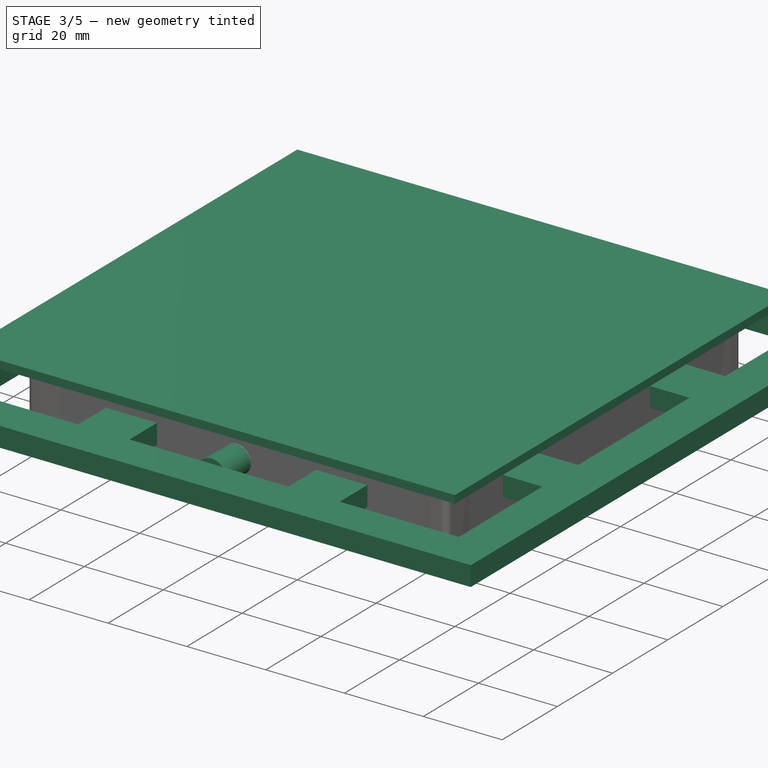
[diagram: stage 3 of 5 — iso view after this stage's code; geometry added in this stage tinted green]
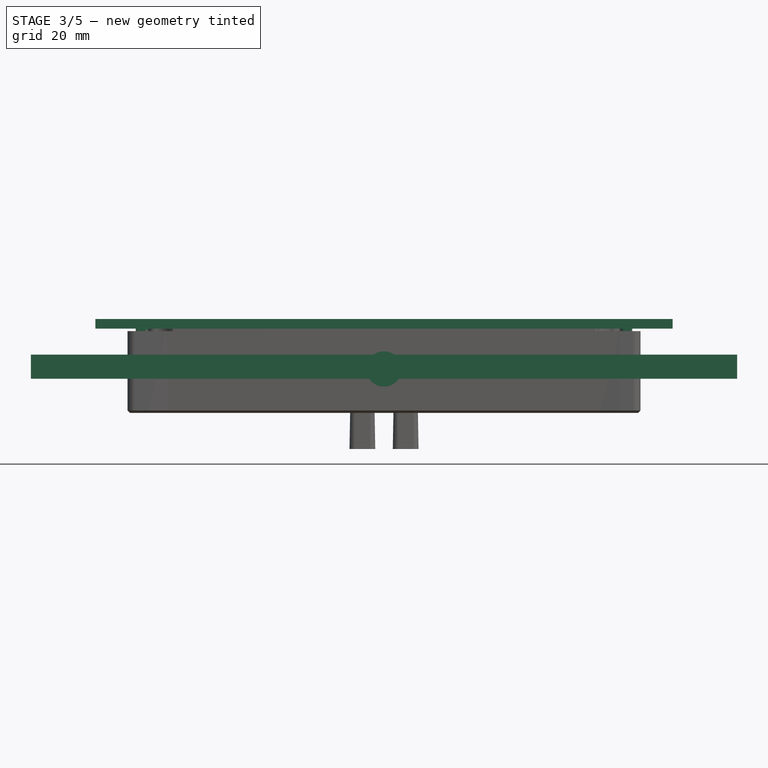
[diagram: stage 3 of 5 — front view after this stage's code; geometry added in this stage tinted green]
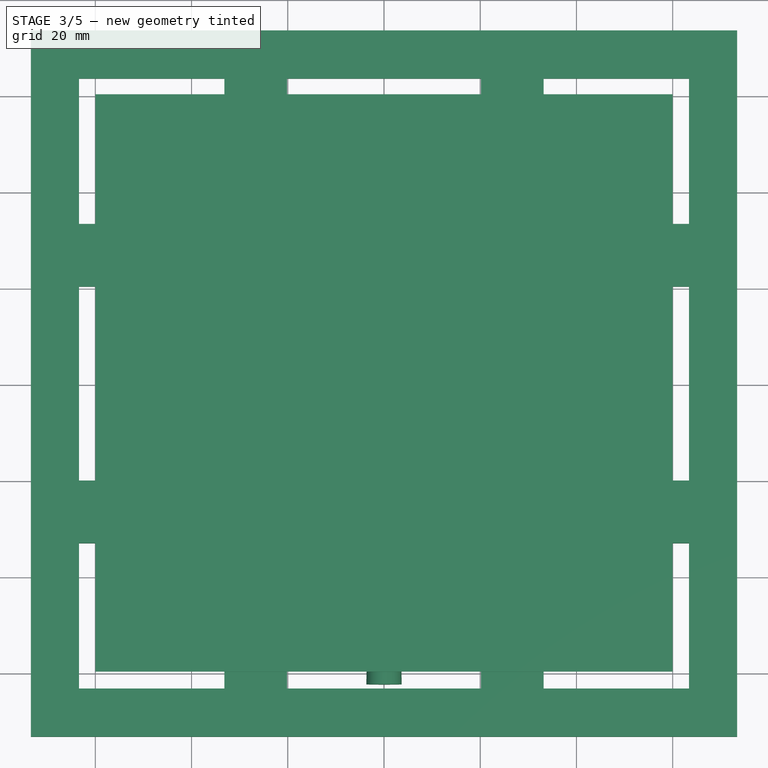
[diagram: stage 3 of 5 — top view after this stage's code; geometry added in this stage tinted green]
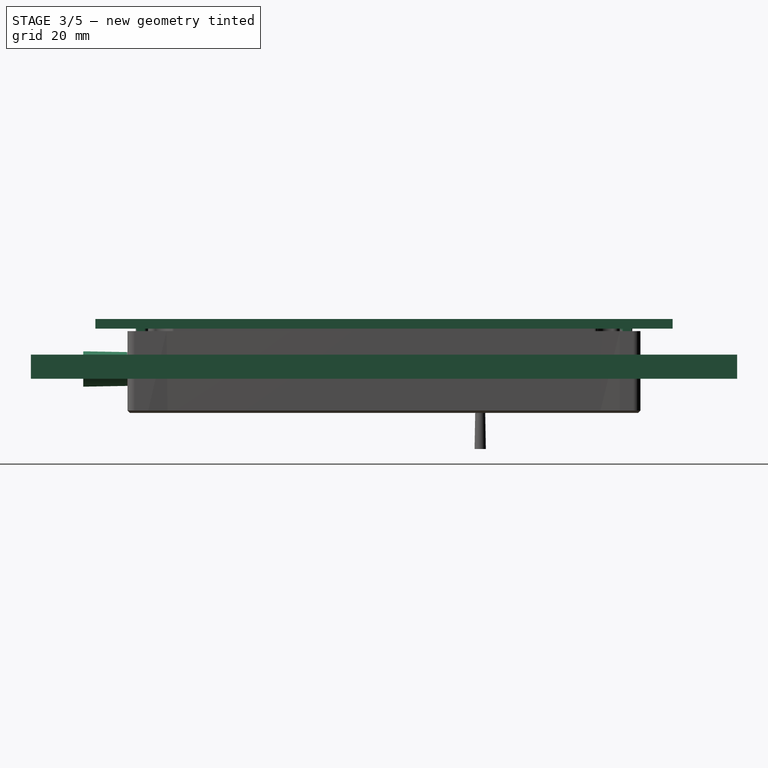
[diagram: stage 3 of 5 — right view after this stage's code; geometry added in this stage tinted green]
FEATURE [Sketcher::SketchObject] Sketch339
  ArcFitTolerance = 0
  AttachmentOffset = pos=(0,0,-52.5) rot=(0,0,1;0rad)
  FullyConstrained = true
  MakeInternals = false
  MapMode = 5
  Placement = pos=(0,52.5,5.432e-12) rot=(1,0,0;1.5708rad)
  expr: Constraints[24] = 9.03 mm + 0.3 mm
  expr: Constraints[25] = 3.24 mm + 0.4 mm
  expr: Constraints[26] = 6.38
  sketch-geometry (11):
    g0: LineSegment StartX=-3.315 StartY=-8.2 StartZ=0 EndX=3.315 EndY=-8.2 EndZ=0
    g1: LineSegment StartX=4.665 StartY=-6.85 StartZ=0 EndX=4.665 EndY=-5.91 EndZ=0
    g2: LineSegment StartX=3.315 StartY=-4.56 StartZ=0 EndX=-3.315 EndY=-4.56 EndZ=0
    g3: LineSegment StartX=-4.665 StartY=-5.91 StartZ=0 EndX=-4.665 EndY=-6.85 EndZ=0
    g4: ArcOfCircle CenterX=-3.315 CenterY=-5.91 CenterZ=0 NormalX=0 NormalY=0 NormalZ=1 AngleXU=0 Radius=1.35 StartAngle=1.5708 EndAngle=3.14159
    g5: ArcOfCircle CenterX=3.315 CenterY=-5.91 CenterZ=0 NormalX=0 NormalY=0 NormalZ=1 AngleXU=0 Radius=1.35 StartAngle=0 EndAngle=1.5708
    g6: ArcOfCircle CenterX=3.315 CenterY=-6.85 CenterZ=0 NormalX=0 NormalY=0 NormalZ=1 AngleXU=0 Radius=1.35 StartAngle=4.71239 EndAngle=6.28319
    g7: ArcOfCircle CenterX=-3.315 CenterY=-6.85 CenterZ=0 NormalX=0 NormalY=0 NormalZ=1 AngleXU=0 Radius=1.35 StartAngle=3.14159 EndAngle=4.71239
    g8: LineSegment [constr] StartX=-3.315 StartY=-5.91 StartZ=0 EndX=0 EndY=-6.38 EndZ=0
    g9: LineSegment [constr] StartX=0 StartY=-6.38 StartZ=0 EndX=-3.315 EndY=-6.85 EndZ=0
    g10: LineSegment [constr] StartX=0 StartY=-6.38 StartZ=0 EndX=3.315 EndY=-5.91 EndZ=0
  constraints (27):
    c: Horizontal(g0)
    c: Horizontal(g2)
    c: Vertical(g1)
    c: Vertical(g3)
    c: Tangent(g3,g4) = -1.5708
    c: Tangent(g2,g4) = -1.5708
    c: Tangent(g2,g5) = -1.5708
    c: Tangent(g1,g5) = -1.5708
    c: Tangent(g1,g6) = -1.5708
    c: Tangent(g0,g6) = -1.5708
    c: Tangent(g0,g7) = -1.5708
    c: Tangent(g3,g7) = -1.5708
    c: Radius(g4) = 1.35
    c: Equal(g4,g7)
    c: Equal(g4,g6)
    c: Equal(g4,g5)
    c: Coincident(g8,g4)
    c: PointOnObject(g8,g-2)
    c: Coincident(g9,g8)
    c: Coincident(g9,g7)
    c: Coincident(g10,g8)
    c: Coincident(g10,g5)
    c: Equal(g8,g9)
    c: Equal(g9,g10)
    c: DistanceX(g3,g1) = 9.33
    c: DistanceY(g0,g2) = 3.64
    c: DistanceY(g8,g-1) = 6.38
FEATURE [Sketcher::SketchObject] Sketch340
  ArcFitTolerance = 0
  AttachmentOffset = pos=(0,0,-52.5) rot=(0,0,1;0rad)
  FullyConstrained = true
  MakeInternals = false
  MapMode = 5
  Placement = pos=(0,52.5,5.432e-12) rot=(1,0,0;1.5708rad)
  sketch-geometry (6):
    g0: ArcOfCircle CenterX=-3.5 CenterY=-6.38 CenterZ=0 NormalX=0 NormalY=0 NormalZ=1 AngleXU=0 Radius=3.5 StartAngle=1.5708 EndAngle=4.71239
    g1: ArcOfCircle CenterX=3.5 CenterY=-6.38 CenterZ=0 NormalX=0 NormalY=0 NormalZ=1 AngleXU=0 Radius=3.5 StartAngle=4.71239 EndAngle=7.85398
    g2: LineSegment StartX=-3.5 StartY=-9.88 StartZ=0 EndX=3.5 EndY=-9.88 EndZ=0
    g3: LineSegment StartX=3.5 StartY=-2.88 StartZ=0 EndX=-3.5 EndY=-2.88 EndZ=0
    g4: LineSegment [constr] StartX=-3.5 StartY=-6.38 StartZ=0 EndX=0 EndY=0 EndZ=0
    g5: LineSegment [constr] StartX=0 StartY=0 StartZ=0 EndX=3.5 EndY=-6.38 EndZ=0
  constraints (14):
    c: Tangent(g0,g2) = -1.5708
    c: Tangent(g2,g1) = -1.5708
    c: Tangent(g1,g3) = -1.5708
    c: Tangent(g3,g0) = -1.5708
    c: Equal(g0,g1)
    c: Horizontal(g2)
    c: Coincident(g4,g0)
    c: Coincident(g4,g-1)
    c: Coincident(g5,g4)
    c: Coincident(g5,g1)
    c: Equal(g5,g4)
    c: DistanceY(g0,g0) = 7
    c: DistanceX(g0,g1) = 7
    c: DistanceY(g0,g4) = 6.38
FEATURE [Sketcher::SketchObject] Sketch345
  ArcFitTolerance = 0
  AttachmentOffset = pos=(0,0,-5.9) rot=(0,0,1;3.14159rad)
  FullyConstrained = true
  MakeInternals = false
  MapMode = 5
  Placement = pos=(0,0,-5.9) rot=(0,0,1;3.14159rad)
  sketch-geometry (18):
    g0: LineSegment StartX=-33.17 StartY=-53.4 StartZ=0 EndX=-20.17 EndY=-53.4 EndZ=0
    g1: LineSegment StartX=20.17 StartY=-53.4 StartZ=0 EndX=33.17 EndY=-53.4 EndZ=0
    g2: LineSegment [constr] StartX=33.17 StartY=-53.4 StartZ=0 EndX=26.67 EndY=0 EndZ=0
    g3: LineSegment [constr] StartX=26.67 StartY=0 StartZ=0 EndX=20.17 EndY=-53.4 EndZ=0
    g4: LineSegment [constr] StartX=-20.17 StartY=-53.4 StartZ=0 EndX=-26.67 EndY=0 EndZ=0
    g5: LineSegment [constr] StartX=-26.67 StartY=0 StartZ=0 EndX=-33.17 EndY=-53.4 EndZ=0
    g6: LineSegment [constr] StartX=-26.67 StartY=0 StartZ=0 EndX=0 EndY=0 EndZ=0
    g7: LineSegment [constr] StartX=0 StartY=0 StartZ=0 EndX=26.67 EndY=0 EndZ=0
    g8: LineSegment StartX=33.17 StartY=-53.4 StartZ=0 EndX=33.17 EndY=-63.4 EndZ=0
    g9: LineSegment StartX=-33.17 StartY=-63.4 StartZ=0 EndX=-33.17 EndY=-53.4 EndZ=0
    g10: LineSegment StartX=20.17 StartY=-53.4 StartZ=0 EndX=20.17 EndY=-63.4 EndZ=0
    g11: LineSegment StartX=20.17 StartY=-63.4 StartZ=0 EndX=-20.17 EndY=-63.4 EndZ=0
    g12: LineSegment StartX=-20.17 StartY=-63.4 StartZ=0 EndX=-20.17 EndY=-53.4 EndZ=0
    g13: LineSegment StartX=73.4 StartY=-73.4 StartZ=0 EndX=-73.4 EndY=-73.4 EndZ=0
    g14: LineSegment StartX=73.4 StartY=-73.4 StartZ=0 EndX=73.4 EndY=-63.4 EndZ=0
    g15: LineSegment StartX=73.4 StartY=-63.4 StartZ=0 EndX=33.17 EndY=-63.4 EndZ=0
    g16: LineSegment StartX=-33.17 StartY=-63.4 StartZ=0 EndX=-73.4 EndY=-63.4 EndZ=0
    g17: LineSegment StartX=-73.4 StartY=-63.4 StartZ=0 EndX=-73.4 EndY=-73.4 EndZ=0
  constraints (50):
    c: Horizontal(g0)
    c: Horizontal(g1)
    c: Coincident(g1,g2)
    c: PointOnObject(g2,g-1)
    c: Coincident(g2,g3)
    c: Coincident(g3,g1)
    c: Coincident(g0,g4)
    c: PointOnObject(g4,g-1)
    c: Coincident(g4,g5)
    c: Coincident(g5,g0)
    c: Coincident(g4,g6)
    c: Coincident(g6,g7)
    c: Coincident(g7,g2)
    c: Coincident(g6,g-1)
    c: Equal(g7,g6)
    c: Equal(g4,g5)
    c: Equal(g5,g2)
    c: Equal(g2,g3)
    c: Equal(g1,g0)
    c: DistanceX(g6,g6) = 26.67
    c: Coincident(g1,g8)
    c: Coincident(g9,g0)
    c: Coincident(g1,g10)
    c: Vertical(g10)
    c: Coincident(g10,g11)
    c: Horizontal(g11)
    c: Coincident(g11,g12)
    c: Coincident(g12,g0)
    c: Vertical(g12)
    c: Vertical(g9)
    c: Vertical(g8)
    c: Equal(g9,g8)
    c: Equal(g8,g10)
    c: DistanceY(g1,g2) = 53.4
    c: Horizontal(g13)
    c: Coincident(g13,g14)
    c: Coincident(g14,g15)
    c: Coincident(g15,g8)
    c: Horizontal(g15)
    c: Coincident(g9,g16)
    c: Horizontal(g16)
    c: Coincident(g16,g17)
    c: Coincident(g17,g13)
    c: Vertical(g17)
    c: DistanceY(g14,g14) = 10
    c: DistanceY(g8,g8) = 10
    c: Vertical(g14)
    c: Equal(g15,g16)
    c: DistanceX(g13,g13) = 146.8
    c: DistanceX(g1,g1) = 13
FEATURE [PartDesign::Pad] Pad309  label="SliderBase"
  AllowMultiFace = false
  Direction = (0,0,1)
  Length = 5
  Length2 = 100
  Midplane = true
  Placement = pos=(0,0,-5.9) rot=(0,0,1;3.14159rad)
  Profile = -> Sketch345
  Refine = true
  Suppressed = false
  Type = 0
FEATURE [Sketcher::SketchObject] Sketch418
  ArcFitTolerance = 0
  AttachmentOffset = pos=(0,0,2) rot=(0,0,1;0rad)
  FullyConstrained = true
  MakeInternals = false
  MapMode = 5
  Placement = pos=(0,0,2) rot=(0,0,1;0rad)
  sketch-geometry (5):
    g0: LineSegment StartX=-60 StartY=60 StartZ=0 EndX=-60 EndY=-60 EndZ=0
    g1: LineSegment StartX=-60 StartY=-60 StartZ=0 EndX=60 EndY=-60 EndZ=0
    g2: LineSegment StartX=60 StartY=-60 StartZ=0 EndX=60 EndY=60 EndZ=0
    g3: LineSegment StartX=60 StartY=60 StartZ=0 EndX=-60 EndY=60 EndZ=0
    g4: Circle [constr] CenterX=0 CenterY=0 CenterZ=0 NormalX=0 NormalY=0 NormalZ=1 AngleXU=0 Radius=84.8528
  constraints (14):
    c: Coincident(g0,g1)
    c: Coincident(g1,g2)
    c: Coincident(g2,g3)
    c: Coincident(g3,g0)
    c: Equal(g0,g1)
    c: Equal(g0,g2)
    c: Equal(g0,g3)
    c: PointOnObject(g0,g4)
    c: PointOnObject(g1,g4)
    c: PointOnObject(g2,g4)
    c: PointOnObject(g3,g4)
    c: Coincident(g4,g-1)
    c: Horizontal(g3)
    c: DistanceX(g3,g3) = 120
FEATURE [PartDesign::Pad] Pad370
  Direction = (0,0,1)
  Length = 2
  Length2 = 100
  Placement = pos=(0,0,2) rot=(0,0,1;0rad)
  Profile = -> Sketch418
  Suppressed = false
  Type = 0
FEATURE [PartDesign::Revolution] Revolution001
  Angle = 360
  Angle2 = 60
  Axis = (0,2e-16,1)
  Base = (50,-50,1.1e-14)
  BaseFeature = -> Pad370
  Placement = pos=(0,0,2) rot=(0,0,1;0rad)
  Profile = -> Sketch473
  ReferenceAxis = -> Sketch473 [V_Axis]
  Suppressed = false
  Type = 0
FEATURE [Sketcher::SketchObject] Sketch477
  ArcFitTolerance = 0
  AttachmentOffset = pos=(26.67,0,26.67) rot=(0,0,1;0rad)
  FullyConstrained = true
  MakeInternals = false
  MapMode = 5
  Placement = pos=(26.67,-26.67,6e-15) rot=(1,0,0;1.5708rad)
  sketch-geometry (14):
    g0: LineSegment StartX=-0.970431 StartY=2.5 StartZ=0 EndX=-0.85 EndY=-11.3 EndZ=0
    g1: LineSegment StartX=-0.85 StartY=-11.3 StartZ=0 EndX=-1.17669 EndY=-11.3 EndZ=0
    g2: LineSegment StartX=-1.17669 StartY=-11.3 StartZ=0 EndX=-1.25 EndY=-15.5 EndZ=0
    g3: LineSegment [constr] StartX=-0.970431 StartY=2.5 StartZ=0 EndX=0.970431 EndY=2.5 EndZ=0
    g4: LineSegment [constr] StartX=0.970431 StartY=2.5 StartZ=0 EndX=0.85 EndY=-11.3 EndZ=0
    g5: LineSegment [constr] StartX=0.85 StartY=-11.3 StartZ=0 EndX=1.17669 EndY=-11.3 EndZ=0
    g6: LineSegment [constr] StartX=1.17669 StartY=-11.3 StartZ=0 EndX=1.25 EndY=-15.5 EndZ=0
    g7: LineSegment [constr] StartX=-0.85 StartY=-11.3 StartZ=0 EndX=0.85 EndY=-11.3 EndZ=0
    g8: LineSegment [constr] StartX=-0.970431 StartY=2.5 StartZ=0 EndX=0 EndY=0 EndZ=0
    g9: LineSegment [constr] StartX=0 StartY=0 StartZ=0 EndX=0.970431 EndY=2.5 EndZ=0
    g10: LineSegment [constr] StartX=-1.25 StartY=-15.5 StartZ=0 EndX=1.25 EndY=-15.5 EndZ=0
    g11: LineSegment StartX=-0.970431 StartY=2.5 StartZ=0 EndX=0 EndY=2.5 EndZ=0
    g12: LineSegment StartX=0 StartY=2.5 StartZ=0 EndX=0 EndY=-15.5 EndZ=0
    g13: LineSegment StartX=0 StartY=-15.5 StartZ=0 EndX=-1.25 EndY=-15.5 EndZ=0
  constraints (38):
    c: Coincident(g0,g1)
    c: Horizontal(g1)
    c: Coincident(g1,g2)
    c: Angle(g0,g-1) = 1.56207
    c: DistanceY(g-1,g0) = 2.5
    c: Coincident(g3,g0)
    c: Horizontal(g3)
    c: Coincident(g4,g3)
    c: Coincident(g5,g4)
    c: Horizontal(g5)
    c: Coincident(g6,g5)
    c: DistanceX(g0,g4) = 1.7
    c: Coincident(g7,g0)
    c: Coincident(g7,g4)
    c: Horizontal(g7)
    c: Equal(g4,g0)
    c: Coincident(g8,g0)
    c: Coincident(g8,g-1)
    c: Coincident(g9,g8)
    c: Coincident(g9,g3)
    c: Equal(g9,g8)
    c: Equal(g1,g5)
    c: Equal(g6,g2)
    c: Coincident(g10,g2)
    c: Coincident(g10,g6)
    c: Horizontal(g10)
    c: DistanceX(g2,g6) = 2.5
    c: Angle(g-1,g6) = 1.58825
    c: DistanceY(g2,g1) = 4.2
    c: DistanceY(g2,g8) = 15.5
    c: Coincident(g0,g11)
    c: PointOnObject(g11,g-2)
    c: Coincident(g11,g12)
    c: Coincident(g12,g13)
    c: Coincident(g13,g2)
    c: PointOnObject(g12,g-2)
    c: Horizontal(g13)
    c: Horizontal(g11)
FEATURE [PartDesign::Revolution] Revolution002
  Angle = 360
  Angle2 = 60
  Axis = (0,2e-16,1)
  Base = (26.67,-26.67,6e-15)
  BaseFeature = -> Revolution001
  Placement = pos=(0,0,2) rot=(0,0,1;0rad)
  Profile = -> Sketch477
  ReferenceAxis = -> Sketch477 [V_Axis]
  Suppressed = false
  Type = 0
FEATURE [PartDesign::Body] Body075  label="feature_usb_hole"
  AllowCompound = false
  Group = -> [Sketch339,Sketch340,Pad391,Pad392,Chamfer,Chamfer049]
  Origin = -> Origin090
  Tip = -> Chamfer049
FEATURE [PartDesign::Pad] Pad393
  Direction = (0,-1,-1.031e-13)
  Length = 10
  Length2 = 10
  Placement = pos=(0,-52.5,-5.432e-12) rot=(1,0,0;1.5708rad)
  Profile = -> Sketch352
  ReferenceAxis = -> Sketch352 [N_Axis]
  Reversed = true
  Suppressed = false
  TaperAngle = -1
  Type = 0
FEATURE [PartDesign::Pad] Pad394
  BaseFeature = -> Pad393
  Direction = (0,-1,-1.031e-13)
  Length = 10
  Length2 = 10
  Placement = pos=(0,-52.5,-5.432e-12) rot=(1,0,0;1.5708rad)
  Profile = -> Sketch353
  ReferenceAxis = -> Sketch353 [N_Axis]
  Suppressed = false
  TaperAngle = 1
  Type = 0
FEATURE [Sketcher::SketchObject] Sketch489
  ArcFitTolerance = 0
  AttachmentOffset = pos=(0,0,53.4) rot=(0,0,1;0rad)
  FullyConstrained = true
  MakeInternals = false
  MapMode = 5
  Placement = pos=(0,53.4,-1.2e-14) rot=(0,0.707107,0.707107;3.14159rad)
  sketch-geometry (16):
    g0: LineSegment [constr] StartX=-26.67 StartY=0 StartZ=0 EndX=-30.48 EndY=-5.9 EndZ=0
    g1: LineSegment [constr] StartX=-26.67 StartY=0 StartZ=0 EndX=-22.86 EndY=-5.9 EndZ=0
    g2: LineSegment [constr] StartX=26.67 StartY=0 StartZ=0 EndX=22.86 EndY=-5.9 EndZ=0
    g3: LineSegment [constr] StartX=26.67 StartY=0 StartZ=0 EndX=30.48 EndY=-5.9 EndZ=0
    g4: LineSegment [constr] StartX=22.86 StartY=-5.9 StartZ=0 EndX=30.48 EndY=-5.9 EndZ=0
    g5: LineSegment [constr] StartX=26.67 StartY=0 StartZ=0 EndX=0 EndY=0 EndZ=0
    g6: LineSegment [constr] StartX=0 StartY=0 StartZ=0 EndX=-26.67 EndY=0 EndZ=0
    g7: LineSegment [constr] StartX=-30.48 StartY=-5.9 StartZ=0 EndX=-22.86 EndY=-5.9 EndZ=0
    g8: ArcOfCircle CenterX=-30.48 CenterY=-5.9 CenterZ=0 NormalX=0 NormalY=0 NormalZ=1 AngleXU=0 Radius=2 StartAngle=1.5708 EndAngle=4.71239
    g9: ArcOfCircle CenterX=-22.86 CenterY=-5.9 CenterZ=0 NormalX=0 NormalY=0 NormalZ=1 AngleXU=0 Radius=2 StartAngle=4.71239 EndAngle=7.85398
    g10: LineSegment StartX=-30.48 StartY=-7.9 StartZ=0 EndX=-22.86 EndY=-7.9 EndZ=0
    g11: LineSegment StartX=-22.86 StartY=-3.9 StartZ=0 EndX=-30.48 EndY=-3.9 EndZ=0
    g12: ArcOfCircle CenterX=22.86 CenterY=-5.9 CenterZ=0 NormalX=0 NormalY=0 NormalZ=1 AngleXU=0 Radius=2 StartAngle=1.5708 EndAngle=4.71239
    g13: ArcOfCircle CenterX=30.48 CenterY=-5.9 CenterZ=0 NormalX=0 NormalY=0 NormalZ=1 AngleXU=0 Radius=2 StartAngle=4.71239 EndAngle=7.85398
    g14: LineSegment StartX=22.86 StartY=-7.9 StartZ=0 EndX=30.48 EndY=-7.9 EndZ=0
    g15: LineSegment StartX=30.48 StartY=-3.9 StartZ=0 EndX=22.86 EndY=-3.9 EndZ=0
  constraints (38):
    c: PointOnObject(g0,g-1)
    c: Coincident(g1,g0)
    c: Equal(g0,g1)
    c: Coincident(g3,g2)
    c: Horizontal(g4)
    c: PointOnObject(g2,g-1)
    c: Coincident(g5,g2)
    c: Coincident(g5,g-1)
    c: Coincident(g6,g-1)
    c: Coincident(g6,g0)
    c: Equal(g5,g6)
    c: DistanceX(g6,g6) = 26.67
    c: Equal(g1,g2)
    c: DistanceY(g2,g2) = 5.9
    c: Coincident(g4,g2)
    c: Equal(g2,g3)
    c: Coincident(g3,g4)
    c: Coincident(g7,g0)
    c: Coincident(g7,g1)
    c: Horizontal(g7)
    c: Equal(g4,g7)
    c: DistanceX(g7,g7) = 7.62
    c: Tangent(g8,g10) = -1.5708
    c: Tangent(g10,g9) = -1.5708
    c: Tangent(g9,g11) = -1.5708
    c: Tangent(g11,g8) = -1.5708
    c: Equal(g8,g9)
    c: Coincident(g8,g0)
    c: Tangent(g12,g14) = -1.5708
    c: Tangent(g14,g13) = -1.5708
    c: Tangent(g13,g15) = -1.5708
    c: Tangent(g15,g12) = -1.5708
    c: Equal(g12,g13)
    c: Coincident(g12,g2)
    c: Coincident(g13,g3)
    c: Coincident(g9,g1)
    c: Equal(g12,g9)
    c: Diameter(g9) = 4
FEATURE [PartDesign::Pad] Pad399  label="SliderShape"
  BaseFeature = -> Pad309
  Direction = (1e-16,1,-2e-16)
  Length = 0.3
  Length2 = 10
  Placement = pos=(0,0,-5.9) rot=(0,0,1;3.14159rad)
  Profile = -> Sketch489
  ReferenceAxis = -> Sketch489 [N_Axis]
  Reversed = true
  Suppressed = false
  TaperAngle = -1
  Type = 0
FEATURE [Sketcher::SketchObject] Sketch491
  ArcFitTolerance = 0
  FullyConstrained = true
  MakeInternals = false
  MapMode = 5
  Placement = pos=(0,0,0) rot=(0.57735,0.57735,0.57735;2.0944rad)
  sketch-geometry (5):
    g0: LineSegment StartX=53.2568 StartY=0 StartZ=0 EndX=53.0068 EndY=-17 EndZ=0
    g1: LineSegment StartX=53.0068 StartY=-17 StartZ=0 EndX=0 EndY=-17 EndZ=0
    g2: LineSegment StartX=53.2568 StartY=0 StartZ=0 EndX=0 EndY=0 EndZ=0
    g3: LineSegment StartX=0 StartY=0 StartZ=0 EndX=0 EndY=-17 EndZ=0
    g4: LineSegment [constr] StartX=0 StartY=-5.9 StartZ=0 EndX=53.17 EndY=-5.9 EndZ=0
  constraints (15):
    c: PointOnObject(g0,g-1)
    c: Coincident(g0,g1)
    c: PointOnObject(g1,g-2)
    c: Coincident(g0,g2)
    c: Coincident(g2,g-1)
    c: Horizontal(g1)
    c: Coincident(g3,g2)
    c: Coincident(g3,g1)
    c: PointOnObject(g4,g3)
    c: PointOnObject(g4,g0)
    c: Horizontal(g4)
    c: DistanceY(g4,g2) = 5.9
    c: DistanceX(g4,g4) = 53.17
    c: DistanceY(g3,g3) = 17
    c: DistanceX(g0,g0) = 0.25
FEATURE [PartDesign::Pocket] Pocket035  label="SliderFaceAngle"
  BaseFeature = -> Pad399
  Direction = (-1,-1e-16,1e-16)
  Length = 80
  Length2 = 5
  Midplane = true
  Placement = pos=(0,0,-5.9) rot=(0,0,1;3.14159rad)
  Profile = -> Sketch491
  ReferenceAxis = -> Sketch491 [N_Axis]
  Suppressed = false
  Type = 0
FEATURE [PartDesign::Pad] Pad400
  BaseFeature = -> Pocket035
  Direction = (1e-16,1,-2e-16)
  Length = 10
  Length2 = 10
  Placement = pos=(0,0,-5.9) rot=(0,0,1;3.14159rad)
  Profile = -> Sketch346
  ReferenceAxis = -> Sketch346 [N_Axis]
  Suppressed = false
  TaperAngle = 1
  Type = 0
FEATURE [PartDesign::PolarPattern] PolarPattern092
  Angle = 360
  Axis = -> Z_Axis091
  BaseFeature = -> Pad400
  Mode = 0
  Occurrences = 4
  Offset = 120
  Originals = -> [Pad309,Pad399,Pocket035,Pad400]
  Placement = pos=(0,0,-5.9) rot=(0,0,1;3.14159rad)
  Refine = true
  Suppressed = false
  TransformMode = 0
FEATURE [Sketcher::SketchObject] Sketch496
  ArcFitTolerance = 0
  AttachmentOffset = pos=(0,0,-2) rot=(0,0,1;0rad)
  FullyConstrained = true
  MakeInternals = false
  MapMode = 5
  Placement = pos=(0,0,2) rot=(0,1,0;3.14159rad)
  sketch-geometry (14):
    g0: LineSegment StartX=-51.6 StartY=-49.6981 StartZ=0 EndX=-51.6 EndY=-51.35 EndZ=0
    g1: LineSegment StartX=-51.35 StartY=-51.6 StartZ=0 EndX=-49.6981 EndY=-51.6 EndZ=0
    g2: ArcOfCircle CenterX=-51.35 CenterY=-51.35 CenterZ=0 NormalX=0 NormalY=0 NormalZ=1 AngleXU=0 Radius=0.25 StartAngle=3.14159 EndAngle=4.71239
    g3: LineSegment [constr] StartX=-49.6981 StartY=-51.6 StartZ=0 EndX=0 EndY=-51.6 EndZ=0
    g4: LineSegment [constr] StartX=-51.6 StartY=-49.6981 StartZ=0 EndX=-51.6 EndY=0 EndZ=0
    g5: ArcOfCircle CenterX=-47 CenterY=-51.7 CenterZ=0 NormalX=0 NormalY=0 NormalZ=1 AngleXU=0 Radius=2.7 StartAngle=2.61799 EndAngle=3.10455
    g6: ArcOfCircle CenterX=-51.7 CenterY=-47 CenterZ=0 NormalX=0 NormalY=0 NormalZ=1 AngleXU=0 Radius=2.7 StartAngle=4.74943 EndAngle=5.23599
    g7: LineSegment [constr] StartX=-51.7 StartY=0 StartZ=0 EndX=-51.7 EndY=-47 EndZ=0
    g8: LineSegment [constr] StartX=-51.7 StartY=-47 StartZ=0 EndX=0 EndY=-47 EndZ=0
    g9: LineSegment [constr] StartX=-47 StartY=-51.7 StartZ=0 EndX=-47 EndY=0 EndZ=0
    g10: LineSegment [constr] StartX=-47 StartY=-51.7 StartZ=0 EndX=0 EndY=-51.7 EndZ=0
    g11: LineSegment [constr] StartX=-50.35 StartY=-49.3383 StartZ=0 EndX=-49.3383 EndY=-49.3383 EndZ=0
    g12: LineSegment [constr] StartX=-49.3383 StartY=-50.35 StartZ=0 EndX=-49.3383 EndY=-49.3383 EndZ=0
    g13: LineSegment StartX=-50.35 StartY=-49.3383 StartZ=0 EndX=-49.3383 EndY=-50.35 EndZ=0
  constraints (42):
    c: Vertical(g0)
    c: Horizontal(g1)
    c: Tangent(g0,g2) = -1.5708
    c: Tangent(g1,g2) = -1.5708
    c: Radius(g2) = 0.25
    c: Coincident(g1,g3)
    c: PointOnObject(g3,g-2)
    c: Horizontal(g3)
    c: Coincident(g0,g4)
    c: PointOnObject(g4,g-1)
    c: Vertical(g4)
    c: Equal(g4,g3)
    c: Equal(g0,g1)
    c: Coincident(g5,g1)
    c: DistanceX(g5,g-1) = 47
    c: DistanceY(g5,g-1) = 51.7
    c: DistanceY(g1,g-1) = 51.6
    c: Radius(g5) = 2.7
    c: Coincident(g6,g0)
    c: PointOnObject(g7,g-1)
    c: Coincident(g7,g6)
    c: Vertical(g7)
    c: Coincident(g7,g8)
    c: PointOnObject(g8,g-2)
    c: Horizontal(g8)
    c: Coincident(g9,g5)
    c: PointOnObject(g9,g-1)
    c: Vertical(g9)
    c: Coincident(g10,g5)
    c: PointOnObject(g10,g-2)
    c: Horizontal(g10)
    c: Equal(g8,g9)
    c: Equal(g7,g10)
    c: Coincident(g11,g6)
    c: Horizontal(g11)
    c: Coincident(g12,g5)
    c: Coincident(g12,g11)
    c: Vertical(g12)
    c: Equal(g12,g11)
    c: Coincident(g13,g6)
    c: Coincident(g13,g5)
    c: DistanceY(g1,g5) = 1.25
FEATURE [PartDesign::Pad] Pad404
  BaseFeature = -> Revolution002
  Direction = (1e-16,0,-1)
  Length = 12.3
  Length2 = 10
  Placement = pos=(0,0,2) rot=(0,0,1;0rad)
  Profile = -> Sketch496
  ReferenceAxis = -> Sketch496 [N_Axis]
  Suppressed = false
  TaperAngle = -1
  Type = 0
FEATURE [PartDesign::PolarPattern] PolarPattern094
  Angle = 360
  Axis = -> Sketch496 [N_Axis]
  BaseFeature = -> Pad404
  Mode = 0
  Occurrences = 4
  Offset = 120
  Originals = -> [Pad404,Revolution001,Revolution002]
  Placement = pos=(0,0,2) rot=(0,0,1;0rad)
  Suppressed = false
  TransformMode = 0
FEATURE [PartDesign::PolarPattern] PolarPattern095
  Angle = 360
  Axis = -> Z_Axis112
  BaseFeature = -> Pocket
  Mode = 0
  Occurrences = 4
  Offset = 120
  Originals = -> [Pocket]
  Placement = pos=(0,0,2) rot=(0,0,1;0rad)
  Suppressed = false
  TransformMode = 0
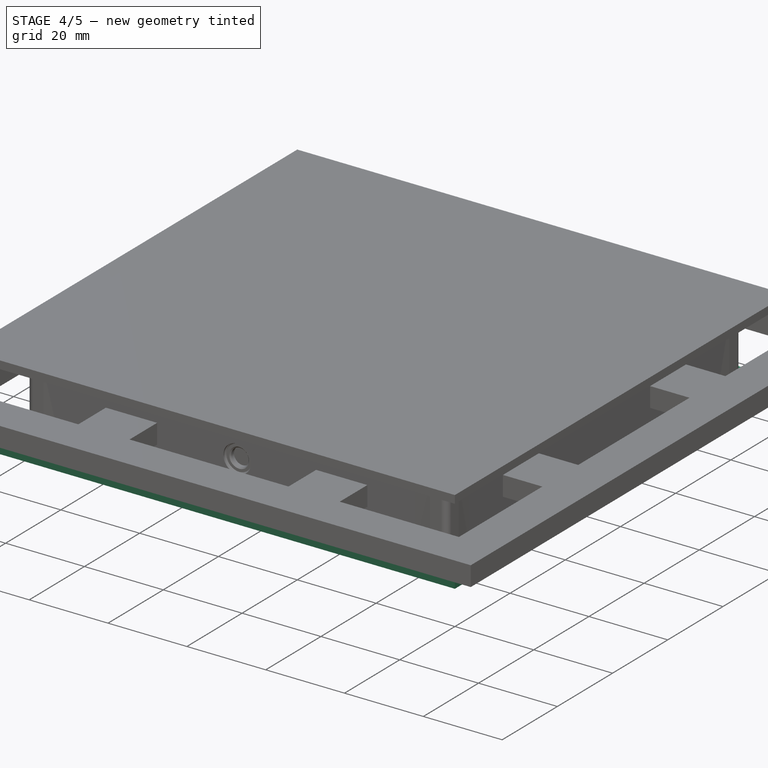
[diagram: stage 4 of 5 — iso view after this stage's code; geometry added in this stage tinted green]
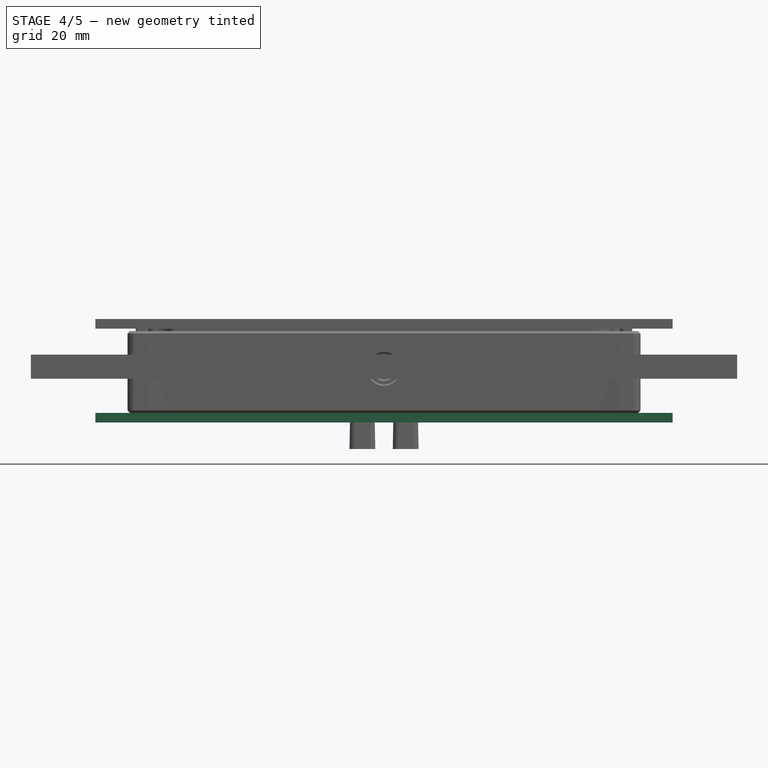
[diagram: stage 4 of 5 — front view after this stage's code; geometry added in this stage tinted green]
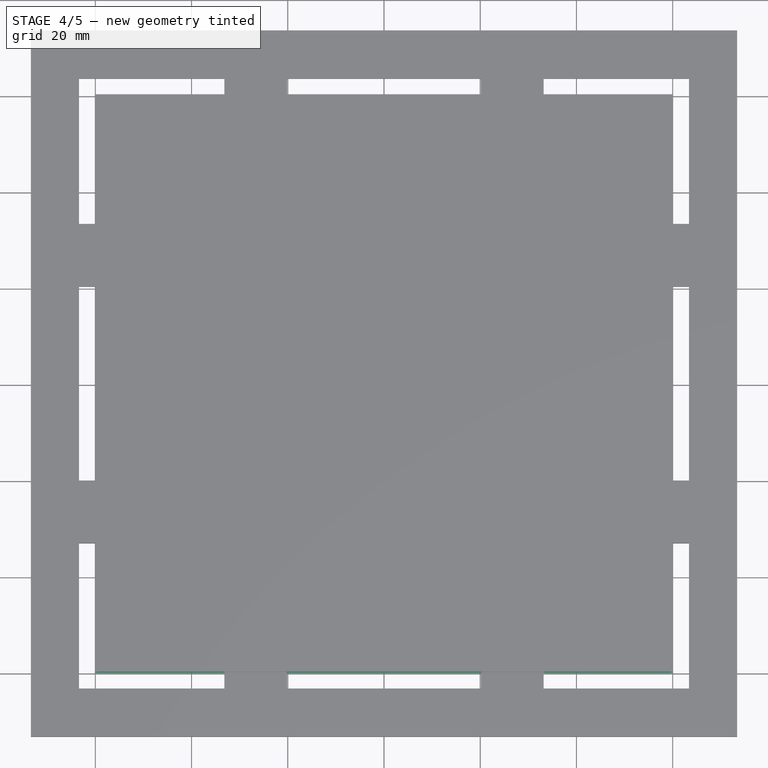
[diagram: stage 4 of 5 — top view after this stage's code; geometry added in this stage tinted green]
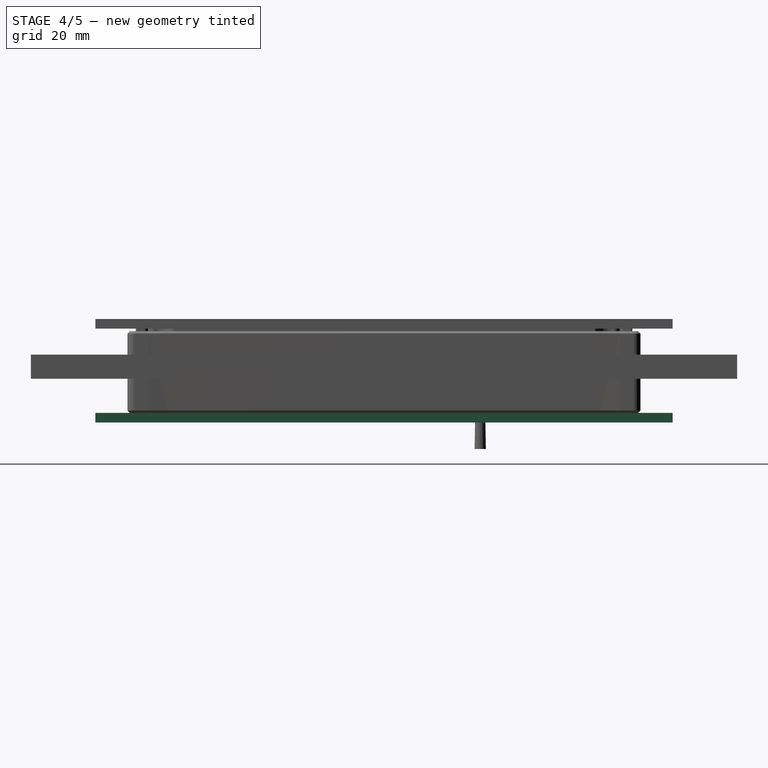
[diagram: stage 4 of 5 — right view after this stage's code; geometry added in this stage tinted green]
FEATURE [Sketcher::SketchObject] Sketch311
  ArcFitTolerance = 0
  AttachmentOffset = pos=(0,0,-15.5) rot=(0,0,1;0rad)
  FullyConstrained = true
  MakeInternals = false
  MapMode = 5
  Placement = pos=(0,0,-15.5) rot=(0,0,1;0rad)
  sketch-geometry (5):
    g0: LineSegment StartX=-60 StartY=60 StartZ=0 EndX=-60 EndY=-60 EndZ=0
    g1: LineSegment StartX=-60 StartY=-60 StartZ=0 EndX=60 EndY=-60 EndZ=0
    g2: LineSegment StartX=60 StartY=-60 StartZ=0 EndX=60 EndY=60 EndZ=0
    g3: LineSegment StartX=60 StartY=60 StartZ=0 EndX=-60 EndY=60 EndZ=0
    g4: Circle [constr] CenterX=0 CenterY=0 CenterZ=0 NormalX=0 NormalY=0 NormalZ=1 AngleXU=0 Radius=84.8528
  constraints (14):
    c: Coincident(g0,g1)
    c: Coincident(g1,g2)
    c: Coincident(g2,g3)
    c: Coincident(g3,g0)
    c: Equal(g0,g1)
    c: Equal(g0,g2)
    c: Equal(g0,g3)
    c: PointOnObject(g0,g4)
    c: PointOnObject(g1,g4)
    c: PointOnObject(g2,g4)
    c: PointOnObject(g3,g4)
    c: Coincident(g4,g-1)
    c: Horizontal(g3)
    c: DistanceX(g3,g3) = 120
FEATURE [PartDesign::Pad] Pad274
  AllowMultiFace = false
  Direction = (0,0,1)
  Length = 2
  Length2 = 100
  Placement = pos=(0,0,-15.5) rot=(0,0,1;0rad)
  Profile = -> Sketch311
  Refine = true
  Reversed = true
  Suppressed = false
  Type = 0
FEATURE [Sketcher::SketchObject] Sketch312
  ArcFitTolerance = 0
  AttachmentOffset = pos=(0,0,-15) rot=(0,0,1;0rad)
  FullyConstrained = true
  MakeInternals = false
  MapMode = 2
  Placement = pos=(0,0,-15) rot=(0,0,1;0rad)
  sketch-geometry (14):
    g0: LineSegment StartX=-42 StartY=50 StartZ=0 EndX=-36 EndY=50 EndZ=0
    g1: LineSegment StartX=-50 StartY=36 StartZ=0 EndX=-50 EndY=42 EndZ=0
    g2: ArcOfCircle CenterX=-36 CenterY=46 CenterZ=0 NormalX=0 NormalY=0 NormalZ=1 AngleXU=0 Radius=4 StartAngle=4.71239 EndAngle=7.85398
    g3: ArcOfCircle CenterX=-46 CenterY=36 CenterZ=0 NormalX=0 NormalY=0 NormalZ=1 AngleXU=0 Radius=4 StartAngle=3.14159 EndAngle=6.28319
    g4: LineSegment [constr] StartX=-41 StartY=41 StartZ=0 EndX=-36 EndY=46 EndZ=0
    g5: LineSegment [constr] StartX=-46 StartY=36 StartZ=0 EndX=-41 EndY=41 EndZ=0
    g6: LineSegment [constr] StartX=-41 StartY=0 StartZ=0 EndX=-41 EndY=41 EndZ=0
    g7: LineSegment [constr] StartX=-41 StartY=41 StartZ=0 EndX=0 EndY=41 EndZ=0
    g8: LineSegment StartX=-42 StartY=36 StartZ=0 EndX=-42 EndY=38 EndZ=0
    g9: ArcOfCircle CenterX=-38 CenterY=38 CenterZ=0 NormalX=0 NormalY=0 NormalZ=1 AngleXU=0 Radius=4 StartAngle=1.5708 EndAngle=3.14159
    g10: LineSegment StartX=-38 StartY=42 StartZ=0 EndX=-36 EndY=42 EndZ=0
    g11: LineSegment [constr] StartX=-50 StartY=42 StartZ=0 EndX=-50 EndY=50 EndZ=0
    g12: LineSegment [constr] StartX=-42 StartY=50 StartZ=0 EndX=-50 EndY=50 EndZ=0
    g13: ArcOfCircle CenterX=-42 CenterY=42 CenterZ=0 NormalX=0 NormalY=0 NormalZ=1 AngleXU=0 Radius=8 StartAngle=1.5708 EndAngle=3.14159
  constraints (38):
    c: Horizontal(g0)
    c: Vertical(g1)
    c: Tangent(g0,g2) = 1.5708
    c: Tangent(g1,g3) = 1.5708
    c: Coincident(g4,g2)
    c: Coincident(g5,g3)
    c: Equal(g4,g5)
    c: Equal(g1,g0)
    c: PointOnObject(g6,g-1)
    c: Vertical(g6)
    c: Coincident(g6,g7)
    c: PointOnObject(g7,g-2)
    c: Horizontal(g7)
    c: Equal(g7,g6)
    c: Radius(g2) = 4
    c: Equal(g3,g2)
    c: DistanceY(g-1,g0) = 50
    c: Coincident(g6,g4)
    c: Coincident(g5,g4)
    c: Parallel(g4,g5)
    c: Vertical(g8)
    c: Tangent(g8,g9) = 1.5708
    c: Horizontal(g10)
    c: Coincident(g11,g1)
    c: Vertical(g11)
    c: Coincident(g12,g0)
    c: Coincident(g12,g11)
    c: Horizontal(g12)
    c: Equal(g12,g11)
    c: Equal(g10,g8)
    c: Coincident(g13,g1)
    c: Tangent(g13,g0) = 1.5708
    c: Coincident(g9,g10)
    c: Radius(g13) = 8
    c: Tangent(g2,g10) = -1.5708
    c: Tangent(g8,g3) = -1.5708
    c: DistanceX(g11,g0) = 14
    c: Radius(g9) = 4
FEATURE [Sketcher::SketchObject] Sketch313
  ArcFitTolerance = 0
  AttachmentOffset = pos=(0,0,-15.2) rot=(0,0,1;0rad)
  FullyConstrained = true
  MakeInternals = false
  MapMode = 5
  Placement = pos=(0,0,-15.2) rot=(0,0,1;0rad)
  sketch-geometry (24):
    g0: ArcOfCircle CenterX=-18.5 CenterY=18.5 CenterZ=0 NormalX=0 NormalY=0 NormalZ=1 AngleXU=0 Radius=4 StartAngle=1.5708 EndAngle=3.14159
    g1: LineSegment StartX=-18.5 StartY=22.5 StartZ=0 EndX=18.5 EndY=22.5 EndZ=0
    g2: ArcOfCircle CenterX=18.5 CenterY=18.5 CenterZ=0 NormalX=0 NormalY=0 NormalZ=1 AngleXU=0 Radius=4 StartAngle=0 EndAngle=1.5708
    g3: LineSegment [constr] StartX=22.5 StartY=18.5 StartZ=0 EndX=22.5 EndY=-18.5 EndZ=0
    g4: ArcOfCircle [constr] CenterX=18.5 CenterY=-18.5 CenterZ=0 NormalX=0 NormalY=0 NormalZ=1 AngleXU=0 Radius=4 StartAngle=4.71239 EndAngle=6.28319
    g5: LineSegment [constr] StartX=18.5 StartY=-22.5 StartZ=0 EndX=-18.5 EndY=-22.5 EndZ=0
    g6: ArcOfCircle [constr] CenterX=-18.5 CenterY=-18.5 CenterZ=0 NormalX=0 NormalY=0 NormalZ=1 AngleXU=0 Radius=4 StartAngle=3.14159 EndAngle=4.71239
    g7: LineSegment [constr] StartX=-22.5 StartY=-18.5 StartZ=0 EndX=-22.5 EndY=18.5 EndZ=0
    g8: GeomPoint [constr] X=-22.5 Y=22.5 Z=0
    g9: GeomPoint [constr] X=22.5 Y=-22.5 Z=0
    g10: LineSegment [constr] StartX=-18.5 StartY=18.5 StartZ=0 EndX=0 EndY=0 EndZ=0
    g11: LineSegment [constr] StartX=0 StartY=0 StartZ=0 EndX=18.5 EndY=18.5 EndZ=0
    g12: LineSegment [constr] StartX=0 StartY=0 StartZ=0 EndX=-18.5 EndY=-18.5 EndZ=0
    g13: LineSegment StartX=-22.5 StartY=18.5 StartZ=0 EndX=-22.5 EndY=-7.5 EndZ=0
    g14: ArcOfCircle CenterX=-18.5 CenterY=-7.5 CenterZ=0 NormalX=0 NormalY=0 NormalZ=1 AngleXU=0 Radius=4 StartAngle=3.14159 EndAngle=4.71239
    g15: LineSegment StartX=-18.5 StartY=-11.5 StartZ=0 EndX=18.5 EndY=-11.5 EndZ=0
    g16: ArcOfCircle CenterX=18.5 CenterY=-7.5 CenterZ=0 NormalX=0 NormalY=0 NormalZ=1 AngleXU=0 Radius=4 StartAngle=4.71239 EndAngle=6.28319
    g17: LineSegment StartX=22.5 StartY=-7.5 StartZ=0 EndX=22.5 EndY=18.5 EndZ=0
    g18: ArcOfCircle CenterX=-13 CenterY=-18.5 CenterZ=0 NormalX=0 NormalY=0 NormalZ=1 AngleXU=0 Radius=4 StartAngle=1.5708 EndAngle=4.71239
    g19: ArcOfCircle CenterX=13 CenterY=-18.5 CenterZ=0 NormalX=0 NormalY=0 NormalZ=1 AngleXU=0 Radius=4 StartAngle=4.71239 EndAngle=7.85398
    g20: LineSegment StartX=-13 StartY=-22.5 StartZ=0 EndX=13 EndY=-22.5 EndZ=0
    g21: LineSegment StartX=13 StartY=-14.5 StartZ=0 EndX=-13 EndY=-14.5 EndZ=0
    g22: LineSegment [constr] StartX=-13 StartY=-18.5 StartZ=0 EndX=0 EndY=0 EndZ=0
    g23: LineSegment [constr] StartX=13 StartY=-18.5 StartZ=0 EndX=0 EndY=0 EndZ=0
  constraints (55):
    c: Tangent(g0,g1) = 1.5708
    c: Tangent(g1,g2) = 1.5708
    c: Tangent(g2,g3) = 1.5708
    c: Tangent(g3,g4) = 1.5708
    c: Tangent(g4,g5) = 1.5708
    c: Tangent(g5,g6) = 1.5708
    c: Tangent(g6,g7) = 1.5708
    c: Tangent(g7,g0) = 1.5708
    c: Horizontal(g1)
    c: Horizontal(g5)
    c: Vertical(g3)
    c: Vertical(g7)
    c: Equal(g0,g2)
    c: Equal(g2,g4)
    c: Equal(g4,g6)
    c: PointOnObject(g8,g1)
    c: PointOnObject(g8,g7)
    c: PointOnObject(g9,g3)
    c: PointOnObject(g9,g5)
    c: Coincident(g10,g0)
    c: Coincident(g10,g-1)
    c: Coincident(g10,g11)
    c: Coincident(g11,g2)
    c: Coincident(g10,g12)
    c: Coincident(g12,g6)
    c: Equal(g12,g10)
    c: Equal(g10,g11)
    c: Equal(g7,g1)
    c: DistanceX(g0,g2) = 45
    c: Tangent(g0,g13) = -1.5708
    c: Tangent(g13,g14) = -1.5708
    c: Tangent(g14,g15) = -1.5708
    c: Tangent(g15,g16) = -1.5708
    c: Tangent(g16,g3) = 1.5708
    c: Horizontal(g15)
    c: Coincident(g17,g16)
    c: Coincident(g17,g2)
    c: Tangent(g18,g20) = -1.5708
    c: Tangent(g20,g19) = -1.5708
    c: Tangent(g19,g21) = -1.5708
    c: Tangent(g21,g18) = -1.5708
    c: Equal(g18,g19)
    c: Horizontal(g20)
    c: PointOnObject(g19,g5)
    c: Equal(g19,g16)
    c: Coincident(g22,g18)
    c: Coincident(g22,g10)
    c: Coincident(g23,g19)
    c: Coincident(g23,g10)
    c: Equal(g23,g22)
    c: DistanceX(g20,g20) = 26
    c: Equal(g14,g0)
    c: DistanceY(g18,g14) = 3
    c: Equal(g16,g14)
    c: Diameter(g18) = 8
FEATURE [PartDesign::Pad] Pad275  label="Foot"
  AllowMultiFace = false
  BaseFeature = -> Pad274
  Direction = (0,0,1)
  Length = 0.5
  Length2 = 100
  Placement = pos=(0,0,-15.5) rot=(0,0,1;0rad)
  Profile = -> Sketch312
  Refine = true
  Reversed = true
  Suppressed = false
  TaperAngle = 1
  Type = 0
FEATURE [PartDesign::Pad] Pad276  label="Sticker"
  AllowMultiFace = false
  BaseFeature = -> Pad275
  Direction = (0,0,1)
  Length = 0.5
  Length2 = 100
  Placement = pos=(0,0,-15.5) rot=(0,0,1;0rad)
  Profile = -> Sketch313
  Refine = true
  Reversed = true
  Suppressed = false
  TaperAngle = 1
  Type = 0
FEATURE [PartDesign::Body] Body106  label="feature_alignment_lip_B"
  AllowCompound = false
  Group = -> [Sketch450,Pad380]
  Origin = -> Origin124
  Tip = -> Pad380
FEATURE [Sketcher::SketchObject] Sketch454
  ArcFitTolerance = 0
  AttachmentOffset = pos=(0,0,2) rot=(0,0,1;0rad)
  FullyConstrained = true
  MakeInternals = false
  MapMode = 5
  Placement = pos=(0,0,2) rot=(0,0,1;0rad)
  sketch-geometry (20):
    g0: ArcOfCircle CenterX=-51.8 CenterY=51.8 CenterZ=0 NormalX=0 NormalY=0 NormalZ=1 AngleXU=0 Radius=0.5 StartAngle=1.5708 EndAngle=3.14159
    g1: LineSegment StartX=-51.8 StartY=52.3 StartZ=0 EndX=51.8 EndY=52.3 EndZ=0
    g2: ArcOfCircle CenterX=51.8 CenterY=51.8 CenterZ=0 NormalX=0 NormalY=0 NormalZ=1 AngleXU=0 Radius=0.5 StartAngle=1.1976e-12 EndAngle=1.5708
    g3: LineSegment StartX=52.3 StartY=51.8 StartZ=0 EndX=52.3 EndY=-51.8 EndZ=0
    g4: ArcOfCircle CenterX=51.8 CenterY=-51.8 CenterZ=0 NormalX=0 NormalY=0 NormalZ=1 AngleXU=0 Radius=0.5 StartAngle=4.71239 EndAngle=6.28319
    g5: LineSegment StartX=51.8 StartY=-52.3 StartZ=0 EndX=-51.8 EndY=-52.3 EndZ=0
    g6: ArcOfCircle CenterX=-51.8 CenterY=-51.8 CenterZ=0 NormalX=0 NormalY=0 NormalZ=1 AngleXU=0 Radius=0.5 StartAngle=3.14159 EndAngle=4.71239
    g7: LineSegment StartX=-52.3 StartY=-51.8 StartZ=0 EndX=-52.3 EndY=51.8 EndZ=0
    g8: GeomPoint [constr] X=-52.3 Y=52.3 Z=0
    g9: GeomPoint [constr] X=52.3 Y=-52.3 Z=0
    g10: LineSegment [constr] StartX=-51.8 StartY=51.8 StartZ=0 EndX=0 EndY=0 EndZ=0
    g11: LineSegment [constr] StartX=0 StartY=0 StartZ=0 EndX=51.8 EndY=51.8 EndZ=0
    g12: LineSegment [constr] StartX=-51.8 StartY=-51.8 StartZ=0 EndX=0 EndY=0 EndZ=0
    g13: LineSegment StartX=-60 StartY=60 StartZ=0 EndX=60 EndY=60 EndZ=0
    g14: LineSegment StartX=60 StartY=60 StartZ=0 EndX=60 EndY=-60 EndZ=0
    g15: LineSegment StartX=60 StartY=-60 StartZ=0 EndX=-60 EndY=-60 EndZ=0
    g16: LineSegment StartX=-60 StartY=-60 StartZ=0 EndX=-60 EndY=60 EndZ=0
    g17: LineSegment [constr] StartX=-60 StartY=60 StartZ=0 EndX=0 EndY=0 EndZ=0
    g18: LineSegment [constr] StartX=0 StartY=0 StartZ=0 EndX=60 EndY=60 EndZ=0
    g19: LineSegment [constr] StartX=60 StartY=-60 StartZ=0 EndX=0 EndY=0 EndZ=0
  constraints (48):
    c: Tangent(g0,g1) = 1.5708
    c: Tangent(g1,g2) = 1.5708
    c: Tangent(g2,g3) = 1.5708
    c: Tangent(g3,g4) = 1.5708
    c: Tangent(g4,g5) = 1.5708
    c: Tangent(g5,g6) = 1.5708
    c: Tangent(g6,g7) = 1.5708
    c: Tangent(g7,g0) = 1.5708
    c: Horizontal(g1)
    c: Horizontal(g5)
    c: Vertical(g3)
    c: Vertical(g7)
    c: Equal(g0,g2)
    c: Equal(g2,g4)
    c: Equal(g4,g6)
    c: PointOnObject(g8,g1)
    c: PointOnObject(g8,g7)
    c: PointOnObject(g9,g3)
    c: PointOnObject(g9,g5)
    c: Coincident(g10,g0)
    c: Coincident(g10,g-1)
    c: Coincident(g10,g11)
    c: Coincident(g11,g2)
    c: Coincident(g12,g6)
    c: Coincident(g12,g10)
    c: Equal(g12,g10)
    c: Equal(g10,g11)
    c: Equal(g7,g1)
    c: DistanceX(g0,g2) = 104.6
    c: Coincident(g13,g14)
    c: Coincident(g14,g15)
    c: Coincident(g15,g16)
    c: Coincident(g16,g13)
    c: Horizontal(g13)
    c: Horizontal(g15)
    c: Vertical(g14)
    c: Vertical(g16)
    c: Coincident(g13,g17)
    c: Coincident(g17,g10)
    c: Coincident(g17,g18)
    c: Coincident(g18,g13)
    c: Coincident(g14,g19)
    c: Coincident(g19,g10)
    c: Equal(g19,g18)
    c: Equal(g18,g17)
    c: Equal(g13,g16)
    c: DistanceX(g13,g13) = 120
    c: Radius(g0) = 0.5
FEATURE [Sketcher::SketchObject] Sketch455
  ArcFitTolerance = 0
  AttachmentOffset = pos=(0,0,-3.5) rot=(0,0,1;0rad)
  FullyConstrained = true
  MakeInternals = false
  MapMode = 5
  Placement = pos=(0,0,-3.5) rot=(0,0,1;0rad)
  sketch-geometry (20):
    g0: ArcOfCircle CenterX=-51.8 CenterY=51.8 CenterZ=0 NormalX=0 NormalY=0 NormalZ=1 AngleXU=0 Radius=6 StartAngle=1.5708 EndAngle=3.14159
    g1: LineSegment StartX=-51.8 StartY=57.8 StartZ=0 EndX=51.8 EndY=57.8 EndZ=0
    g2: ArcOfCircle CenterX=51.8 CenterY=51.8 CenterZ=0 NormalX=0 NormalY=0 NormalZ=1 AngleXU=0 Radius=6 StartAngle=2.4e-15 EndAngle=1.5708
    g3: LineSegment StartX=57.8 StartY=51.8 StartZ=0 EndX=57.8 EndY=-51.8 EndZ=0
    g4: ArcOfCircle CenterX=51.8 CenterY=-51.8 CenterZ=0 NormalX=0 NormalY=0 NormalZ=1 AngleXU=0 Radius=6 StartAngle=4.71239 EndAngle=6.28319
    g5: LineSegment StartX=51.8 StartY=-57.8 StartZ=0 EndX=-51.8 EndY=-57.8 EndZ=0
    g6: ArcOfCircle CenterX=-51.8 CenterY=-51.8 CenterZ=0 NormalX=0 NormalY=0 NormalZ=1 AngleXU=0 Radius=6 StartAngle=3.14159 EndAngle=4.71239
    g7: LineSegment StartX=-57.8 StartY=-51.8 StartZ=0 EndX=-57.8 EndY=51.8 EndZ=0
    g8: GeomPoint [constr] X=-57.8 Y=57.8 Z=0
    g9: GeomPoint [constr] X=57.8 Y=-57.8 Z=0
    g10: LineSegment [constr] StartX=-51.8 StartY=51.8 StartZ=0 EndX=7.1e-15 EndY=0 EndZ=0
    g11: LineSegment [constr] StartX=7.1e-15 StartY=0 StartZ=0 EndX=51.8 EndY=51.8 EndZ=0
    g12: LineSegment [constr] StartX=-51.8 StartY=-51.8 StartZ=0 EndX=7.1e-15 EndY=0 EndZ=0
    g13: LineSegment StartX=-60 StartY=60 StartZ=0 EndX=60 EndY=60 EndZ=0
    g14: LineSegment StartX=60 StartY=60 StartZ=0 EndX=60 EndY=-60 EndZ=0
    g15: LineSegment StartX=60 StartY=-60 StartZ=0 EndX=-60 EndY=-60 EndZ=0
    g16: LineSegment StartX=-60 StartY=-60 StartZ=0 EndX=-60 EndY=60 EndZ=0
    g17: LineSegment [constr] StartX=-60 StartY=60 StartZ=0 EndX=7.1e-15 EndY=0 EndZ=0
    g18: LineSegment [constr] StartX=7.1e-15 StartY=0 StartZ=0 EndX=60 EndY=60 EndZ=0
    g19: LineSegment [constr] StartX=60 StartY=-60 StartZ=0 EndX=7.1e-15 EndY=0 EndZ=0
  constraints (48):
    c: Tangent(g0,g1) = 1.5708
    c: Tangent(g1,g2) = 1.5708
    c: Tangent(g2,g3) = 1.5708
    c: Tangent(g3,g4) = 1.5708
    c: Tangent(g4,g5) = 1.5708
    c: Tangent(g5,g6) = 1.5708
    c: Tangent(g6,g7) = 1.5708
    c: Tangent(g7,g0) = 1.5708
    c: Horizontal(g1)
    c: Horizontal(g5)
    c: Vertical(g3)
    c: Vertical(g7)
    c: Equal(g0,g2)
    c: Equal(g2,g4)
    c: Equal(g4,g6)
    c: PointOnObject(g8,g1)
    c: PointOnObject(g8,g7)
    c: PointOnObject(g9,g3)
    c: PointOnObject(g9,g5)
    c: Coincident(g10,g0)
    c: Coincident(g10,g-1)
    c: Coincident(g10,g11)
    c: Coincident(g11,g2)
    c: Coincident(g12,g6)
    c: Coincident(g12,g10)
    c: Equal(g12,g10)
    c: Equal(g10,g11)
    c: Equal(g7,g1)
    c: DistanceX(g0,g2) = 115.6
    c: Coincident(g13,g14)
    c: Coincident(g14,g15)
    c: Coincident(g15,g16)
    c: Coincident(g16,g13)
    c: Horizontal(g13)
    c: Horizontal(g15)
    c: Vertical(g14)
    c: Vertical(g16)
    c: Coincident(g13,g17)
    c: Coincident(g17,g10)
    c: Coincident(g17,g18)
    c: Coincident(g18,g13)
    c: Coincident(g14,g19)
    c: Coincident(g19,g10)
    c: Equal(g19,g18)
    c: Equal(g18,g17)
    c: Equal(g13,g16)
    c: DistanceX(g13,g13) = 120
    c: DistanceX(g1,g1) = 103.6
FEATURE [PartDesign::AdditiveLoft] AdditiveLoft002
  Closed = false
  Placement = pos=(0,0,2) rot=(0,0,1;0rad)
  Profile = -> Sketch454
  Ruled = false
  Sections = -> [Sketch455]
  Suppressed = false
FEATURE [Sketcher::SketchObject] Sketch473
  ArcFitTolerance = 0
  AttachmentOffset = pos=(50,0,50) rot=(0,0,1;0rad)
  FullyConstrained = true
  MakeInternals = false
  MapMode = 5
  Placement = pos=(50,-50,1.1e-14) rot=(1,0,0;1.5708rad)
  sketch-geometry (14):
    g0: LineSegment StartX=-0.970431 StartY=2.5 StartZ=0 EndX=-0.85 EndY=-11.3 EndZ=0
    g1: LineSegment StartX=-0.85 StartY=-11.3 StartZ=0 EndX=-1.17669 EndY=-11.3 EndZ=0
    g2: LineSegment StartX=-1.17669 StartY=-11.3 StartZ=0 EndX=-1.25 EndY=-15.5 EndZ=0
    g3: LineSegment [constr] StartX=-0.970431 StartY=2.5 StartZ=0 EndX=0.970431 EndY=2.5 EndZ=0
    g4: LineSegment [constr] StartX=0.970431 StartY=2.5 StartZ=0 EndX=0.85 EndY=-11.3 EndZ=0
    g5: LineSegment [constr] StartX=0.85 StartY=-11.3 StartZ=0 EndX=1.17669 EndY=-11.3 EndZ=0
    g6: LineSegment [constr] StartX=1.17669 StartY=-11.3 StartZ=0 EndX=1.25 EndY=-15.5 EndZ=0
    g7: LineSegment [constr] StartX=-0.85 StartY=-11.3 StartZ=0 EndX=0.85 EndY=-11.3 EndZ=0
    g8: LineSegment [constr] StartX=-0.970431 StartY=2.5 StartZ=0 EndX=0 EndY=0 EndZ=0
    g9: LineSegment [constr] StartX=0 StartY=0 StartZ=0 EndX=0.970431 EndY=2.5 EndZ=0
    g10: LineSegment [constr] StartX=-1.25 StartY=-15.5 StartZ=0 EndX=1.25 EndY=-15.5 EndZ=0
    g11: LineSegment StartX=-0.970431 StartY=2.5 StartZ=0 EndX=0 EndY=2.5 EndZ=0
    g12: LineSegment StartX=0 StartY=2.5 StartZ=0 EndX=0 EndY=-15.5 EndZ=0
    g13: LineSegment StartX=0 StartY=-15.5 StartZ=0 EndX=-1.25 EndY=-15.5 EndZ=0
  constraints (38):
    c: Coincident(g0,g1)
    c: Horizontal(g1)
    c: Coincident(g1,g2)
    c: Angle(g0,g-1) = 1.56207
    c: DistanceY(g-1,g0) = 2.5
    c: Coincident(g3,g0)
    c: Horizontal(g3)
    c: Coincident(g4,g3)
    c: Coincident(g5,g4)
    c: Horizontal(g5)
    c: Coincident(g6,g5)
    c: DistanceX(g0,g4) = 1.7
    c: Coincident(g7,g0)
    c: Coincident(g7,g4)
    c: Horizontal(g7)
    c: Equal(g4,g0)
    c: Coincident(g8,g0)
    c: Coincident(g8,g-1)
    c: Coincident(g9,g8)
    c: Coincident(g9,g3)
    c: Equal(g9,g8)
    c: Equal(g1,g5)
    c: Equal(g6,g2)
    c: Coincident(g10,g2)
    c: Coincident(g10,g6)
    c: Horizontal(g10)
    c: DistanceX(g2,g6) = 2.5
    c: Angle(g-1,g6) = 1.58825
    c: DistanceY(g2,g1) = 4.2
    c: DistanceY(g2,g8) = 15.5
    c: Coincident(g0,g11)
    c: PointOnObject(g11,g-2)
    c: Coincident(g11,g12)
    c: Coincident(g12,g13)
    c: Coincident(g13,g2)
    c: PointOnObject(g12,g-2)
    c: Horizontal(g13)
    c: Horizontal(g11)
FEATURE [PartDesign::PolarPattern] PolarPattern082
  Angle = 360
  Axis = -> Sketch312 [N_Axis]
  BaseFeature = -> Pad276
  Mode = 0
  Occurrences = 4
  Offset = 120
  Originals = -> [Pad275]
  Placement = pos=(0,0,-15.5) rot=(0,0,1;0rad)
  Suppressed = false
  TransformMode = 0
FEATURE [PartDesign::Pad] Pad391
  Direction = (0,-1,-1.031e-13)
  Length = 10
  Length2 = 10
  Placement = pos=(0,52.5,5.432e-12) rot=(1,0,0;1.5708rad)
  Profile = -> Sketch340
  ReferenceAxis = -> Sketch340 [N_Axis]
  Reversed = true
  Suppressed = false
  TaperAngle = 1
  Type = 0
FEATURE [PartDesign::Pad] Pad392
  BaseFeature = -> Pad391
  Direction = (0,-1,-1.031e-13)
  Length = 10
  Length2 = 10
  Placement = pos=(0,52.5,5.432e-12) rot=(1,0,0;1.5708rad)
  Profile = -> Sketch339
  ReferenceAxis = -> Sketch339 [N_Axis]
  Suppressed = false
  TaperAngle = -1
  Type = 0
FEATURE [PartDesign::Chamfer] Chamfer
  Angle = 45
  Base = -> Pad392 [Edge10]
  BaseFeature = -> Pad392
  ChamferType = 0
  FlipDirection = false
  Placement = pos=(0,52.5,5.432e-12) rot=(1,0,0;1.5708rad)
  Size = 0.3
  Size2 = 1
  SupportTransform = false
  Suppressed = false
  UseAllEdges = false
FEATURE [PartDesign::Chamfer] Chamfer049
  Angle = 45
  Base = -> Chamfer [Edge32]
  BaseFeature = -> Chamfer
  ChamferType = 0
  FlipDirection = false
  Placement = pos=(0,52.5,5.432e-12) rot=(1,0,0;1.5708rad)
  Size = 0.3
  Size2 = 1
  SupportTransform = false
  Suppressed = false
  UseAllEdges = false
FEATURE [PartDesign::Chamfer] Chamfer050
  Angle = 45
  Base = -> Pad394 [Edge4,Edge1]
  BaseFeature = -> Pad394
  ChamferType = 0
  FlipDirection = false
  Placement = pos=(0,-52.5,-5.432e-12) rot=(1,0,0;1.5708rad)
  Size = 0.3
  Size2 = 1
  SupportTransform = false
  Suppressed = false
  UseAllEdges = false
FEATURE [PartDesign::Boolean] Boolean039  label="Bevel"
  BaseFeature = -> Boolean054
  Group = -> [Body108]
  Suppressed = false
  Type = 1
  UsePlacement = false
FEATURE [PartDesign::Boolean] Boolean043  label="USB"
  BaseFeature = -> Boolean039
  Group = -> [Body075]
  Suppressed = false
  Type = 1
  UsePlacement = false
FEATURE [PartDesign::Boolean] Boolean044  label="MapMode"
  BaseFeature = -> Boolean043
  Group = -> [Body078]
  Refine = true
  Suppressed = false
  Type = 1
  UsePlacement = false
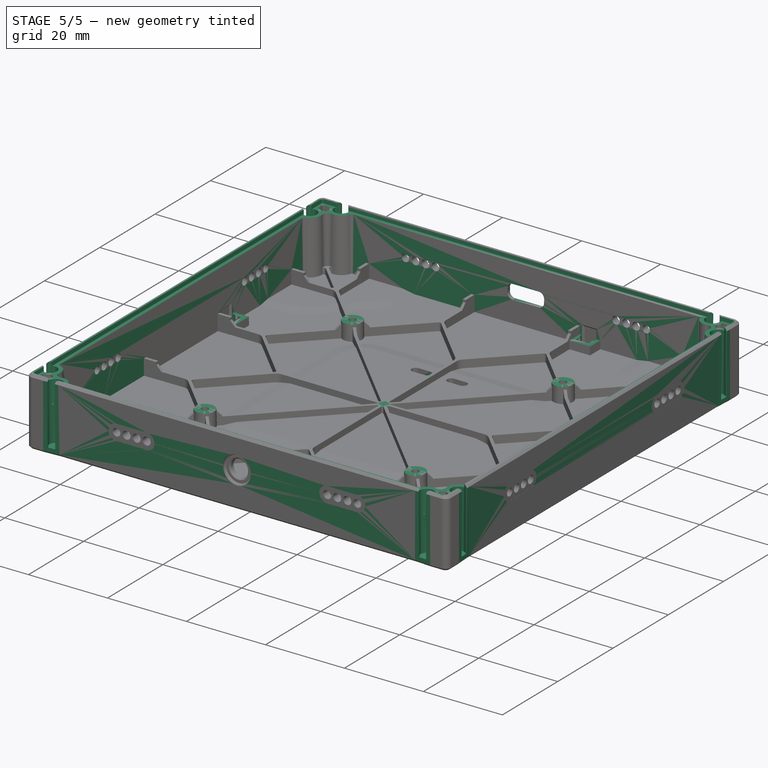
[diagram: stage 5 of 5 — iso view after this stage's code; geometry added in this stage tinted green]
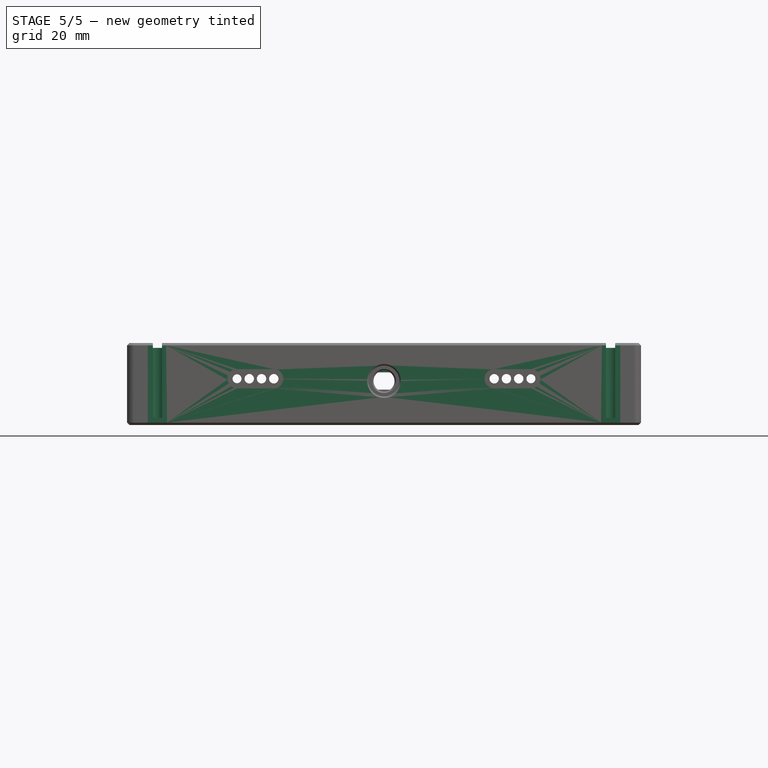
[diagram: stage 5 of 5 — front view after this stage's code; geometry added in this stage tinted green]
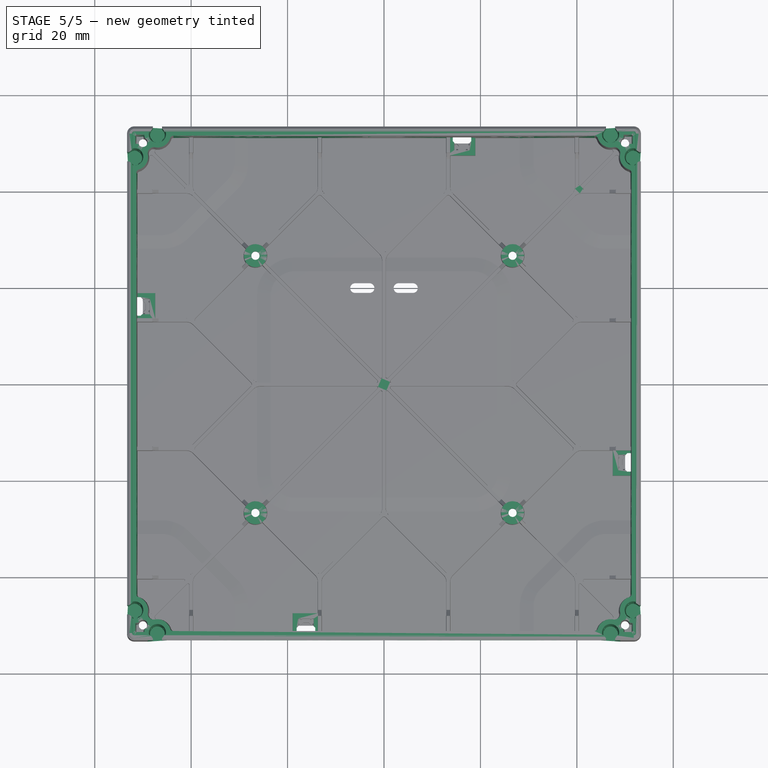
[diagram: stage 5 of 5 — top view after this stage's code; geometry added in this stage tinted green]
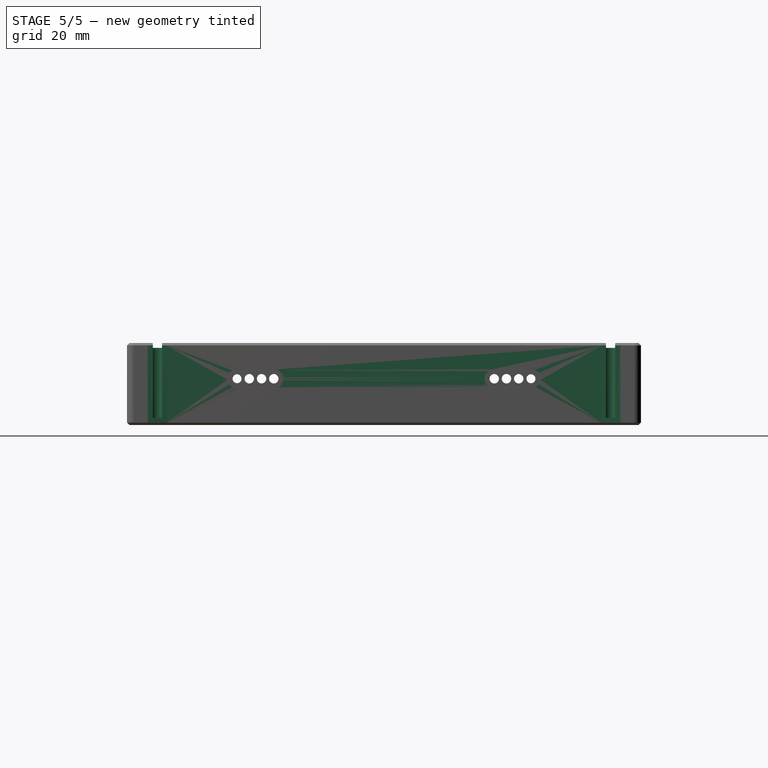
[diagram: stage 5 of 5 — right view after this stage's code; geometry added in this stage tinted green]
FEATURE [Sketcher::SketchObject] Sketch346
  ArcFitTolerance = 0
  AttachmentOffset = pos=(0,0,51.2) rot=(0,0,1;0rad)
  FullyConstrained = true
  MakeInternals = false
  MapMode = 5
  Placement = pos=(0,51.2,-1.1e-14) rot=(0,0.707107,0.707107;3.14159rad)
  sketch-geometry (20):
    g0: LineSegment [constr] StartX=-26.67 StartY=0 StartZ=0 EndX=-30.48 EndY=-5.9 EndZ=0
    g1: LineSegment [constr] StartX=-26.67 StartY=0 StartZ=0 EndX=-22.86 EndY=-5.9 EndZ=0
    g2: LineSegment [constr] StartX=-30.48 StartY=-5.9 StartZ=0 EndX=-27.94 EndY=-5.9 EndZ=0
    g3: LineSegment [constr] StartX=-27.94 StartY=-5.9 StartZ=0 EndX=-25.4 EndY=-5.9 EndZ=0
    g4: LineSegment [constr] StartX=-25.4 StartY=-5.9 StartZ=0 EndX=-22.86 EndY=-5.9 EndZ=0
    g5: LineSegment [constr] StartX=26.67 StartY=0 StartZ=0 EndX=22.86 EndY=-5.9 EndZ=0
    g6: LineSegment [constr] StartX=26.67 StartY=0 StartZ=0 EndX=30.48 EndY=-5.9 EndZ=0
    g7: LineSegment [constr] StartX=22.86 StartY=-5.9 StartZ=0 EndX=25.4 EndY=-5.9 EndZ=0
    g8: LineSegment [constr] StartX=25.4 StartY=-5.9 StartZ=0 EndX=27.94 EndY=-5.9 EndZ=0
    g9: LineSegment [constr] StartX=27.94 StartY=-5.9 StartZ=0 EndX=30.48 EndY=-5.9 EndZ=0
    g10: LineSegment [constr] StartX=26.67 StartY=0 StartZ=0 EndX=0 EndY=0 EndZ=0
    g11: LineSegment [constr] StartX=0 StartY=0 StartZ=0 EndX=-26.67 EndY=0 EndZ=0
    g12: Circle CenterX=-30.48 CenterY=-5.9 CenterZ=0 NormalX=0 NormalY=0 NormalZ=1 AngleXU=0 Radius=0.925
    g13: Circle CenterX=-27.94 CenterY=-5.9 CenterZ=0 NormalX=0 NormalY=0 NormalZ=1 AngleXU=0 Radius=0.975
    g14: Circle CenterX=-25.4 CenterY=-5.9 CenterZ=0 NormalX=0 NormalY=0 NormalZ=1 AngleXU=0 Radius=0.975
    g15: Circle CenterX=-22.86 CenterY=-5.9 CenterZ=0 NormalX=0 NormalY=0 NormalZ=1 AngleXU=0 Radius=0.975
    g16: Circle CenterX=22.86 CenterY=-5.9 CenterZ=0 NormalX=0 NormalY=0 NormalZ=1 AngleXU=0 Radius=0.975
    g17: Circle CenterX=25.4 CenterY=-5.9 CenterZ=0 NormalX=0 NormalY=0 NormalZ=1 AngleXU=0 Radius=0.975
    g18: Circle CenterX=27.94 CenterY=-5.9 CenterZ=0 NormalX=0 NormalY=0 NormalZ=1 AngleXU=0 Radius=0.975
    g19: Circle CenterX=30.48 CenterY=-5.9 CenterZ=0 NormalX=0 NormalY=0 NormalZ=1 AngleXU=0 Radius=0.925
  constraints (50):
    c: PointOnObject(g0,g-1)
    c: Coincident(g1,g0)
    c: Horizontal(g3)
    c: Horizontal(g4)
    c: Horizontal(g2)
    c: Equal(g2,g3)
    c: Equal(g3,g4)
    c: DistanceX(g2,g2) = 2.54
    c: Equal(g0,g1)
    c: Coincident(g6,g5)
    c: Horizontal(g8)
    c: Horizontal(g9)
    c: Horizontal(g7)
    c: Equal(g7,g8)
    c: Equal(g8,g9)
    c: Equal(g2,g7) = 2.54
    c: PointOnObject(g5,g-1)
    c: Coincident(g10,g5)
    c: Coincident(g10,g-1)
    c: Coincident(g11,g-1)
    c: Coincident(g11,g0)
    c: Equal(g10,g11)
    c: DistanceX(g11,g11) = 26.67
    c: Equal(g1,g5)
    c: Coincident(g2,g3)
    c: Coincident(g3,g4)
    c: Coincident(g4,g1)
    c: DistanceY(g5,g5) = 5.9
    c: Coincident(g7,g5)
    c: Coincident(g8,g7)
    c: Coincident(g8,g9)
    c: Coincident(g9,g6)
    c: Equal(g5,g6)
    c: Coincident(g12,g0)
    c: Coincident(g13,g2)
    c: Coincident(g14,g3)
    c: Coincident(g15,g1)
    c: Diameter(g12) = 1.85
    c: Coincident(g16,g5)
    c: Coincident(g17,g7)
    c: Coincident(g18,g8)
    c: Coincident(g19,g6)
    c: Equal(g18,g17)
    c: Equal(g17,g16)
    c: Equal(g16,g15)
    c: Equal(g15,g14)
    c: Equal(g14,g13)
    c: Coincident(g12,g2)
    c: Equal(g19,g12)
    c: Diameter(g13) = 1.95
FEATURE [Sketcher::SketchObject] Sketch364
  ArcFitTolerance = 0
  AttachmentOffset = pos=(0,0,1.5) rot=(0,0,1;0rad)
  FullyConstrained = true
  MakeInternals = false
  MapMode = 5
  Placement = pos=(0,0,1.5) rot=(0,0,1;0rad)
  sketch-geometry (5):
    g0: LineSegment StartX=-60 StartY=60 StartZ=0 EndX=-60 EndY=-60 EndZ=0
    g1: LineSegment StartX=-60 StartY=-60 StartZ=0 EndX=60 EndY=-60 EndZ=0
    g2: LineSegment StartX=60 StartY=-60 StartZ=0 EndX=60 EndY=60 EndZ=0
    g3: LineSegment StartX=60 StartY=60 StartZ=0 EndX=-60 EndY=60 EndZ=0
    g4: Circle [constr] CenterX=0 CenterY=0 CenterZ=0 NormalX=0 NormalY=0 NormalZ=1 AngleXU=0 Radius=84.8528
  constraints (14):
    c: Coincident(g0,g1)
    c: Coincident(g1,g2)
    c: Coincident(g2,g3)
    c: Coincident(g3,g0)
    c: Equal(g0,g1)
    c: Equal(g0,g2)
    c: Equal(g0,g3)
    c: PointOnObject(g0,g4)
    c: PointOnObject(g1,g4)
    c: PointOnObject(g2,g4)
    c: PointOnObject(g3,g4)
    c: Coincident(g4,g-1)
    c: Horizontal(g3)
    c: DistanceX(g3,g3) = 120
FEATURE [PartDesign::Pad] Pad330
  AllowMultiFace = false
  Direction = (0,0,1)
  Length = 2
  Length2 = 100
  Placement = pos=(0,0,1.5) rot=(0,0,1;0rad)
  Profile = -> Sketch364
  Refine = true
  Suppressed = false
  Type = 0
FEATURE [Sketcher::SketchObject] Sketch450
  ArcFitTolerance = 0
  AttachmentOffset = pos=(0,0,0.5) rot=(0,0,1;0rad)
  FullyConstrained = true
  MakeInternals = false
  MapMode = 5
  Placement = pos=(0,0,0.5) rot=(0,0,1;0rad)
  sketch-geometry (13):
    g0: ArcOfCircle CenterX=-51.8 CenterY=51.8 CenterZ=0 NormalX=0 NormalY=0 NormalZ=1 AngleXU=0 Radius=0.45 StartAngle=1.5708 EndAngle=3.14159
    g1: LineSegment StartX=-51.8 StartY=52.25 StartZ=0 EndX=51.8 EndY=52.25 EndZ=0
    g2: ArcOfCircle CenterX=51.8 CenterY=51.8 CenterZ=0 NormalX=0 NormalY=0 NormalZ=1 AngleXU=0 Radius=0.45 StartAngle=-9e-16 EndAngle=1.5708
    g3: LineSegment StartX=52.25 StartY=51.8 StartZ=0 EndX=52.25 EndY=-51.8 EndZ=0
    g4: ArcOfCircle CenterX=51.8 CenterY=-51.8 CenterZ=0 NormalX=0 NormalY=0 NormalZ=1 AngleXU=0 Radius=0.45 StartAngle=4.71239 EndAngle=6.28319
    g5: LineSegment StartX=51.8 StartY=-52.25 StartZ=0 EndX=-51.8 EndY=-52.25 EndZ=0
    g6: ArcOfCircle CenterX=-51.8 CenterY=-51.8 CenterZ=0 NormalX=0 NormalY=0 NormalZ=1 AngleXU=0 Radius=0.45 StartAngle=3.14159 EndAngle=4.71239
    g7: LineSegment StartX=-52.25 StartY=-51.8 StartZ=0 EndX=-52.25 EndY=51.8 EndZ=0
    g8: GeomPoint [constr] X=-52.25 Y=52.25 Z=0
    g9: GeomPoint [constr] X=52.25 Y=-52.25 Z=0
    g10: LineSegment [constr] StartX=-51.8 StartY=51.8 StartZ=0 EndX=0 EndY=0 EndZ=0
    g11: LineSegment [constr] StartX=0 StartY=0 StartZ=0 EndX=51.8 EndY=51.8 EndZ=0
    g12: LineSegment [constr] StartX=-51.8 StartY=-51.8 StartZ=0 EndX=0 EndY=0 EndZ=0
  constraints (30):
    c: Tangent(g0,g1) = 1.5708
    c: Tangent(g1,g2) = 1.5708
    c: Tangent(g2,g3) = 1.5708
    c: Tangent(g3,g4) = 1.5708
    c: Tangent(g4,g5) = 1.5708
    c: Tangent(g5,g6) = 1.5708
    c: Tangent(g6,g7) = 1.5708
    c: Tangent(g7,g0) = 1.5708
    c: Horizontal(g1)
    c: Horizontal(g5)
    c: Vertical(g3)
    c: Vertical(g7)
    c: Equal(g0,g2)
    c: Equal(g2,g4)
    c: Equal(g4,g6)
    c: PointOnObject(g8,g1)
    c: PointOnObject(g8,g7)
    c: PointOnObject(g9,g3)
    c: PointOnObject(g9,g5)
    c: DistanceY(g5,g0) = 104.5
    c: Coincident(g10,g0)
    c: Coincident(g10,g-1)
    c: Coincident(g10,g11)
    c: Coincident(g11,g2)
    c: Coincident(g12,g6)
    c: Coincident(g12,g10)
    c: Equal(g12,g10)
    c: Equal(g10,g11)
    c: Equal(g7,g1)
    c: DistanceX(g0,g10) = 51.8
FEATURE [PartDesign::Pad] Pad380
  Direction = (0,0,1)
  Length = 2
  Length2 = 10
  Placement = pos=(0,0,0.5) rot=(0,0,1;0rad)
  Profile = -> Sketch450
  ReferenceAxis = -> Sketch450 [N_Axis]
  Suppressed = false
  TaperAngle = 1
  Type = 0
FEATURE [Sketcher::SketchObject] Sketch465
  ArcFitTolerance = 0
  AttachmentOffset = pos=(0,0,-1.5) rot=(0,0,1;0rad)
  FullyConstrained = true
  MakeInternals = false
  MapMode = 5
  Placement = pos=(0,0,1.5) rot=(0,1,0;3.14159rad)
  sketch-geometry (27):
    g0: LineSegment [constr] StartX=47 StartY=0 StartZ=0 EndX=47 EndY=-51.7 EndZ=0
    g1: Circle [constr] CenterX=47 CenterY=-51.7 CenterZ=0 NormalX=0 NormalY=0 NormalZ=1 AngleXU=0 Radius=1.5
    g2: LineSegment StartX=47 StartY=-52.22 StartZ=0 EndX=45.5162 EndY=-52.22 EndZ=0
    g3: LineSegment StartX=48.4838 StartY=-52.22 StartZ=0 EndX=47 EndY=-52.22 EndZ=0
    g4: LineSegment [constr] StartX=47 StartY=-52.22 StartZ=0 EndX=47 EndY=-51.7 EndZ=0
    g5: ArcOfCircle CenterX=46.0208 CenterY=-50.5637 CenterZ=0 NormalX=0 NormalY=0 NormalZ=1 AngleXU=0 Radius=0.3 StartAngle=2.28204 EndAngle=4.09159
    g6: ArcOfCircle CenterX=47.9792 CenterY=-50.5637 CenterZ=0 NormalX=0 NormalY=0 NormalZ=1 AngleXU=0 Radius=0.3 StartAngle=5.33319 EndAngle=7.14274
    g7: ArcOfCircle CenterX=48.4838 CenterY=-51.92 CenterZ=0 NormalX=0 NormalY=0 NormalZ=1 AngleXU=0 Radius=0.3 StartAngle=4.71239 EndAngle=6.13599
    g8: ArcOfCircle CenterX=45.5162 CenterY=-51.92 CenterZ=0 NormalX=0 NormalY=0 NormalZ=1 AngleXU=0 Radius=0.3 StartAngle=3.28879 EndAngle=4.71239
    g9: ArcOfCircle CenterX=45.6328 CenterY=-51.083 CenterZ=0 NormalX=0 NormalY=0 NormalZ=1 AngleXU=0 Radius=0.3 StartAngle=0.949994 EndAngle=2.71765
    g10: ArcOfCircle CenterX=47 CenterY=-51.7 CenterZ=0 NormalX=0 NormalY=0 NormalZ=1 AngleXU=0 Radius=1.8 StartAngle=2.71765 EndAngle=3.28879
    g11: ArcOfCircle CenterX=48.3672 CenterY=-51.083 CenterZ=0 NormalX=0 NormalY=0 NormalZ=1 AngleXU=0 Radius=0.3 StartAngle=0.423939 EndAngle=2.1916
    g12: ArcOfCircle CenterX=47 CenterY=-51.7 CenterZ=0 NormalX=0 NormalY=0 NormalZ=1 AngleXU=0 Radius=1.8 StartAngle=6.13599 EndAngle=6.70712
    g13: LineSegment StartX=45.8073 StartY=-50.8389 StartZ=0 EndX=45.9363 EndY=-50.9312 EndZ=0
    g14: LineSegment StartX=45.8463 StartY=-50.8077 StartZ=0 EndX=45.9753 EndY=-50.9 EndZ=0
    g15: LineSegment StartX=45.9753 StartY=-50.9 StartZ=0 EndX=45.9363 EndY=-50.9312 EndZ=0
    g16: LineSegment StartX=48.1537 StartY=-50.8077 StartZ=0 EndX=48.0247 EndY=-50.9 EndZ=0
    g17: LineSegment StartX=48.1927 StartY=-50.8389 StartZ=0 EndX=48.0637 EndY=-50.9312 EndZ=0
    g18: LineSegment StartX=48.0637 StartY=-50.9312 StartZ=0 EndX=48.0247 EndY=-50.9 EndZ=0
    g19: LineSegment [constr] StartX=45.9363 StartY=-50.9312 StartZ=0 EndX=47 EndY=-52.22 EndZ=0
    g20: LineSegment [constr] StartX=47 StartY=-52.22 StartZ=0 EndX=45.9753 EndY=-50.9 EndZ=0
    g21: LineSegment [constr] StartX=48.0247 StartY=-50.9 StartZ=0 EndX=47 EndY=-52.22 EndZ=0
    g22: LineSegment [constr] StartX=47 StartY=-52.22 StartZ=0 EndX=48.0637 EndY=-50.9312 EndZ=0
    g23: LineSegment [constr] StartX=45.825 StartY=-50.3364 StartZ=0 EndX=47 EndY=-52.22 EndZ=0
    g24: LineSegment [constr] StartX=47 StartY=-52.22 StartZ=0 EndX=48.175 EndY=-50.3364 EndZ=0
    g25: ArcOfCircle CenterX=47 CenterY=-51.7 CenterZ=0 NormalX=0 NormalY=0 NormalZ=1 AngleXU=0 Radius=1.8 StartAngle=0.859551 EndAngle=2.28204
    g26: LineSegment [constr] StartX=45.8073 StartY=-50.8389 StartZ=0 EndX=45.8463 EndY=-50.8077 EndZ=0
  constraints (67):
    c: PointOnObject(g0,g-1)
    c: Vertical(g0)
    c: DistanceY(g0,g0) = 51.7
    c: Diameter(g1) = 3
    c: Horizontal(g2)
    c: Horizontal(g3)
    c: Coincident(g23,g5) = 1.5708
    c: Coincident(g24,g6) = 1.5708
    c: Tangent(g3,g7) = 1.5708
    c: Tangent(g2,g8) = 1.5708
    c: Equal(g8,g7)
    c: Equal(g6,g5)
    c: Equal(g9,g5)
    c: Coincident(g12,g10)
    c: Equal(g11,g6)
    c: Radius(g6) = 0.3
    c: Tangent(g9,g13) = 1.5708
    c: Tangent(g5,g14) = -1.5708
    c: Coincident(g14,g15)
    c: Coincident(g15,g13)
    c: Tangent(g6,g16) = 1.5708
    c: Tangent(g11,g17) = -1.5708
    c: Coincident(g17,g18)
    c: Coincident(g18,g16)
    c: Distance(g14,g10) = 1.3
    c: Vertical(g4)
    c: Coincident(g3,g4)
    c: DistanceY(g4,g4) = 0.52
    c: Coincident(g2,g3)
    c: Coincident(g13,g19)
    c: Coincident(g19,g2)
    c: Coincident(g19,g20)
    c: Coincident(g20,g14)
    c: Coincident(g16,g21)
    c: Coincident(g21,g2)
    c: Coincident(g21,g22)
    c: Coincident(g22,g17)
    c: Equal(g22,g21)
    c: Equal(g21,g20)
    c: Equal(g20,g19)
    c: DistanceX(g23,g24) = 2.35
    c: Coincident(g10,g0)
    c: Coincident(g4,g10)
    c: Coincident(g1,g10)
    c: DistanceX(g-1,g10) = 47
    c: Coincident(g23,g2)
    c: Coincident(g23,g24)
    c: Equal(g24,g23)
    c: Equal(g8,g9)
    c: Distance(g15) = 0.05
    c: Tangent(g8,g10) = -1.5708
    c: Tangent(g10,g9) = -1.5708
    c: Tangent(g11,g12) = -1.5708
    c: Tangent(g12,g7) = -1.5708
    c: Coincident(g25,g10)
    c: Tangent(g25,g5) = -1.5708
    c: Tangent(g25,g6) = -1.5708
    c: Diameter(g10) = 3.6
    c: Equal(g25,g10)
    c: Equal(g18,g15)
    c: Equal(g17,g16)
    c: Equal(g13,g14)
    c: Equal(g10,g12)
    c: Equal(g16,g14)
    c: Coincident(g26,g9)
    c: Coincident(g26,g5)
    c: Parallel(g26,g15)
FEATURE [PartDesign::Pad] Pad001
  AllowMultiFace = false
  BaseFeature = -> Pad330
  Direction = (0,-1e-16,-1)
  Length = 15.5
  Length2 = 100
  Placement = pos=(0,0,1.5) rot=(0,0,1;0rad)
  Profile = -> Sketch001
  ReferenceAxis = -> Sketch001 [N_Axis]
  Refine = true
  Suppressed = false
  Type = 0
FEATURE [Sketcher::SketchObject] Sketch466
  ArcFitTolerance = 0
  AttachmentOffset = pos=(-47,0,51.7) rot=(0,0,1;0rad)
  FullyConstrained = true
  MakeInternals = false
  MapMode = 5
  Placement = pos=(-47,-51.7,1.1e-14) rot=(1,0,0;1.5708rad)
  sketch-geometry (4):
    g0: LineSegment StartX=0 StartY=1.5 StartZ=0 EndX=-1.8 EndY=1.5 EndZ=0
    g1: LineSegment StartX=-1.8 StartY=1.5 StartZ=0 EndX=-1.62979 EndY=-5 EndZ=0
    g2: LineSegment StartX=-1.62979 StartY=-5 StartZ=0 EndX=0 EndY=-7.82288 EndZ=0
    g3: LineSegment StartX=0 StartY=-7.82288 StartZ=0 EndX=0 EndY=1.5 EndZ=0
  constraints (12):
    c: PointOnObject(g0,g-2)
    c: Horizontal(g0)
    c: Coincident(g0,g1)
    c: Coincident(g1,g2)
    c: Coincident(g2,g3)
    c: Coincident(g3,g0)
    c: Vertical(g3)
    c: DistanceX(g0,g0) = 1.8
    c: DistanceY(g-1,g0) = 1.5
    c: Angle(g3,g2) = 0.523599
    c: DistanceY(g1,g-1) = 5
    c: Angle(g-2,g1) = 0.0261799
FEATURE [PartDesign::Revolution] Revolution
  Angle = 180
  Angle2 = 60
  Axis = (0,2e-16,1)
  Base = (-47,-51.7,1.1e-14)
  BaseFeature = -> Pad001
  Placement = pos=(0,0,1.5) rot=(0,0,1;0rad)
  Profile = -> Sketch466
  ReferenceAxis = -> Sketch466 [V_Axis]
  Reversed = true
  Suppressed = false
  Type = 0
FEATURE [PartDesign::Body] Body078  label="feature_map_hole"
  AllowCompound = false
  Group = -> [Sketch352,Sketch353,Pad393,Pad394,Chamfer050]
  Origin = -> Origin092
  Tip = -> Chamfer050
FEATURE [PartDesign::Pad] Pad395
  BaseFeature = -> Revolution
  Direction = (1e-16,0,-1)
  Length = 15.5
  Length2 = 10
  Placement = pos=(0,0,1.5) rot=(0,0,1;0rad)
  Profile = -> Sketch465
  ReferenceAxis = -> Sketch465 [N_Axis]
  Refine = true
  Suppressed = false
  TaperAngle = -1
  Type = 0
FEATURE [PartDesign::Mirrored] Mirrored
  MirrorPlane = -> Sketch001 [V_Axis]
  Placement = pos=(0,0,1.5) rot=(0,0,1;0rad)
  Suppressed = false
  TransformMode = 0
FEATURE [PartDesign::PolarPattern] PolarPattern
  Angle = 360
  Axis = -> Sketch001 [N_Axis]
  Mode = 0
  Occurrences = 4
  Offset = 120
  Placement = pos=(0,0,1.5) rot=(0,0,1;0rad)
  Suppressed = false
  TransformMode = 0
FEATURE [PartDesign::MultiTransform] MultiTransform
  BaseFeature = -> Pad395
  Originals = -> [Pad001,Revolution,Pad395]
  Placement = pos=(0,0,1.5) rot=(0,0,1;0rad)
  Refine = true
  Suppressed = false
  TransformMode = 0
  Transformations = -> [Mirrored,PolarPattern]
FEATURE [PartDesign::Boolean] Boolean046  label="StickerAndFoot"
  BaseFeature = -> Boolean044
  Group = -> [Body070]
  Suppressed = false
  Type = 1
  UsePlacement = false
FEATURE [PartDesign::Boolean] Boolean049
  BaseFeature = -> Boolean046
  Group = -> [Body076]
  Suppressed = false
  Type = 1
  UsePlacement = false
FEATURE [PartDesign::Boolean] Boolean051
  BaseFeature = -> Boolean049
  Group = -> [Body]
  Suppressed = false
  Type = 1
  UsePlacement = false
FEATURE [PartDesign::Boolean] Boolean052
  BaseFeature = -> Boolean051
  Group = -> [Body096]
  Suppressed = false
  Type = 1
  UsePlacement = false
FEATURE [PartDesign::Boolean] Boolean
  BaseFeature = -> Boolean052
  Group = -> [Body095]
  Suppressed = false
  Type = 1
  UsePlacement = false
FEATURE [PartDesign::Boolean] Boolean055
  BaseFeature = -> Boolean
  Group = -> [Body106]
  Refine = true
  Suppressed = false
  Type = 1
  UsePlacement = true
FEATURE [PartDesign::Body] Body079  label="feature_magnet_cutout_injection"
  AllowCompound = false
  Group = -> [Sketch366,Pad334,Sketch375,Pad343,Sketch480,Pad388,Sketch481,Pad389,Sketch482,Pad396,Sketch483,Pocket031,Sketch499,Pocket036,PolarPattern096,Chamfer052]
  Origin = -> Origin093
  Tip = -> Chamfer052
FEATURE [PartDesign::Boolean] Boolean056
  BaseFeature = -> Boolean055
  Group = -> [Body079]
  Refine = true
  Suppressed = false
  Type = 1
  UsePlacement = true
FEATURE [PartDesign::CoordinateSystem] LCS_Origin
  AttacherType = Attacher::AttachEngine3D
FEATURE [PartDesign::Plane] Plane_2  label="Plane_RubberFoot"
  AttachmentSupport = -> [Boolean056]
  Length = 100
  MapMode = 5
  Placement = pos=(0,0,-15) rot=(1,0,0;3.14159rad)
  ResizeMode = 1
  Width = 100
FEATURE [PartDesign::Line] CircleAxis_1  label="CircleAxis_RubberFoot_1"
  AttacherType = Attacher::AttachEngineLine
  AttachmentSupport = -> [Boolean056]
  Length = 17.9015
  MapMode = 19
  Placement = pos=(-46,36,-15) rot=(0,0,1;3.14159rad)
  ResizeMode = 1
FEATURE [PartDesign::Line] CircleAxis_2  label="CircleAxis_RubberFoot_2"
  AttacherType = Attacher::AttachEngineLine
  AttachmentSupport = -> [Boolean056]
  Length = 17.9015
  MapMode = 19
  Placement = pos=(-36,46,-15) rot=(0,0,-1;1.5708rad)
  ResizeMode = 1
FEATURE [PartDesign::Plane] Plane_Bottom
  AttachmentSupport = -> [Boolean056]
  Length = 100
  MapMode = 5
  Placement = pos=(0,0,-15.5) rot=(1,0,0;3.14159rad)
  ResizeMode = 1
  Width = 100
FEATURE [PartDesign::Line] CircleAxis_3  label="CircleAxis_InsertShort_3"
  AttacherType = Attacher::AttachEngineLine
  AttachmentSupport = -> [Boolean056]
  Length = 7.04534
  MapMode = 19
  Placement = pos=(-26.67,26.67,-15.5) rot=(0,0,1;0rad)
  ResizeMode = 1
FEATURE [PartDesign::Line] CircleAxis_4  label="CircleAxis_InsertLong_4"
  AttacherType = Attacher::AttachEngineLine
  AttachmentSupport = -> [Boolean056]
  Length = 7.04534
  MapMode = 19
  Placement = pos=(-50,50,-15.5) rot=(0,0,1;0rad)
  ResizeMode = 1
FEATURE [PartDesign::Plane] Plane_1  label="Plane_MagnetD3_1"
  AttachmentSupport = -> [Boolean056]
  Length = 100
  MapMode = 5
  Placement = pos=(0,9.5e-15,-14) rot=(0,0,1;0rad)
  ResizeMode = 1
  Width = 100
FEATURE [PartDesign::Line] CircleAxis_5  label="CircleAxis_MagnetD3_5"
  AttacherType = Attacher::AttachEngineLine
  AttachmentSupport = -> [Boolean056]
  Length = 4.06183
  MapMode = 19
  Placement = pos=(-47,51.7,-14) rot=(0,0,1;4.00114rad)
  ResizeMode = 1
FEATURE [PartDesign::Line] CircleAxis_6  label="CircleAxis_MagnetD3_6"
  AttacherType = Attacher::AttachEngineLine
  AttachmentSupport = -> [Boolean056]
  Length = 4.06183
  MapMode = 19
  Placement = pos=(-51.7,47,-14) rot=(-0.93743,-0.348174,0;3.14159rad)
  ResizeMode = 1
FEATURE [PartDesign::Plane] Plane_3  label="Plane_Magnet_SQ3_3"
  AttachmentSupport = -> [Boolean056]
  Length = 100
  MapMode = 5
  Placement = pos=(0,-1.6e-15,-13.25) rot=(0,0,1;0rad)
  ResizeMode = 1
  Width = 100
FEATURE [PartDesign::Plane] Plane_5  label="Plane_Magnet_SQ3_5"
  AttachmentSupport = -> [XZ_Plane002,Boolean056]
  Length = 100
  MapMode = 53
  Placement = pos=(0,48.82,5.0515e-12) rot=(1,0,0;1.5708rad)
  ResizeMode = 1
  Width = 100
FEATURE [PartDesign::Line] Axis_2  label="Axis_Magnet_SQ3_2"
  AttacherType = Attacher::AttachEngineLine
  AttachmentSupport = -> [Plane_3,Plane_5]
  Length = 200
  MapMode = 30
  Placement = pos=(0,48.82,-13.25) rot=(0.57735,0.57735,0.57735;2.0944rad)
  ResizeMode = 1
FEATURE [PartDesign::Plane] Plane_4  label="Plane_SideWall_4"
  AttachmentSupport = -> [Boolean056]
  Length = 100
  MapMode = 5
  Placement = pos=(0,51.3494,-0.896308) rot=(1,0,0;1.55334rad)
  ResizeMode = 1
  Width = 100
FEATURE [PartDesign::Line] Axis_1  label="Axis_PogoPin_1"
  AttacherType = Attacher::AttachEngineLine
  AttachmentSupport = -> [Boolean056]
  Length = 200
  MapMode = 19
  Placement = pos=(30.4803,51.2621,-5.89972) rot=(-0.000109,0.71325,0.700909;3.14138rad)
  ResizeMode = 1
FEATURE [PartDesign::Line] Axis_3  label="Axis_PogoPin_3"
  AttacherType = Attacher::AttachEngineLine
  AttachmentSupport = -> [Boolean056]
  Length = 200
  MapMode = 42
  Placement = pos=(-30.48,-0.16427,-3.26282) rot=(0,0.724666,0.6891;3.14159rad)
  ResizeMode = 1
FEATURE [PartDesign::Plane] Plane_6  label="Plane_PCB_6"
  AttachmentSupport = -> [Boolean056]
  Length = 100
  MapMode = 5
  Placement = pos=(1.2e-15,0,-9.6) rot=(0,0,1;0rad)
  ResizeMode = 1
  Width = 100
FEATURE [PartDesign::Line] Axis_4  label="Axis_PCB_4"
  AttacherType = Attacher::AttachEngineLine
  AttachmentSupport = -> [Boolean056]
  Length = 200
  MapMode = 42
  Placement = pos=(-26.67,26.67,0) rot=(0,0,1;0rad)
  ResizeMode = 1
FEATURE [PartDesign::Line] Axis_5  label="Axis_PCB_5"
  AttacherType = Attacher::AttachEngineLine
  AttachmentSupport = -> [Boolean056]
  Length = 200
  MapMode = 42
  Placement = pos=(26.67,26.67,0) rot=(0,0,1;0rad)
  ResizeMode = 1
FEATURE [PartDesign::Line] Axis_6  label="Axis_PCB_6"
  AttacherType = Attacher::AttachEngineLine
  AttachmentSupport = -> [Boolean056]
  Length = 200
  MapMode = 42
  Placement = pos=(-26.67,-26.67,0) rot=(0,0,1;0rad)
  ResizeMode = 1
FEATURE [PartDesign::Line] Axis_7  label="Axis_PCB_7"
  AttacherType = Attacher::AttachEngineLine
  AttachmentSupport = -> [Boolean056]
  Length = 200
  MapMode = 42
  Placement = pos=(26.67,-26.67,0) rot=(0,0,1;0rad)
  ResizeMode = 1
FEATURE [PartDesign::CoordinateSystem] LCS_1
  AttacherType = Attacher::AttachEngine3D
  AttachmentSupport = -> [Boolean056]
  MapMode = 45
  Placement = pos=(-1.465e-13,-51.7271,-6.42359) rot=(-0.575626,-0.575626,-0.580783;2.08925rad)
FEATURE [PartDesign::CoordinateSystem] LCS_2
  AttacherType = Attacher::AttachEngine3D
  AttachmentSupport = -> [Boolean056]
  MapMode = 45
  Placement = pos=(30.48,52.2217,-5.90024) rot=(-1,0,0;1.6211rad)
FEATURE [Sketcher::SketchObject] Sketch500
  ArcFitTolerance = 1e-06
  AttachmentSupport = -> [XZ_Plane002]
  FullyConstrained = true
  MakeInternals = false
  MapMode = 5
  Placement = pos=(0,0,0) rot=(1,0,0;1.5708rad)
FEATURE [PartDesign::Body] Body002  label="PLASTIC-CANVAS"
  AllowCompound = false
  Group = -> [Sketch008,Pad002,Boolean054,Boolean039,Boolean043,Boolean044,Boolean046,Boolean049,Boolean051,Boolean052,Boolean,Boolean055,Boolean056,LCS_Origin,Plane_2,CircleAxis_1,CircleAxis_2,Plane_Bottom,CircleAxis_3,CircleAxis_4,Plane_1,CircleAxis_5,CircleAxis_6,Plane_3,Plane_5,Axis_2,Plane_4,Axis_1,Axis_3,Plane_6,Axis_4,Axis_5,Axis_6,Axis_7,LCS_1,LCS_2,Sketch500]
  Origin = -> Origin002
  Tip = -> Boolean056
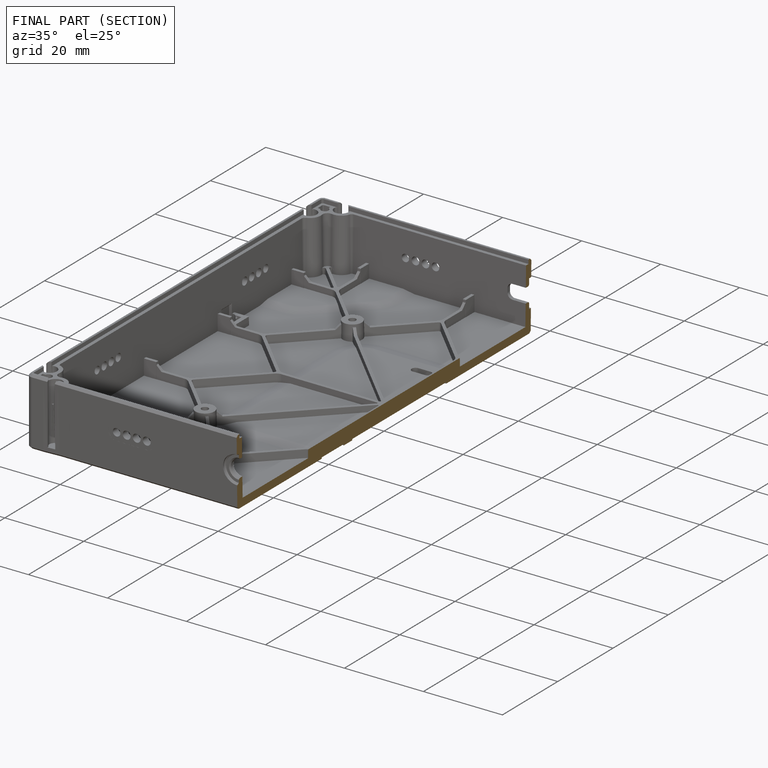
[diagram: finished part — half-section view (interior)]
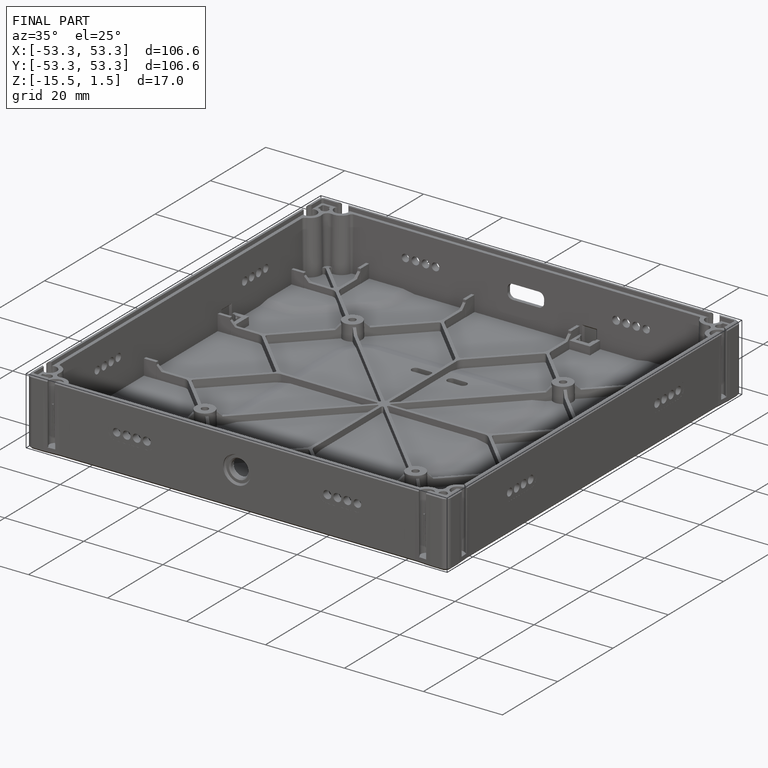
[diagram: finished part — iso view with bounding-box wireframe]
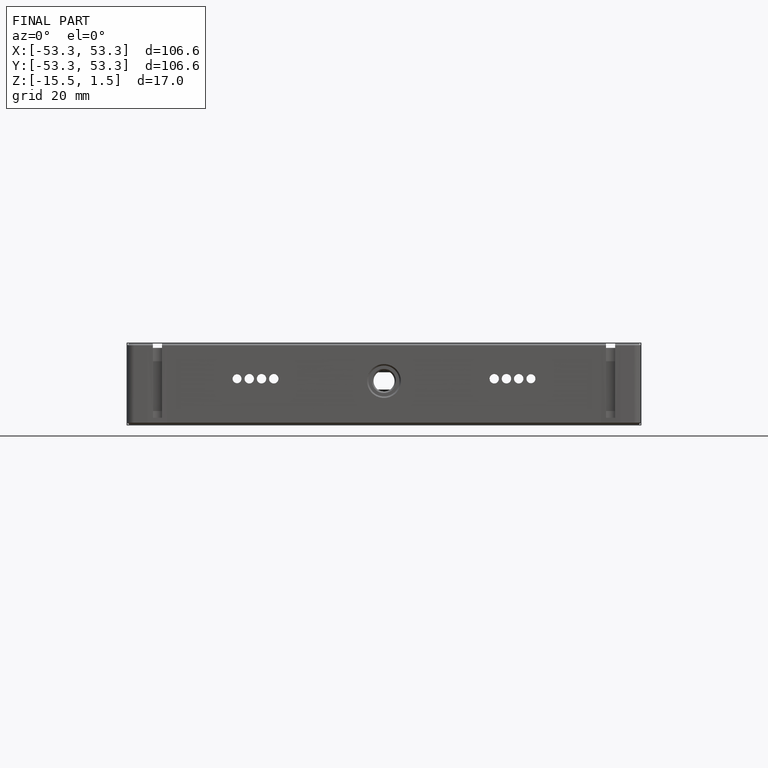
[diagram: finished part — front view with bounding-box wireframe]
